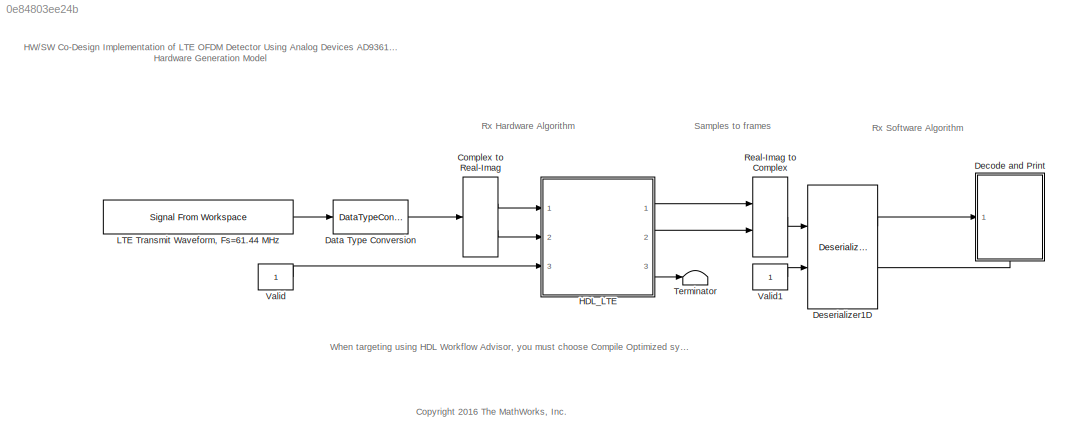
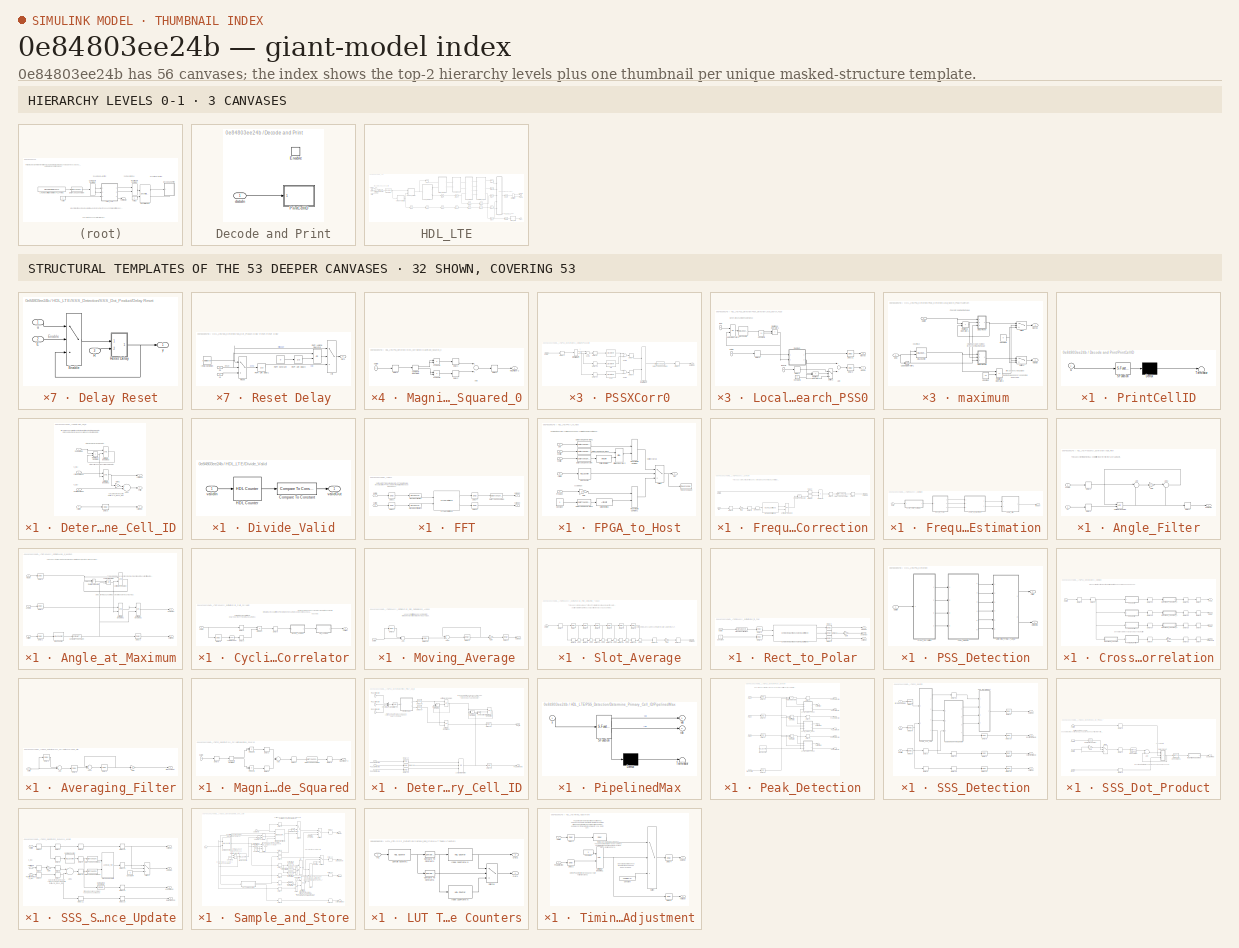
[diagram: thumbnail index - top-2 hierarchy levels (3 canvases) + 32 structural-template representatives of the remaining 53 canvases]
MODEL slx_0e84803ee24b
KIND model
CONFIG AbsTol = auto
CONFIG FixedStep = auto
CONFIG InitFcn = % Load LTE detector initialization parameters\nsimParams = hdlcoder_lteofdm_modDetectref_init;\nsimParams = hdlcoder_lteofdm_modDetecthdl_init(simParams);\n\n% Modify PSS detection threshold gain for modified\n% front-end filter\nsimParams.thresholdGain = 16;\n\n% Load LTE TX waveforms\nload('zynqRadioLTETransmitData');\n
CONFIG MaxStep = auto
CONFIG MinStep = auto
CONFIG RelTol = 1e-3
CONFIG SampleTimeConstraint = Unconstrained
CONFIG Solver = FixedStepDiscrete
CONFIG SolverMode = SingleTasking
CONFIG SolverName = FixedStepDiscrete
CONFIG StartTime = 0.0
CONFIG StopTime = stoptime
BLOCK [ComplexToRealImag] Complex to Real-Imag
  Ports = [1, 2]
BLOCK [DataTypeConversion] Data Type Conversion
  OutDataTypeStr = fixdt(1,16,14)
  RndMeth = Floor
  SaturateOnIntegerOverflow = off
BLOCK [SubSystem] Decode and Print
  Ports = [1, 0, 1]
  RequestExecContextInheritance = off
  Variant = off
BLOCK [EnablePort] Decode and Print/Enable
  Ports = []
BLOCK [SubSystem] Decode and Print/PrintCellID
  ErrorFcn = Stateflow.Translate.translate
  PermitHierarchicalResolution = ExplicitOnly
  Ports = [1]
  RequestExecContextInheritance = off
  SFBlockType = MATLAB Function
  TreatAsAtomicUnit = on
  Variant = off
BLOCK [Demux] Decode and Print/PrintCellID/ Demux 
  Outputs = 1
  Ports = [1, 1]
BLOCK [S-Function] Decode and Print/PrintCellID/ SFunction 
  EnableBusSupport = on
  FunctionName = sf_sfun
  PortCounts = [1 1]
  Ports = [1, 1]
  SFunctionDeploymentMode = off
  Tag = Stateflow S-Function zynqRadioHWSWLTEDetectorAD9361AD9364SL 2
BLOCK [Terminator] Decode and Print/PrintCellID/ Terminator 
BLOCK [Inport] Decode and Print/PrintCellID/u
  IconDisplay = Port number
BLOCK [Inport] Decode and Print/dataIn
  IconDisplay = Port number
BLOCK [Reference] Deserializer1D  REF=hdlsllib/HDL Operations/Deserializer1D
  Ports = [2, 2]
  SourceBlock = hdlsllib/HDL Operations/Deserializer1D
  SourceType = Deserializer1D
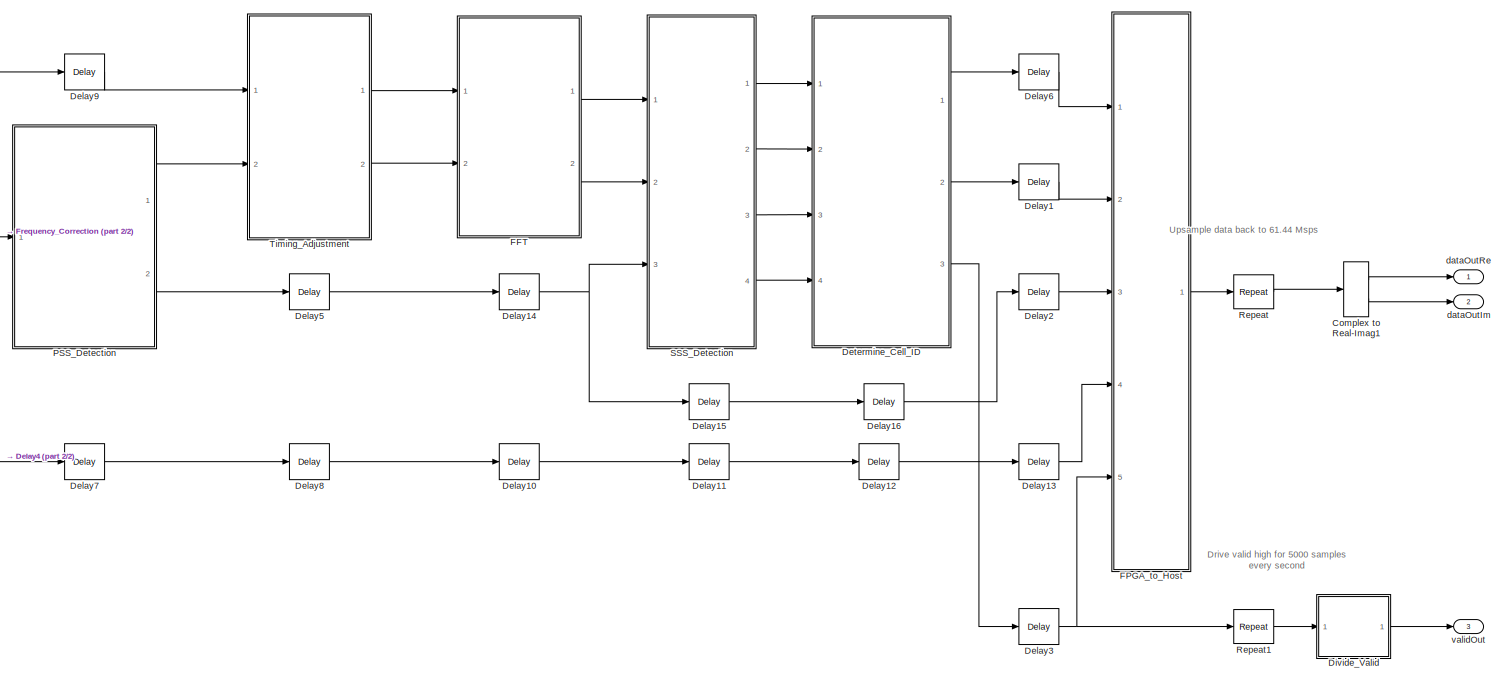
[diagram: HDL_LTE - part 1/2, right side, full height]
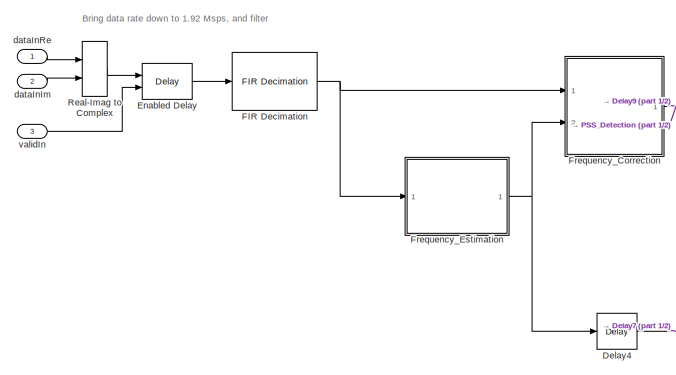
[diagram: HDL_LTE - part 2/2, middle left region]
BLOCK [SubSystem] HDL_LTE
  Ports = [3, 3]
  RequestExecContextInheritance = off
  TreatAsAtomicUnit = on
  Variant = off
BLOCK [ComplexToRealImag] HDL_LTE/Complex to Real-Imag1
  Ports = [1, 2]
BLOCK [Delay] HDL_LTE/Delay1
  DelayLength = 1
  InitialCondition = 0
  InputPortMap = u0
  Ports = [1, 1]
  UseCircularBuffer = on
  UserDataPersistent = on
BLOCK [Delay] HDL_LTE/Delay10
  InitialCondition = 0
  InputPortMap = u0
  Ports = [1, 1]
  UseCircularBuffer = on
  UserDataPersistent = on
BLOCK [Delay] HDL_LTE/Delay11
  DelayLength = 11
  InitialCondition = 0
  InputPortMap = u0
  Ports = [1, 1]
  UseCircularBuffer = on
  UserDataPersistent = on
BLOCK [Delay] HDL_LTE/Delay12
  DelayLength = 1
  InitialCondition = 0
  InputPortMap = u0
  Ports = [1, 1]
  UseCircularBuffer = on
  UserDataPersistent = on
BLOCK [Delay] HDL_LTE/Delay13
  DelayLength = 1
  InitialCondition = 0
  InputPortMap = u0
  Ports = [1, 1]
  UseCircularBuffer = on
  UserDataPersistent = on
BLOCK [Delay] HDL_LTE/Delay14
  InitialCondition = 0
  InputPortMap = u0
  Ports = [1, 1]
  UseCircularBuffer = on
  UserDataPersistent = on
BLOCK [Delay] HDL_LTE/Delay15
  DelayLength = 11
  InitialCondition = 0
  InputPortMap = u0
  Ports = [1, 1]
  UseCircularBuffer = on
  UserDataPersistent = on
BLOCK [Delay] HDL_LTE/Delay16
  DelayLength = 1
  InitialCondition = 0
  InputPortMap = u0
  Ports = [1, 1]
  UseCircularBuffer = on
  UserDataPersistent = on
BLOCK [Delay] HDL_LTE/Delay2
  DelayLength = 1
  InitialCondition = 0
  InputPortMap = u0
  Ports = [1, 1]
  UseCircularBuffer = on
  UserDataPersistent = on
BLOCK [Delay] HDL_LTE/Delay3
  DelayLength = 1
  InitialCondition = 0
  InputPortMap = u0
  Ports = [1, 1]
  UseCircularBuffer = on
  UserDataPersistent = on
BLOCK [Delay] HDL_LTE/Delay4
  DelayLength = 6
  InitialCondition = 0
  InputPortMap = u0
  Ports = [1, 1]
  UseCircularBuffer = on
  UserDataPersistent = on
BLOCK [Delay] HDL_LTE/Delay5
  DelayLength = 1
  InitialCondition = 0
  InputPortMap = u0
  Ports = [1, 1]
  UseCircularBuffer = on
  UserDataPersistent = on
BLOCK [Delay] HDL_LTE/Delay6
  DelayLength = 1
  InitialCondition = 0
  InputPortMap = u0
  Ports = [1, 1]
  UseCircularBuffer = on
  UserDataPersistent = on
BLOCK [Delay] HDL_LTE/Delay7
  DelayLength = 30
  InitialCondition = 0
  InputPortMap = u0
  InputProcessing = Columns as channels (frame based)
  Ports = [1, 1]
  UserDataPersistent = on
BLOCK [Delay] HDL_LTE/Delay8
  DelayLength = 1
  InitialCondition = 0
  InputPortMap = u0
  Ports = [1, 1]
  UseCircularBuffer = on
  UserDataPersistent = on
BLOCK [Delay] HDL_LTE/Delay9
  DelayLength = 30
  InitialCondition = 0
  InputPortMap = u0
  InputProcessing = Columns as channels (frame based)
  Ports = [1, 1]
  UserDataPersistent = on
BLOCK [SubSystem] HDL_LTE/Determine_Cell_ID
  Ports = [4, 3]
  RequestExecContextInheritance = off
  Variant = off
BLOCK [Sum] HDL_LTE/Determine_Cell_ID/Add2
  AccumDataTypeStr = Inherit: Same as first input
  InputSameDT = off
  Ports = [2, 1]
  SaturateOnIntegerOverflow = off
BLOCK [Delay] HDL_LTE/Determine_Cell_ID/Delay3
  DelayLength = 1
  InitialCondition = 0
  InputPortMap = u0
  Ports = [1, 1]
  UseCircularBuffer = on
  UserDataPersistent = on
BLOCK [Gain] HDL_LTE/Determine_Cell_ID/Gain1
  Gain = 3
  OutDataTypeStr = fixdt(0,9,0)
  ParamDataTypeStr = Inherit: Inherit via internal rule
  SaturateOnIntegerOverflow = off
BLOCK [RelationalOperator] HDL_LTE/Determine_Cell_ID/Relational Operator4
  InputSameDT = off
  Operator = >
  OutDataTypeStr = boolean
  Ports = [2, 1]
BLOCK [Inport] HDL_LTE/Determine_Cell_ID/SSSDotProd
  IconDisplay = Port number
BLOCK [Reference] HDL_LTE/Determine_Cell_ID/Unit Delay Enabled1  REF=simulink/Additional Math
& Discrete/Additional
Discrete/Unit Delay
Enabled
  Ports = [2, 1]
  SourceBlock = simulink/Additional Math\n& Discrete/Additional\nDiscrete/Unit Delay\nEnabled
  SourceType = Unit Delay Enabled
BLOCK [Reference] HDL_LTE/Determine_Cell_ID/Unit Delay Enabled3  REF=simulink/Additional Math
& Discrete/Additional
Discrete/Unit Delay
Enabled
  Ports = [2, 1]
  SourceBlock = simulink/Additional Math\n& Discrete/Additional\nDiscrete/Unit Delay\nEnabled
  SourceType = Unit Delay Enabled
BLOCK [Outport] HDL_LTE/Determine_Cell_ID/cellGroup
  IconDisplay = Port number
BLOCK [Outport] HDL_LTE/Determine_Cell_ID/cellID
  IconDisplay = Port number
  Port = 2
BLOCK [Inport] HDL_LTE/Determine_Cell_ID/currentCellGroup
  IconDisplay = Port number
  Port = 2
BLOCK [Inport] HDL_LTE/Determine_Cell_ID/positionInGroup
  IconDisplay = Port number
  Port = 3
BLOCK [Inport] HDL_LTE/Determine_Cell_ID/validIn
  IconDisplay = Port number
  Port = 4
BLOCK [Outport] HDL_LTE/Determine_Cell_ID/validOut
  IconDisplay = Port number
  Port = 3
BLOCK [SubSystem] HDL_LTE/Divide_Valid
  Ports = [1, 1]
  RequestExecContextInheritance = off
  Variant = off
BLOCK [Reference] HDL_LTE/Divide_Valid/Compare To Constant  REF=simulink/Logic and Bit
Operations/Compare
To Constant
  Ports = [1, 1]
  SourceBlock = simulink/Logic and Bit\nOperations/Compare\nTo Constant
  SourceType = Compare To Constant
BLOCK [Reference] HDL_LTE/Divide_Valid/HDL Counter  REF=hdlsllib/HDL Operations/HDL Counter
  Ports = [1, 1]
  SourceBlock = hdlsllib/HDL Operations/HDL Counter
  SourceType = HDL Counter
BLOCK [Inport] HDL_LTE/Divide_Valid/validIn
  IconDisplay = Port number
BLOCK [Outport] HDL_LTE/Divide_Valid/validOut
  IconDisplay = Port number
BLOCK [Delay] HDL_LTE/Enabled Delay
  DelayLength = 1
  InputPortMap = u0,e6
  Ports = [2, 1]
  ShowEnablePort = on
BLOCK [SubSystem] HDL_LTE/FFT
  Ports = [2, 2]
  RequestExecContextInheritance = off
  Variant = off
BLOCK [DataTypeConversion] HDL_LTE/FFT/Data Type Conversion
  OutDataTypeStr = fixdt(1,18,10)
  RndMeth = Round
  SaturateOnIntegerOverflow = off
BLOCK [Delay] HDL_LTE/FFT/Delay1
  DelayLength = 1
  InitialCondition = 0
  InputPortMap = u0
  InputProcessing = Columns as channels (frame based)
  Ports = [1, 1]
  UserDataPersistent = on
BLOCK [Delay] HDL_LTE/FFT/Delay2
  DelayLength = 1
  InitialCondition = 0
  InputPortMap = u0
  InputProcessing = Columns as channels (frame based)
  Ports = [1, 1]
  UserDataPersistent = on
BLOCK [Delay] HDL_LTE/FFT/Delay4
  DelayLength = 1
  InitialCondition = 0
  InputPortMap = u0
  InputProcessing = Columns as channels (frame based)
  Ports = [1, 1]
  UserDataPersistent = on
BLOCK [Delay] HDL_LTE/FFT/Delay5
  DelayLength = 1
  InitialCondition = 0
  InputPortMap = u0
  InputProcessing = Columns as channels (frame based)
  Ports = [1, 1]
  UserDataPersistent = on
BLOCK [Reference] HDL_LTE/FFT/FFT HDL Optimized  REF=dspxfrm3/FFT
HDL Optimized
  Ports = [2, 2]
  SourceBlock = dspxfrm3/FFT\nHDL Optimized
  SourceType = FFT HDL Optimized
BLOCK [SignalSpecification] HDL_LTE/FFT/Signal Specification
  Dimensions = 1
BLOCK [SignalSpecification] HDL_LTE/FFT/Signal Specification1
  Dimensions = 1
BLOCK [Inport] HDL_LTE/FFT/dataIn
  IconDisplay = Port number
BLOCK [Outport] HDL_LTE/FFT/dataOut
  IconDisplay = Port number
BLOCK [Inport] HDL_LTE/FFT/validIn
  IconDisplay = Port number
  Port = 2
BLOCK [Outport] HDL_LTE/FFT/validOut
  IconDisplay = Port number
  Port = 2
BLOCK [Reference] HDL_LTE/FIR Decimation  REF=dspmlti4/FIR
Decimation
  Ports = [1, 1]
  SourceBlock = dspmlti4/FIR\nDecimation
  SourceType = FIR Decimation
  UserDataPersistent = on
BLOCK [SubSystem] HDL_LTE/FPGA_to_Host
  Ports = [5, 1]
  RequestExecContextInheritance = off
  Variant = off
BLOCK [Reference] HDL_LTE/FPGA_to_Host/Bitwise Operator2  REF=simulink/Logic and Bit
Operations/Bitwise
Operator
  Ports = [2, 1]
  SourceBlock = simulink/Logic and Bit\nOperations/Bitwise\nOperator
  SourceType = Bitwise Operator
BLOCK [Inport] HDL_LTE/FPGA_to_Host/Cell
  IconDisplay = Port number
  Port = 2
BLOCK [Constant] HDL_LTE/FPGA_to_Host/Constant
  OutDataTypeStr = boolean
  SampleTime = -1
  VectorParams1D = off
BLOCK [DataTypeConversion] HDL_LTE/FPGA_to_Host/Data Type Conversion
  OutDataTypeStr = int16
  RndMeth = Floor
  SaturateOnIntegerOverflow = off
BLOCK [DataTypeConversion] HDL_LTE/FPGA_to_Host/Data Type Conversion1
  OutDataTypeStr = int16
  RndMeth = Floor
  SaturateOnIntegerOverflow = off
BLOCK [DataTypeConversion] HDL_LTE/FPGA_to_Host/Data Type Conversion2
  OutDataTypeStr = int16
  RndMeth = Floor
  SaturateOnIntegerOverflow = off
BLOCK [DataTypeConversion] HDL_LTE/FPGA_to_Host/Data Type Conversion4
  OutDataTypeStr = int16
  RndMeth = Floor
  SaturateOnIntegerOverflow = off
BLOCK [Inport] HDL_LTE/FPGA_to_Host/FreqEst
  IconDisplay = Port number
  Port = 4
BLOCK [Gain] HDL_LTE/FPGA_to_Host/Gain
  Gain = 2^9
  OutDataTypeStr = int16
  ParamDataTypeStr = Inherit: Inherit via internal rule
  SaturateOnIntegerOverflow = off
BLOCK [Reference] HDL_LTE/FPGA_to_Host/HDL Counter  REF=hdlsllib/HDL Operations/HDL Counter
  Ports = [1, 1]
  SourceBlock = hdlsllib/HDL Operations/HDL Counter
  SourceType = HDL Counter
BLOCK [Outport] HDL_LTE/FPGA_to_Host/Out
  IconDisplay = Port number
BLOCK [RealImagToComplex] HDL_LTE/FPGA_to_Host/Real-Imag to Complex
  Ports = [2, 1]
BLOCK [RealImagToComplex] HDL_LTE/FPGA_to_Host/Real-Imag to Complex1
  Ports = [2, 1]
BLOCK [ArithShift] HDL_LTE/FPGA_to_Host/Shift Arithmetic1
  BitShiftDirection = Left
  BitShiftNumber = 2
  InputPortMap = u0
  Ports = [1, 1]
BLOCK [ArithShift] HDL_LTE/FPGA_to_Host/Shift Arithmetic2
  BitShiftDirection = Left
  BitShiftNumber = 15
  InputPortMap = u0
  Ports = [1, 1]
BLOCK [Switch] HDL_LTE/FPGA_to_Host/Switch
  Criteria = u2 > Threshold
  InputSameDT = off
  SaturateOnIntegerOverflow = off
BLOCK [ToWorkspace] HDL_LTE/FPGA_to_Host/To Workspace
  MaxDataPoints = inf
  Ports = [1]
  SampleTime = -1
  Save2DSignal = 2-D array (concatenate along first dimension)
  VariableName = muxOut
BLOCK [Inport] HDL_LTE/FPGA_to_Host/pCellID
  IconDisplay = Port number
  Port = 3
BLOCK [Inport] HDL_LTE/FPGA_to_Host/sCellID
  IconDisplay = Port number
BLOCK [Inport] HDL_LTE/FPGA_to_Host/validIn
  IconDisplay = Port number
  Port = 5
BLOCK [SubSystem] HDL_LTE/Frequency_Correction
  Ports = [2, 1]
  RequestExecContextInheritance = off
  Variant = off
BLOCK [DataTypeConversion] HDL_LTE/Frequency_Correction/Data Type Conversion
  OutDataTypeStr = fixdt(1,16,15)
  RndMeth = Nearest
  SaturateOnIntegerOverflow = off
BLOCK [Delay] HDL_LTE/Frequency_Correction/Delay1
  DelayLength = 1
  InitialCondition = 0
  InputPortMap = u0
  Ports = [1, 1]
  UseCircularBuffer = on
  UserDataPersistent = on
BLOCK [Delay] HDL_LTE/Frequency_Correction/Delay2
  DelayLength = 1
  InitialCondition = 0
  InputPortMap = u0
  Ports = [1, 1]
  UseCircularBuffer = on
  UserDataPersistent = on
BLOCK [Delay] HDL_LTE/Frequency_Correction/Delay3
  DelayLength = 1
  InitialCondition = 0
  InputPortMap = u0
  Ports = [1, 1]
  UseCircularBuffer = on
  UserDataPersistent = on
BLOCK [Delay] HDL_LTE/Frequency_Correction/Delay4
  DelayLength = 1
  InitialCondition = 0
  InputPortMap = u0
  Ports = [1, 1]
  UseCircularBuffer = on
  UserDataPersistent = on
BLOCK [Delay] HDL_LTE/Frequency_Correction/Delay5
  DelayLength = 1
  InitialCondition = 0
  InputPortMap = u0
  Ports = [1, 1]
  UseCircularBuffer = on
  UserDataPersistent = on
BLOCK [Delay] HDL_LTE/Frequency_Correction/Delay6
  DelayLength = 1
  InitialCondition = 0
  InputPortMap = u0
  Ports = [1, 1]
  UseCircularBuffer = on
  UserDataPersistent = on
BLOCK [Gain] HDL_LTE/Frequency_Correction/Gain
  Gain = 2^9
  OutDataTypeStr = int16
  ParamDataTypeStr = Inherit: Inherit via internal rule
  SaturateOnIntegerOverflow = off
BLOCK [Reference] HDL_LTE/Frequency_Correction/NCO HDL Optimized  REF=dspsigops/NCO
HDL Optimized
  Ports = [1, 2]
  SourceBlock = dspsigops/NCO\nHDL Optimized
  SourceType = NCO HDL Optimized
BLOCK [Product] HDL_LTE/Frequency_Correction/Product1
  InputSameDT = off
  OutDataTypeStr = Inherit: Inherit via internal rule
  Ports = [2, 1]
  RndMeth = Floor
  SaturateOnIntegerOverflow = off
BLOCK [SignalSpecification] HDL_LTE/Frequency_Correction/Signal Spec
  Dimensions = 1
BLOCK [Reference] HDL_LTE/Frequency_Correction/Unit Delay Enabled  REF=simulink/Additional Math
& Discrete/Additional
Discrete/Unit Delay
Enabled
  Ports = [2, 1]
  SourceBlock = simulink/Additional Math\n& Discrete/Additional\nDiscrete/Unit Delay\nEnabled
  SourceType = Unit Delay Enabled
BLOCK [Math] HDL_LTE/Frequency_Correction/complexConjugate
  Operator = conj
  Ports = [1, 1]
BLOCK [Inport] HDL_LTE/Frequency_Correction/dataIn
  IconDisplay = Port number
BLOCK [Outport] HDL_LTE/Frequency_Correction/dataOut
  IconDisplay = Port number
BLOCK [Inport] HDL_LTE/Frequency_Correction/freq
  IconDisplay = Port number
  Port = 2
BLOCK [SubSystem] HDL_LTE/Frequency_Estimation
  Ports = [1, 1]
  RequestExecContextInheritance = off
  Variant = off
BLOCK [SubSystem] HDL_LTE/Frequency_Estimation/Angle_Filter
  Ports = [2, 1]
  RequestExecContextInheritance = off
  Variant = off
BLOCK [Sum] HDL_LTE/Frequency_Estimation/Angle_Filter/Add
  AccumDataTypeStr = Inherit: Same as first input
  IconShape = round
  InputSameDT = off
  Inputs = |-+
  OutDataTypeStr = Inherit: Inherit via internal rule
  Ports = [2, 1]
  SaturateOnIntegerOverflow = off
BLOCK [Sum] HDL_LTE/Frequency_Estimation/Angle_Filter/Add1
  AccumDataTypeStr = Inherit: Same as first input
  IconShape = round
  InputSameDT = off
  Inputs = |-+
  OutDataTypeStr = Inherit: Inherit via internal rule
  Ports = [2, 1]
  SaturateOnIntegerOverflow = off
BLOCK [Delay] HDL_LTE/Frequency_Estimation/Angle_Filter/Delay1
  DelayLength = 1
  InitialCondition = 0
  InputPortMap = u0
  Ports = [1, 1]
  UseCircularBuffer = on
  UserDataPersistent = on
BLOCK [Delay] HDL_LTE/Frequency_Estimation/Angle_Filter/Delay2
  DelayLength = 1
  InitialCondition = 0
  InputPortMap = u0
  Ports = [1, 1]
  UseCircularBuffer = on
  UserDataPersistent = on
BLOCK [Delay] HDL_LTE/Frequency_Estimation/Angle_Filter/Delay3
  DelayLength = 1
  InitialCondition = 0
  InputPortMap = u0
  Ports = [1, 1]
  UseCircularBuffer = on
  UserDataPersistent = on
BLOCK [Gain] HDL_LTE/Frequency_Estimation/Angle_Filter/Gain
  Gain = 2^-2
  ParamDataTypeStr = Inherit: Inherit via internal rule
  SaturateOnIntegerOverflow = off
BLOCK [Reference] HDL_LTE/Frequency_Estimation/Angle_Filter/Unit Delay Enabled  REF=simulink/Additional Math
& Discrete/Additional
Discrete/Unit Delay
Enabled
  Ports = [2, 1]
  SourceBlock = simulink/Additional Math\n& Discrete/Additional\nDiscrete/Unit Delay\nEnabled
  SourceType = Unit Delay Enabled
BLOCK [Inport] HDL_LTE/Frequency_Estimation/Angle_Filter/angleIn
  IconDisplay = Port number
BLOCK [Outport] HDL_LTE/Frequency_Estimation/Angle_Filter/angleOut
  IconDisplay = Port number
BLOCK [Inport] HDL_LTE/Frequency_Estimation/Angle_Filter/en
  IconDisplay = Port number
  Port = 2
BLOCK [SubSystem] HDL_LTE/Frequency_Estimation/Angle_at_Maximum
  Ports = [3, 2]
  RequestExecContextInheritance = off
  Variant = off
BLOCK [Reference] HDL_LTE/Frequency_Estimation/Angle_at_Maximum/Compare To Constant  REF=simulink/Logic and Bit
Operations/Compare
To Constant
  Ports = [1, 1]
  SourceBlock = simulink/Logic and Bit\nOperations/Compare\nTo Constant
  SourceType = Compare To Constant
BLOCK [Delay] HDL_LTE/Frequency_Estimation/Angle_at_Maximum/Delay1
  DelayLength = 1
  InitialCondition = 0
  InputPortMap = u0
  Ports = [1, 1]
  UseCircularBuffer = on
  UserDataPersistent = on
BLOCK [Delay] HDL_LTE/Frequency_Estimation/Angle_at_Maximum/Delay2
  DelayLength = 1
  InitialCondition = 0
  InputPortMap = u0
  Ports = [1, 1]
  UseCircularBuffer = on
  UserDataPersistent = on
BLOCK [Delay] HDL_LTE/Frequency_Estimation/Angle_at_Maximum/Delay3
  DelayLength = 1
  InitialCondition = 0
  InputPortMap = u0
  Ports = [1, 1]
  UseCircularBuffer = on
  UserDataPersistent = on
BLOCK [Delay] HDL_LTE/Frequency_Estimation/Angle_at_Maximum/Delay5
  DelayLength = 1
  InitialCondition = 0
  InputPortMap = u0
  Ports = [1, 1]
  UseCircularBuffer = on
  UserDataPersistent = on
BLOCK [Reference] HDL_LTE/Frequency_Estimation/Angle_at_Maximum/HDL Counter  REF=hdlsllib/HDL Operations/HDL Counter
  Ports = [1, 1]
  SourceBlock = hdlsllib/HDL Operations/HDL Counter
  SourceType = HDL Counter
BLOCK [Logic] HDL_LTE/Frequency_Estimation/Angle_at_Maximum/Logical Operator
  AllPortsSameDT = off
  IconShape = distinctive
  Operator = OR
  OutDataTypeStr = boolean
  Ports = [2, 1]
BLOCK [RelationalOperator] HDL_LTE/Frequency_Estimation/Angle_at_Maximum/Relational Operator
  InputSameDT = off
  Operator = >
  OutDataTypeStr = boolean
  Ports = [2, 1]
BLOCK [Reference] HDL_LTE/Frequency_Estimation/Angle_at_Maximum/Unit Delay Enabled  REF=simulink/Additional Math
& Discrete/Additional
Discrete/Unit Delay
Enabled
  Ports = [2, 1]
  SourceBlock = simulink/Additional Math\n& Discrete/Additional\nDiscrete/Unit Delay\nEnabled
  SourceType = Unit Delay Enabled
BLOCK [Reference] HDL_LTE/Frequency_Estimation/Angle_at_Maximum/Unit Delay Enabled1  REF=simulink/Additional Math
& Discrete/Additional
Discrete/Unit Delay
Enabled
  Ports = [2, 1]
  SourceBlock = simulink/Additional Math\n& Discrete/Additional\nDiscrete/Unit Delay\nEnabled
  SourceType = Unit Delay Enabled
BLOCK [Reference] HDL_LTE/Frequency_Estimation/Angle_at_Maximum/Unit Delay Enabled2  REF=simulink/Additional Math
& Discrete/Additional
Discrete/Unit Delay
Enabled
  Ports = [2, 1]
  SourceBlock = simulink/Additional Math\n& Discrete/Additional\nDiscrete/Unit Delay\nEnabled
  SourceType = Unit Delay Enabled
BLOCK [Inport] HDL_LTE/Frequency_Estimation/Angle_at_Maximum/angleIn
  IconDisplay = Port number
  Port = 2
BLOCK [Outport] HDL_LTE/Frequency_Estimation/Angle_at_Maximum/angleOut
  IconDisplay = Port number
BLOCK [Inport] HDL_LTE/Frequency_Estimation/Angle_at_Maximum/magIn
  IconDisplay = Port number
BLOCK [Inport] HDL_LTE/Frequency_Estimation/Angle_at_Maximum/validIn
  IconDisplay = Port number
  Port = 3
BLOCK [Outport] HDL_LTE/Frequency_Estimation/Angle_at_Maximum/validOut
  IconDisplay = Port number
  Port = 2
BLOCK [SubSystem] HDL_LTE/Frequency_Estimation/Cyclic_Prefix_Correlator
  Ports = [1, 1]
  RequestExecContextInheritance = off
  Variant = off
BLOCK [Delay] HDL_LTE/Frequency_Estimation/Cyclic_Prefix_Correlator/Delay1
  DelayLength = 1
  InitialCondition = 0
  InputPortMap = u0
  Ports = [1, 1]
  UseCircularBuffer = on
  UserDataPersistent = on
BLOCK [Delay] HDL_LTE/Frequency_Estimation/Cyclic_Prefix_Correlator/Delay2
  DelayLength = 128
  InitialCondition = 0
  InputPortMap = u0
  Ports = [1, 1]
BLOCK [Delay] HDL_LTE/Frequency_Estimation/Cyclic_Prefix_Correlator/Delay3
  DelayLength = 1
  InitialCondition = 0
  InputPortMap = u0
  Ports = [1, 1]
  UseCircularBuffer = on
  UserDataPersistent = on
BLOCK [Delay] HDL_LTE/Frequency_Estimation/Cyclic_Prefix_Correlator/Delay5
  DelayLength = 1
  InitialCondition = 0
  InputPortMap = u0
  Ports = [1, 1]
  UseCircularBuffer = on
  UserDataPersistent = on
BLOCK [SubSystem] HDL_LTE/Frequency_Estimation/Cyclic_Prefix_Correlator/Moving_Average
  Ports = [1, 1]
  RequestExecContextInheritance = off
  Variant = off
BLOCK [Sum] HDL_LTE/Frequency_Estimation/Cyclic_Prefix_Correlator/Moving_Average/Add
  AccumDataTypeStr = fixdt(1,27,23)
  InputSameDT = off
  Inputs = -+
  OutDataTypeStr = Inherit: Inherit via internal rule
  Ports = [2, 1]
  SaturateOnIntegerOverflow = off
BLOCK [Sum] HDL_LTE/Frequency_Estimation/Cyclic_Prefix_Correlator/Moving_Average/Add1
  AccumDataTypeStr = fixdt(1,27,23)
  InputSameDT = off
  OutDataTypeStr = Inherit: Inherit via internal rule
  Ports = [2, 1]
  SaturateOnIntegerOverflow = off
BLOCK [Delay] HDL_LTE/Frequency_Estimation/Cyclic_Prefix_Correlator/Moving_Average/Delay1
  DelayLength = 8
  InitialCondition = 0
  InputPortMap = u0
  Ports = [1, 1]
  UserDataPersistent = on
BLOCK [Delay] HDL_LTE/Frequency_Estimation/Cyclic_Prefix_Correlator/Moving_Average/Delay10
  DelayLength = 1
  InitialCondition = 0
  InputPortMap = u0
  Ports = [1, 1]
  UseCircularBuffer = on
  UserDataPersistent = on
BLOCK [Delay] HDL_LTE/Frequency_Estimation/Cyclic_Prefix_Correlator/Moving_Average/Delay2
  DelayLength = 1
  InitialCondition = 0
  InputPortMap = u0
  Ports = [1, 1]
  UseCircularBuffer = on
  UserDataPersistent = on
BLOCK [Delay] HDL_LTE/Frequency_Estimation/Cyclic_Prefix_Correlator/Moving_Average/Delay3
  DelayLength = 1
  InitialCondition = 0
  InputPortMap = u0
  Ports = [1, 1]
  UseCircularBuffer = on
  UserDataPersistent = on
BLOCK [Gain] HDL_LTE/Frequency_Estimation/Cyclic_Prefix_Correlator/Moving_Average/Gain
  Gain = 1/8
  OutDataTypeStr = fixdt(1,24,23)
  ParamDataTypeStr = Inherit: Inherit via internal rule
  SaturateOnIntegerOverflow = off
BLOCK [Inport] HDL_LTE/Frequency_Estimation/Cyclic_Prefix_Correlator/Moving_Average/dataIn
  IconDisplay = Port number
BLOCK [Outport] HDL_LTE/Frequency_Estimation/Cyclic_Prefix_Correlator/Moving_Average/dataOut
  IconDisplay = Port number
BLOCK [Product] HDL_LTE/Frequency_Estimation/Cyclic_Prefix_Correlator/Product
  InputSameDT = off
  OutDataTypeStr = fixdt(1,24,23)
  Ports = [2, 1]
  RndMeth = Round
  SaturateOnIntegerOverflow = off
BLOCK [SubSystem] HDL_LTE/Frequency_Estimation/Cyclic_Prefix_Correlator/Slot_Average
  Ports = [1, 1]
  RequestExecContextInheritance = off
  Variant = off
BLOCK [Sum] HDL_LTE/Frequency_Estimation/Cyclic_Prefix_Correlator/Slot_Average/Add1
  AccumDataTypeStr = fixdt(1,28,23)
  IconShape = round
  InputSameDT = off
  Inputs = ++|
  OutDataTypeStr = Inherit: Inherit via internal rule
  Ports = [2, 1]
  SaturateOnIntegerOverflow = off
BLOCK [Sum] HDL_LTE/Frequency_Estimation/Cyclic_Prefix_Correlator/Slot_Average/Add2
  AccumDataTypeStr = fixdt(1,29,23)
  IconShape = round
  InputSameDT = off
  Inputs = ++|
  OutDataTypeStr = Inherit: Inherit via internal rule
  Ports = [2, 1]
  SaturateOnIntegerOverflow = off
BLOCK [Sum] HDL_LTE/Frequency_Estimation/Cyclic_Prefix_Correlator/Slot_Average/Add3
  AccumDataTypeStr = Inherit: Same as first input
  IconShape = round
  InputSameDT = off
  Inputs = ++|
  OutDataTypeStr = fixdt(1,29,23)
  Ports = [2, 1]
  SaturateOnIntegerOverflow = off
BLOCK [Sum] HDL_LTE/Frequency_Estimation/Cyclic_Prefix_Correlator/Slot_Average/Add4
  AccumDataTypeStr = fixdt(1,29,23)
  IconShape = round
  InputSameDT = off
  Inputs = ++|
  OutDataTypeStr = Inherit: Inherit via internal rule
  Ports = [2, 1]
  SaturateOnIntegerOverflow = off
BLOCK [Sum] HDL_LTE/Frequency_Estimation/Cyclic_Prefix_Correlator/Slot_Average/Add5
  AccumDataTypeStr = fixdt(1,30,23)
  IconShape = round
  InputSameDT = off
  Inputs = ++|
  OutDataTypeStr = Inherit: Inherit via internal rule
  Ports = [2, 1]
  SaturateOnIntegerOverflow = off
BLOCK [Sum] HDL_LTE/Frequency_Estimation/Cyclic_Prefix_Correlator/Slot_Average/Add6
  AccumDataTypeStr = fixdt(1,30,23)
  IconShape = round
  InputSameDT = off
  Inputs = ++|
  OutDataTypeStr = Inherit: Inherit via internal rule
  Ports = [2, 1]
  SaturateOnIntegerOverflow = off
BLOCK [Delay] HDL_LTE/Frequency_Estimation/Cyclic_Prefix_Correlator/Slot_Average/Delay
  DelayLength = 138
  InitialCondition = 0
  InputPortMap = u0
  Ports = [1, 1]
BLOCK [Delay] HDL_LTE/Frequency_Estimation/Cyclic_Prefix_Correlator/Slot_Average/Delay1
  DelayLength = 138
  InitialCondition = 0
  InputPortMap = u0
  Ports = [1, 1]
BLOCK [Delay] HDL_LTE/Frequency_Estimation/Cyclic_Prefix_Correlator/Slot_Average/Delay10
  DelayLength = 1
  InitialCondition = 0
  InputPortMap = u0
  Ports = [1, 1]
  UseCircularBuffer = on
  UserDataPersistent = on
BLOCK [Delay] HDL_LTE/Frequency_Estimation/Cyclic_Prefix_Correlator/Slot_Average/Delay11
  DelayLength = 1
  InitialCondition = 0
  InputPortMap = u0
  Ports = [1, 1]
  UseCircularBuffer = on
  UserDataPersistent = on
BLOCK [Delay] HDL_LTE/Frequency_Estimation/Cyclic_Prefix_Correlator/Slot_Average/Delay12
  DelayLength = 1
  InitialCondition = 0
  InputPortMap = u0
  Ports = [1, 1]
  UseCircularBuffer = on
  UserDataPersistent = on
BLOCK [Delay] HDL_LTE/Frequency_Estimation/Cyclic_Prefix_Correlator/Slot_Average/Delay14
  DelayLength = 1
  InitialCondition = 0
  InputPortMap = u0
  Ports = [1, 1]
  UseCircularBuffer = on
  UserDataPersistent = on
BLOCK [Delay] HDL_LTE/Frequency_Estimation/Cyclic_Prefix_Correlator/Slot_Average/Delay15
  DelayLength = 1
  InitialCondition = 0
  InputPortMap = u0
  Ports = [1, 1]
  UseCircularBuffer = on
  UserDataPersistent = on
BLOCK [Delay] HDL_LTE/Frequency_Estimation/Cyclic_Prefix_Correlator/Slot_Average/Delay16
  DelayLength = 1
  InitialCondition = 0
  InputPortMap = u0
  Ports = [1, 1]
  UseCircularBuffer = on
  UserDataPersistent = on
BLOCK [Delay] HDL_LTE/Frequency_Estimation/Cyclic_Prefix_Correlator/Slot_Average/Delay2
  DelayLength = 138
  InitialCondition = 0
  InputPortMap = u0
  Ports = [1, 1]
BLOCK [Delay] HDL_LTE/Frequency_Estimation/Cyclic_Prefix_Correlator/Slot_Average/Delay3
  DelayLength = 138
  InitialCondition = 0
  InputPortMap = u0
  Ports = [1, 1]
BLOCK [Delay] HDL_LTE/Frequency_Estimation/Cyclic_Prefix_Correlator/Slot_Average/Delay4
  DelayLength = 138
  InitialCondition = 0
  InputPortMap = u0
  Ports = [1, 1]
BLOCK [Delay] HDL_LTE/Frequency_Estimation/Cyclic_Prefix_Correlator/Slot_Average/Delay5
  DelayLength = 138
  InitialCondition = 0
  InputPortMap = u0
  Ports = [1, 1]
BLOCK [Delay] HDL_LTE/Frequency_Estimation/Cyclic_Prefix_Correlator/Slot_Average/Delay7
  DelayLength = 1
  InitialCondition = 0
  InputPortMap = u0
  Ports = [1, 1]
  UseCircularBuffer = on
  UserDataPersistent = on
BLOCK [Delay] HDL_LTE/Frequency_Estimation/Cyclic_Prefix_Correlator/Slot_Average/Delay8
  DelayLength = 1
  InitialCondition = 0
  InputPortMap = u0
  Ports = [1, 1]
  UseCircularBuffer = on
  UserDataPersistent = on
BLOCK [Delay] HDL_LTE/Frequency_Estimation/Cyclic_Prefix_Correlator/Slot_Average/Delay9
  DelayLength = 1
  InitialCondition = 0
  InputPortMap = u0
  Ports = [1, 1]
  UseCircularBuffer = on
  UserDataPersistent = on
BLOCK [Gain] HDL_LTE/Frequency_Estimation/Cyclic_Prefix_Correlator/Slot_Average/Gain
  Gain = 1/8
  OutDataTypeStr = fixdt(1,24,23)
  ParamDataTypeStr = Inherit: Inherit via internal rule
  SaturateOnIntegerOverflow = off
BLOCK [Inport] HDL_LTE/Frequency_Estimation/Cyclic_Prefix_Correlator/Slot_Average/dataIn
  IconDisplay = Port number
BLOCK [Outport] HDL_LTE/Frequency_Estimation/Cyclic_Prefix_Correlator/Slot_Average/dataOut
  IconDisplay = Port number
BLOCK [Math] HDL_LTE/Frequency_Estimation/Cyclic_Prefix_Correlator/complexConj
  Operator = conj
  Ports = [1, 1]
BLOCK [Outport] HDL_LTE/Frequency_Estimation/Cyclic_Prefix_Correlator/corrOut
  IconDisplay = Port number
BLOCK [Inport] HDL_LTE/Frequency_Estimation/Cyclic_Prefix_Correlator/dataIn
  IconDisplay = Port number
BLOCK [SubSystem] HDL_LTE/Frequency_Estimation/Rect_to_Polar
  Ports = [1, 3]
  RequestExecContextInheritance = off
  Variant = off
BLOCK [Reference] HDL_LTE/Frequency_Estimation/Rect_to_Polar/Complex to Magnitude-Angle HDL Optimized  REF=dspmathops/Complex to Magnitude-Angle
HDL Optimized
  Ports = [2, 3]
  SourceBlock = dspmathops/Complex to Magnitude-Angle\nHDL Optimized
  SourceType = Complex to Magnitude-Angle HDL Optimized
BLOCK [Constant] HDL_LTE/Frequency_Estimation/Rect_to_Polar/Constant
  OutDataTypeStr = boolean
  SampleTime = simParams.TsRx
BLOCK [Delay] HDL_LTE/Frequency_Estimation/Rect_to_Polar/Delay1
  InitialCondition = 0
  InputPortMap = u0
  Ports = [1, 1]
  UseCircularBuffer = on
  UserDataPersistent = on
BLOCK [Delay] HDL_LTE/Frequency_Estimation/Rect_to_Polar/Delay2
  DelayLength = 1
  InitialCondition = 0
  InputPortMap = u0
  Ports = [1, 1]
  UseCircularBuffer = on
  UserDataPersistent = on
BLOCK [Delay] HDL_LTE/Frequency_Estimation/Rect_to_Polar/Delay3
  DelayLength = 1
  InitialCondition = 0
  InputPortMap = u0
  Ports = [1, 1]
  UseCircularBuffer = on
  UserDataPersistent = on
BLOCK [Delay] HDL_LTE/Frequency_Estimation/Rect_to_Polar/Delay4
  DelayLength = 1
  InitialCondition = 0
  InputPortMap = u0
  Ports = [1, 1]
  UseCircularBuffer = on
  UserDataPersistent = on
BLOCK [Delay] HDL_LTE/Frequency_Estimation/Rect_to_Polar/Delay5
  InitialCondition = 0
  InputPortMap = u0
  Ports = [1, 1]
  UseCircularBuffer = on
  UserDataPersistent = on
BLOCK [Gain] HDL_LTE/Frequency_Estimation/Rect_to_Polar/Gain
  Gain = 0.5
  OutDataTypeStr = fixdt(1,27,27)
  ParamDataTypeStr = Inherit: Inherit via internal rule
  SaturateOnIntegerOverflow = off
BLOCK [SignalSpecification] HDL_LTE/Frequency_Estimation/Rect_to_Polar/Signal Specification1
  Dimensions = 1
BLOCK [Outport] HDL_LTE/Frequency_Estimation/Rect_to_Polar/angleOut
  IconDisplay = Port number
  Port = 2
BLOCK [Inport] HDL_LTE/Frequency_Estimation/Rect_to_Polar/dataIn
  IconDisplay = Port number
BLOCK [Outport] HDL_LTE/Frequency_Estimation/Rect_to_Polar/magOut
  IconDisplay = Port number
BLOCK [Outport] HDL_LTE/Frequency_Estimation/Rect_to_Polar/validOut
  IconDisplay = Port number
  Port = 3
BLOCK [Inport] HDL_LTE/Frequency_Estimation/data
  IconDisplay = Port number
BLOCK [Outport] HDL_LTE/Frequency_Estimation/freqEst
  IconDisplay = Port number
BLOCK [SubSystem] HDL_LTE/PSS_Detection
  Ports = [1, 2]
  RequestExecContextInheritance = off
  Variant = off
BLOCK [Outport] HDL_LTE/PSS_Detection/CellID
  IconDisplay = Port number
  Port = 2
BLOCK [SubSystem] HDL_LTE/PSS_Detection/Cross_Correlation
  Ports = [1, 4]
  RequestExecContextInheritance = off
  Variant = off
BLOCK [SubSystem] HDL_LTE/PSS_Detection/Cross_Correlation/Averaging_Filter
  Ports = [1, 1]
  RequestExecContextInheritance = off
  Variant = off
BLOCK [Sum] HDL_LTE/PSS_Detection/Cross_Correlation/Averaging_Filter/Add
  AccumDataTypeStr = fixdt(1,32,23)
  InputSameDT = off
  Inputs = -+
  OutDataTypeStr = Inherit: Same as accumulator
  Ports = [2, 1]
  SaturateOnIntegerOverflow = off
BLOCK [Sum] HDL_LTE/PSS_Detection/Cross_Correlation/Averaging_Filter/Add1
  AccumDataTypeStr = fixdt(1,32,23)
  InputSameDT = off
  OutDataTypeStr = Inherit: Same as accumulator
  Ports = [2, 1]
  SaturateOnIntegerOverflow = off
BLOCK [Delay] HDL_LTE/PSS_Detection/Cross_Correlation/Averaging_Filter/Delay1
  DelayLength = 128
  InitialCondition = 0
  InputPortMap = u0
  Ports = [1, 1]
  UserDataPersistent = on
BLOCK [Delay] HDL_LTE/PSS_Detection/Cross_Correlation/Averaging_Filter/Delay2
  DelayLength = 1
  InitialCondition = 0
  InputPortMap = u0
  Ports = [1, 1]
  UseCircularBuffer = on
  UserDataPersistent = on
BLOCK [Delay] HDL_LTE/PSS_Detection/Cross_Correlation/Averaging_Filter/Delay3
  DelayLength = 1
  InitialCondition = 0
  InputPortMap = u0
  Ports = [1, 1]
  UseCircularBuffer = on
  UserDataPersistent = on
BLOCK [Gain] HDL_LTE/PSS_Detection/Cross_Correlation/Averaging_Filter/Gain
  Gain = 2^-7
  OutDataTypeStr = fixdt(1,25,23)
  ParamDataTypeStr = Inherit: Inherit via internal rule
  SaturateOnIntegerOverflow = off
BLOCK [Inport] HDL_LTE/PSS_Detection/Cross_Correlation/Averaging_Filter/datIn
  IconDisplay = Port number
BLOCK [Outport] HDL_LTE/PSS_Detection/Cross_Correlation/Averaging_Filter/thresholdOut
  IconDisplay = Port number
BLOCK [Delay] HDL_LTE/PSS_Detection/Cross_Correlation/Delay1
  DelayLength = 1
  InitialCondition = 0
  InputPortMap = u0
  Ports = [1, 1]
BLOCK [Delay] HDL_LTE/PSS_Detection/Cross_Correlation/Delay10
  DelayLength = 1
  InitialCondition = 0
  InputPortMap = u0
  Ports = [1, 1]
BLOCK [Delay] HDL_LTE/PSS_Detection/Cross_Correlation/Delay11
  DelayLength = 1
  InitialCondition = 0
  InputPortMap = u0
  Ports = [1, 1]
BLOCK [Delay] HDL_LTE/PSS_Detection/Cross_Correlation/Delay12
  DelayLength = 1
  InitialCondition = 0
  InputPortMap = u0
  Ports = [1, 1]
BLOCK [Delay] HDL_LTE/PSS_Detection/Cross_Correlation/Delay13
  DelayLength = 1
  InitialCondition = 0
  InputPortMap = u0
  Ports = [1, 1]
BLOCK [Delay] HDL_LTE/PSS_Detection/Cross_Correlation/Delay14
  DelayLength = 1
  InitialCondition = 0
  InputPortMap = u0
  Ports = [1, 1]
BLOCK [Delay] HDL_LTE/PSS_Detection/Cross_Correlation/Delay15
  DelayLength = 1
  InitialCondition = 0
  InputPortMap = u0
  Ports = [1, 1]
BLOCK [Delay] HDL_LTE/PSS_Detection/Cross_Correlation/Delay16
  DelayLength = 1
  InitialCondition = 0
  InputPortMap = u0
  Ports = [1, 1]
BLOCK [Delay] HDL_LTE/PSS_Detection/Cross_Correlation/Delay3
  DelayLength = 1
  InitialCondition = 0
  InputPortMap = u0
  Ports = [1, 1]
BLOCK [Delay] HDL_LTE/PSS_Detection/Cross_Correlation/Delay4
  DelayLength = 1
  InitialCondition = 0
  InputPortMap = u0
  Ports = [1, 1]
BLOCK [Delay] HDL_LTE/PSS_Detection/Cross_Correlation/Delay5
  DelayLength = 1
  InitialCondition = 0
  InputPortMap = u0
  Ports = [1, 1]
BLOCK [Delay] HDL_LTE/PSS_Detection/Cross_Correlation/Delay6
  DelayLength = 1
  InitialCondition = 0
  InputPortMap = u0
  Ports = [1, 1]
BLOCK [Delay] HDL_LTE/PSS_Detection/Cross_Correlation/Delay7
  DelayLength = 1
  InitialCondition = 0
  InputPortMap = u0
  Ports = [1, 1]
BLOCK [Delay] HDL_LTE/PSS_Detection/Cross_Correlation/Delay8
  DelayLength = 1
  InitialCondition = 0
  InputPortMap = u0
  Ports = [1, 1]
BLOCK [Gain] HDL_LTE/PSS_Detection/Cross_Correlation/Gain 3
  Gain = simParams.thresholdGain
  OutDataTypeStr = fixdt(1,32,20)
  ParamDataTypeStr = Inherit: Inherit via internal rule
  SaturateOnIntegerOverflow = off
BLOCK [SubSystem] HDL_LTE/PSS_Detection/Cross_Correlation/Magnitude_Squared
  Ports = [1, 1]
  RequestExecContextInheritance = off
  Variant = off
BLOCK [Sum] HDL_LTE/PSS_Detection/Cross_Correlation/Magnitude_Squared/Add
  AccumDataTypeStr = Inherit: Same as first input
  InputSameDT = off
  OutDataTypeStr = Inherit: Same as accumulator
  Ports = [2, 1]
  SaturateOnIntegerOverflow = off
BLOCK [ComplexToRealImag] HDL_LTE/PSS_Detection/Cross_Correlation/Magnitude_Squared/Complex to Real-Imag
  Ports = [1, 2]
BLOCK [DataTypeConversion] HDL_LTE/PSS_Detection/Cross_Correlation/Magnitude_Squared/Data Type Conversion
  OutDataTypeStr = fixdt(1,25,23)
  RndMeth = Round
  SaturateOnIntegerOverflow = off
BLOCK [Delay] HDL_LTE/PSS_Detection/Cross_Correlation/Magnitude_Squared/Delay1
  InitialCondition = 0
  InputPortMap = u0
  Ports = [1, 1]
BLOCK [Delay] HDL_LTE/PSS_Detection/Cross_Correlation/Magnitude_Squared/Delay2
  InitialCondition = 0
  InputPortMap = u0
  Ports = [1, 1]
BLOCK [Delay] HDL_LTE/PSS_Detection/Cross_Correlation/Magnitude_Squared/Delay3
  DelayLength = 1
  InitialCondition = 0
  InputPortMap = u0
  Ports = [1, 1]
BLOCK [Delay] HDL_LTE/PSS_Detection/Cross_Correlation/Magnitude_Squared/Delay4
  DelayLength = 1
  InitialCondition = 0
  InputPortMap = u0
  Ports = [1, 1]
BLOCK [Delay] HDL_LTE/PSS_Detection/Cross_Correlation/Magnitude_Squared/Delay5
  DelayLength = 1
  InitialCondition = 0
  InputPortMap = u0
  Ports = [1, 1]
BLOCK [Outport] HDL_LTE/PSS_Detection/Cross_Correlation/Magnitude_Squared/Magnitude^2
  IconDisplay = Port number
BLOCK [Product] HDL_LTE/PSS_Detection/Cross_Correlation/Magnitude_Squared/Product1
  InputSameDT = off
  OutDataTypeStr = Inherit: Inherit via internal rule
  Ports = [2, 1]
  RndMeth = Floor
  SaturateOnIntegerOverflow = off
BLOCK [Product] HDL_LTE/PSS_Detection/Cross_Correlation/Magnitude_Squared/Product4
  InputSameDT = off
  OutDataTypeStr = Inherit: Inherit via internal rule
  Ports = [2, 1]
  RndMeth = Floor
  SaturateOnIntegerOverflow = off
BLOCK [Inport] HDL_LTE/PSS_Detection/Cross_Correlation/Magnitude_Squared/dataIn
  IconDisplay = Port number
BLOCK [SubSystem] HDL_LTE/PSS_Detection/Cross_Correlation/Magnitude_Squared_0
  Ports = [1, 1]
  RequestExecContextInheritance = off
  Variant = off
BLOCK [Sum] HDL_LTE/PSS_Detection/Cross_Correlation/Magnitude_Squared_0/Add
  AccumDataTypeStr = Inherit: Same as first input
  InputSameDT = off
  OutDataTypeStr = Inherit: Same as accumulator
  Ports = [2, 1]
  SaturateOnIntegerOverflow = off
BLOCK [ComplexToRealImag] HDL_LTE/PSS_Detection/Cross_Correlation/Magnitude_Squared_0/Complex to Real-Imag
  Ports = [1, 2]
BLOCK [Delay] HDL_LTE/PSS_Detection/Cross_Correlation/Magnitude_Squared_0/Delay1
  InitialCondition = 0
  InputPortMap = u0
  Ports = [1, 1]
BLOCK [Delay] HDL_LTE/PSS_Detection/Cross_Correlation/Magnitude_Squared_0/Delay2
  InitialCondition = 0
  InputPortMap = u0
  Ports = [1, 1]
BLOCK [Delay] HDL_LTE/PSS_Detection/Cross_Correlation/Magnitude_Squared_0/Delay3
  DelayLength = 1
  InitialCondition = 0
  InputPortMap = u0
  Ports = [1, 1]
BLOCK [Delay] HDL_LTE/PSS_Detection/Cross_Correlation/Magnitude_Squared_0/Delay4
  InitialCondition = 0
  InputPortMap = u0
  Ports = [1, 1]
BLOCK [Outport] HDL_LTE/PSS_Detection/Cross_Correlation/Magnitude_Squared_0/Magnitude^2
  IconDisplay = Port number
BLOCK [Product] HDL_LTE/PSS_Detection/Cross_Correlation/Magnitude_Squared_0/Product4
  InputSameDT = off
  OutDataTypeStr = Inherit: Inherit via internal rule
  Ports = [2, 1]
  RndMeth = Floor
  SaturateOnIntegerOverflow = off
BLOCK [Product] HDL_LTE/PSS_Detection/Cross_Correlation/Magnitude_Squared_0/Product5
  InputSameDT = off
  OutDataTypeStr = Inherit: Inherit via internal rule
  Ports = [2, 1]
  RndMeth = Floor
  SaturateOnIntegerOverflow = off
BLOCK [Inport] HDL_LTE/PSS_Detection/Cross_Correlation/Magnitude_Squared_0/dataIn
  IconDisplay = Port number
BLOCK [SubSystem] HDL_LTE/PSS_Detection/Cross_Correlation/Magnitude_Squared_1
  Ports = [1, 1]
  RequestExecContextInheritance = off
  Variant = off
BLOCK [Sum] HDL_LTE/PSS_Detection/Cross_Correlation/Magnitude_Squared_1/Add
  AccumDataTypeStr = Inherit: Same as first input
  InputSameDT = off
  OutDataTypeStr = Inherit: Same as accumulator
  Ports = [2, 1]
  SaturateOnIntegerOverflow = off
BLOCK [ComplexToRealImag] HDL_LTE/PSS_Detection/Cross_Correlation/Magnitude_Squared_1/Complex to Real-Imag
  Ports = [1, 2]
BLOCK [Delay] HDL_LTE/PSS_Detection/Cross_Correlation/Magnitude_Squared_1/Delay1
  InitialCondition = 0
  InputPortMap = u0
  Ports = [1, 1]
BLOCK [Delay] HDL_LTE/PSS_Detection/Cross_Correlation/Magnitude_Squared_1/Delay2
  InitialCondition = 0
  InputPortMap = u0
  Ports = [1, 1]
BLOCK [Delay] HDL_LTE/PSS_Detection/Cross_Correlation/Magnitude_Squared_1/Delay3
  DelayLength = 1
  InitialCondition = 0
  InputPortMap = u0
  Ports = [1, 1]
BLOCK [Delay] HDL_LTE/PSS_Detection/Cross_Correlation/Magnitude_Squared_1/Delay4
  InitialCondition = 0
  InputPortMap = u0
  Ports = [1, 1]
BLOCK [Outport] HDL_LTE/PSS_Detection/Cross_Correlation/Magnitude_Squared_1/Magnitude^2
  IconDisplay = Port number
BLOCK [Product] HDL_LTE/PSS_Detection/Cross_Correlation/Magnitude_Squared_1/Product4
  InputSameDT = off
  OutDataTypeStr = Inherit: Inherit via internal rule
  Ports = [2, 1]
  RndMeth = Floor
  SaturateOnIntegerOverflow = off
BLOCK [Product] HDL_LTE/PSS_Detection/Cross_Correlation/Magnitude_Squared_1/Product5
  InputSameDT = off
  OutDataTypeStr = Inherit: Inherit via internal rule
  Ports = [2, 1]
  RndMeth = Floor
  SaturateOnIntegerOverflow = off
BLOCK [Inport] HDL_LTE/PSS_Detection/Cross_Correlation/Magnitude_Squared_1/dataIn
  IconDisplay = Port number
BLOCK [SubSystem] HDL_LTE/PSS_Detection/Cross_Correlation/Magnitude_Squared_2
  Ports = [1, 1]
  RequestExecContextInheritance = off
  Variant = off
BLOCK [Sum] HDL_LTE/PSS_Detection/Cross_Correlation/Magnitude_Squared_2/Add
  AccumDataTypeStr = Inherit: Same as first input
  InputSameDT = off
  OutDataTypeStr = Inherit: Same as accumulator
  Ports = [2, 1]
  SaturateOnIntegerOverflow = off
BLOCK [ComplexToRealImag] HDL_LTE/PSS_Detection/Cross_Correlation/Magnitude_Squared_2/Complex to Real-Imag
  Ports = [1, 2]
BLOCK [Delay] HDL_LTE/PSS_Detection/Cross_Correlation/Magnitude_Squared_2/Delay1
  InitialCondition = 0
  InputPortMap = u0
  Ports = [1, 1]
BLOCK [Delay] HDL_LTE/PSS_Detection/Cross_Correlation/Magnitude_Squared_2/Delay2
  InitialCondition = 0
  InputPortMap = u0
  Ports = [1, 1]
BLOCK [Delay] HDL_LTE/PSS_Detection/Cross_Correlation/Magnitude_Squared_2/Delay3
  DelayLength = 1
  InitialCondition = 0
  InputPortMap = u0
  Ports = [1, 1]
BLOCK [Delay] HDL_LTE/PSS_Detection/Cross_Correlation/Magnitude_Squared_2/Delay4
  InitialCondition = 0
  InputPortMap = u0
  Ports = [1, 1]
BLOCK [Outport] HDL_LTE/PSS_Detection/Cross_Correlation/Magnitude_Squared_2/Magnitude^2
  IconDisplay = Port number
BLOCK [Product] HDL_LTE/PSS_Detection/Cross_Correlation/Magnitude_Squared_2/Product4
  InputSameDT = off
  OutDataTypeStr = Inherit: Inherit via internal rule
  Ports = [2, 1]
  RndMeth = Floor
  SaturateOnIntegerOverflow = off
BLOCK [Product] HDL_LTE/PSS_Detection/Cross_Correlation/Magnitude_Squared_2/Product5
  InputSameDT = off
  OutDataTypeStr = Inherit: Inherit via internal rule
  Ports = [2, 1]
  RndMeth = Floor
  SaturateOnIntegerOverflow = off
BLOCK [Inport] HDL_LTE/PSS_Detection/Cross_Correlation/Magnitude_Squared_2/dataIn
  IconDisplay = Port number
BLOCK [Outport] HDL_LTE/PSS_Detection/Cross_Correlation/PSS0
  IconDisplay = Port number
BLOCK [Outport] HDL_LTE/PSS_Detection/Cross_Correlation/PSS1
  IconDisplay = Port number
  Port = 2
BLOCK [Outport] HDL_LTE/PSS_Detection/Cross_Correlation/PSS2
  IconDisplay = Port number
  Port = 3
BLOCK [SubSystem] HDL_LTE/PSS_Detection/Cross_Correlation/PSSXCorr0
  Ports = [1, 1]
  RequestExecContextInheritance = off
  Variant = off
BLOCK [DiscreteFir] HDL_LTE/PSS_Detection/Cross_Correlation/PSSXCorr0/C
  CoefDataTypeStr = fixdt(1,18)
  Coefficients = real(simParams.PSS(:,PSSIdx+1)')
  InputPortMap = u0
  OutputPortMap = o0
  Ports = [1, 1]
  TapSumDataTypeStr = Inherit: Inherit via internal rule
BLOCK [DiscreteFir] HDL_LTE/PSS_Detection/Cross_Correlation/PSSXCorr0/C+D
  CoefDataTypeStr = fixdt(1,18)
  Coefficients = real(simParams.PSS(:,PSSIdx+1)') + imag(simParams.PSS(:,PSSIdx+1)')
  InputPortMap = u0
  OutputPortMap = o0
  Ports = [1, 1]
  TapSumDataTypeStr = Inherit: Inherit via internal rule
BLOCK [DiscreteFir] HDL_LTE/PSS_Detection/Cross_Correlation/PSSXCorr0/C-D
  CoefDataTypeStr = fixdt(1,18)
  Coefficients = real(simParams.PSS(:,PSSIdx+1)') - imag(simParams.PSS(:,PSSIdx+1)')
  InputPortMap = u0
  OutputPortMap = o0
  Ports = [1, 1]
  TapSumDataTypeStr = Inherit: Inherit via internal rule
BLOCK [ComplexToRealImag] HDL_LTE/PSS_Detection/Cross_Correlation/PSSXCorr0/Complex to Real-Imag1
  Ports = [1, 2]
BLOCK [DataTypeConversion] HDL_LTE/PSS_Detection/Cross_Correlation/PSSXCorr0/Data Type Conversion
  OutDataTypeStr = fixdt(1,16,10)
  RndMeth = Round
  SaturateOnIntegerOverflow = off
BLOCK [Delay] HDL_LTE/PSS_Detection/Cross_Correlation/PSSXCorr0/Delay1
  DelayLength = 1
  InitialCondition = 0
  InputPortMap = u0
  Ports = [1, 1]
BLOCK [Delay] HDL_LTE/PSS_Detection/Cross_Correlation/PSSXCorr0/Delay10
  DelayLength = 1
  InitialCondition = 0
  InputPortMap = u0
  Ports = [1, 1]
BLOCK [Delay] HDL_LTE/PSS_Detection/Cross_Correlation/PSSXCorr0/Delay14
  DelayLength = 1
  InitialCondition = 0
  InputPortMap = u0
  Ports = [1, 1]
BLOCK [Delay] HDL_LTE/PSS_Detection/Cross_Correlation/PSSXCorr0/Delay2
  DelayLength = 1
  InitialCondition = 0
  InputPortMap = u0
  Ports = [1, 1]
BLOCK [Delay] HDL_LTE/PSS_Detection/Cross_Correlation/PSSXCorr0/Delay3
  DelayLength = 1
  InitialCondition = 0
  InputPortMap = u0
  Ports = [1, 1]
BLOCK [Delay] HDL_LTE/PSS_Detection/Cross_Correlation/PSSXCorr0/Delay4
  DelayLength = 1
  InitialCondition = 0
  InputPortMap = u0
  Ports = [1, 1]
BLOCK [Delay] HDL_LTE/PSS_Detection/Cross_Correlation/PSSXCorr0/Delay5
  DelayLength = 1
  InitialCondition = 0
  InputPortMap = u0
  Ports = [1, 1]
BLOCK [RealImagToComplex] HDL_LTE/PSS_Detection/Cross_Correlation/PSSXCorr0/Real-Imag to Complex1
  Ports = [2, 1]
BLOCK [Sum] HDL_LTE/PSS_Detection/Cross_Correlation/PSSXCorr0/Sum2
  InputSameDT = off
  Inputs = -+
  OutDataTypeStr = Inherit: Inherit via internal rule
  Ports = [2, 1]
  SaturateOnIntegerOverflow = off
BLOCK [Sum] HDL_LTE/PSS_Detection/Cross_Correlation/PSSXCorr0/Sum3
  InputSameDT = off
  Inputs = -+
  OutDataTypeStr = Inherit: Inherit via internal rule
  Ports = [2, 1]
  SaturateOnIntegerOverflow = off
BLOCK [Sum] HDL_LTE/PSS_Detection/Cross_Correlation/PSSXCorr0/Sum4
  InputSameDT = off
  OutDataTypeStr = Inherit: Inherit via internal rule
  Ports = [2, 1]
  SaturateOnIntegerOverflow = off
BLOCK [Inport] HDL_LTE/PSS_Detection/Cross_Correlation/PSSXCorr0/dataIn
  IconDisplay = Port number
BLOCK [Outport] HDL_LTE/PSS_Detection/Cross_Correlation/PSSXCorr0/dataOut
  IconDisplay = Port number
BLOCK [SubSystem] HDL_LTE/PSS_Detection/Cross_Correlation/PSSXCorr1
  Ports = [1, 1]
  RequestExecContextInheritance = off
  Variant = off
BLOCK [DiscreteFir] HDL_LTE/PSS_Detection/Cross_Correlation/PSSXCorr1/C
  CoefDataTypeStr = fixdt(1,18)
  Coefficients = real(simParams.PSS(:,PSSIdx+1)')
  InputPortMap = u0
  OutputPortMap = o0
  Ports = [1, 1]
  TapSumDataTypeStr = Inherit: Inherit via internal rule
BLOCK [DiscreteFir] HDL_LTE/PSS_Detection/Cross_Correlation/PSSXCorr1/C+D
  CoefDataTypeStr = fixdt(1,18)
  Coefficients = real(simParams.PSS(:,PSSIdx+1)') + imag(simParams.PSS(:,PSSIdx+1)')
  InputPortMap = u0
  OutputPortMap = o0
  Ports = [1, 1]
  TapSumDataTypeStr = Inherit: Inherit via internal rule
BLOCK [DiscreteFir] HDL_LTE/PSS_Detection/Cross_Correlation/PSSXCorr1/C-D
  CoefDataTypeStr = fixdt(1,18)
  Coefficients = real(simParams.PSS(:,PSSIdx+1)') - imag(simParams.PSS(:,PSSIdx+1)')
  InputPortMap = u0
  OutputPortMap = o0
  Ports = [1, 1]
  TapSumDataTypeStr = Inherit: Inherit via internal rule
BLOCK [ComplexToRealImag] HDL_LTE/PSS_Detection/Cross_Correlation/PSSXCorr1/Complex to Real-Imag1
  Ports = [1, 2]
BLOCK [DataTypeConversion] HDL_LTE/PSS_Detection/Cross_Correlation/PSSXCorr1/Data Type Conversion
  OutDataTypeStr = fixdt(1,16,10)
  RndMeth = Round
  SaturateOnIntegerOverflow = off
BLOCK [Delay] HDL_LTE/PSS_Detection/Cross_Correlation/PSSXCorr1/Delay1
  DelayLength = 1
  InitialCondition = 0
  InputPortMap = u0
  Ports = [1, 1]
BLOCK [Delay] HDL_LTE/PSS_Detection/Cross_Correlation/PSSXCorr1/Delay10
  DelayLength = 1
  InitialCondition = 0
  InputPortMap = u0
  Ports = [1, 1]
BLOCK [Delay] HDL_LTE/PSS_Detection/Cross_Correlation/PSSXCorr1/Delay14
  DelayLength = 1
  InitialCondition = 0
  InputPortMap = u0
  Ports = [1, 1]
BLOCK [Delay] HDL_LTE/PSS_Detection/Cross_Correlation/PSSXCorr1/Delay2
  DelayLength = 1
  InitialCondition = 0
  InputPortMap = u0
  Ports = [1, 1]
BLOCK [Delay] HDL_LTE/PSS_Detection/Cross_Correlation/PSSXCorr1/Delay3
  DelayLength = 1
  InitialCondition = 0
  InputPortMap = u0
  Ports = [1, 1]
BLOCK [Delay] HDL_LTE/PSS_Detection/Cross_Correlation/PSSXCorr1/Delay4
  DelayLength = 1
  InitialCondition = 0
  InputPortMap = u0
  Ports = [1, 1]
BLOCK [Delay] HDL_LTE/PSS_Detection/Cross_Correlation/PSSXCorr1/Delay5
  DelayLength = 1
  InitialCondition = 0
  InputPortMap = u0
  Ports = [1, 1]
BLOCK [RealImagToComplex] HDL_LTE/PSS_Detection/Cross_Correlation/PSSXCorr1/Real-Imag to Complex1
  Ports = [2, 1]
BLOCK [Sum] HDL_LTE/PSS_Detection/Cross_Correlation/PSSXCorr1/Sum2
  InputSameDT = off
  Inputs = -+
  OutDataTypeStr = Inherit: Inherit via internal rule
  Ports = [2, 1]
  SaturateOnIntegerOverflow = off
BLOCK [Sum] HDL_LTE/PSS_Detection/Cross_Correlation/PSSXCorr1/Sum3
  InputSameDT = off
  Inputs = -+
  OutDataTypeStr = Inherit: Inherit via internal rule
  Ports = [2, 1]
  SaturateOnIntegerOverflow = off
BLOCK [Sum] HDL_LTE/PSS_Detection/Cross_Correlation/PSSXCorr1/Sum4
  InputSameDT = off
  OutDataTypeStr = Inherit: Inherit via internal rule
  Ports = [2, 1]
  SaturateOnIntegerOverflow = off
BLOCK [Inport] HDL_LTE/PSS_Detection/Cross_Correlation/PSSXCorr1/dataIn
  IconDisplay = Port number
BLOCK [Outport] HDL_LTE/PSS_Detection/Cross_Correlation/PSSXCorr1/dataOut
  IconDisplay = Port number
BLOCK [SubSystem] HDL_LTE/PSS_Detection/Cross_Correlation/PSSXCorr2
  Ports = [1, 1]
  RequestExecContextInheritance = off
  Variant = off
BLOCK [DiscreteFir] HDL_LTE/PSS_Detection/Cross_Correlation/PSSXCorr2/C
  CoefDataTypeStr = fixdt(1,18)
  Coefficients = real(simParams.PSS(:,PSSIdx+1)')
  InputPortMap = u0
  OutputPortMap = o0
  Ports = [1, 1]
  TapSumDataTypeStr = Inherit: Inherit via internal rule
BLOCK [DiscreteFir] HDL_LTE/PSS_Detection/Cross_Correlation/PSSXCorr2/C+D
  CoefDataTypeStr = fixdt(1,18)
  Coefficients = real(simParams.PSS(:,PSSIdx+1)') + imag(simParams.PSS(:,PSSIdx+1)')
  InputPortMap = u0
  OutputPortMap = o0
  Ports = [1, 1]
  TapSumDataTypeStr = Inherit: Inherit via internal rule
BLOCK [DiscreteFir] HDL_LTE/PSS_Detection/Cross_Correlation/PSSXCorr2/C-D
  CoefDataTypeStr = fixdt(1,18)
  Coefficients = real(simParams.PSS(:,PSSIdx+1)') - imag(simParams.PSS(:,PSSIdx+1)')
  InputPortMap = u0
  OutputPortMap = o0
  Ports = [1, 1]
  TapSumDataTypeStr = Inherit: Inherit via internal rule
BLOCK [ComplexToRealImag] HDL_LTE/PSS_Detection/Cross_Correlation/PSSXCorr2/Complex to Real-Imag1
  Ports = [1, 2]
BLOCK [DataTypeConversion] HDL_LTE/PSS_Detection/Cross_Correlation/PSSXCorr2/Data Type Conversion
  OutDataTypeStr = fixdt(1,16,10)
  RndMeth = Round
  SaturateOnIntegerOverflow = off
BLOCK [Delay] HDL_LTE/PSS_Detection/Cross_Correlation/PSSXCorr2/Delay1
  DelayLength = 1
  InitialCondition = 0
  InputPortMap = u0
  Ports = [1, 1]
BLOCK [Delay] HDL_LTE/PSS_Detection/Cross_Correlation/PSSXCorr2/Delay10
  DelayLength = 1
  InitialCondition = 0
  InputPortMap = u0
  Ports = [1, 1]
BLOCK [Delay] HDL_LTE/PSS_Detection/Cross_Correlation/PSSXCorr2/Delay14
  DelayLength = 1
  InitialCondition = 0
  InputPortMap = u0
  Ports = [1, 1]
BLOCK [Delay] HDL_LTE/PSS_Detection/Cross_Correlation/PSSXCorr2/Delay2
  DelayLength = 1
  InitialCondition = 0
  InputPortMap = u0
  Ports = [1, 1]
BLOCK [Delay] HDL_LTE/PSS_Detection/Cross_Correlation/PSSXCorr2/Delay3
  DelayLength = 1
  InitialCondition = 0
  InputPortMap = u0
  Ports = [1, 1]
BLOCK [Delay] HDL_LTE/PSS_Detection/Cross_Correlation/PSSXCorr2/Delay4
  DelayLength = 1
  InitialCondition = 0
  InputPortMap = u0
  Ports = [1, 1]
BLOCK [Delay] HDL_LTE/PSS_Detection/Cross_Correlation/PSSXCorr2/Delay5
  DelayLength = 1
  InitialCondition = 0
  InputPortMap = u0
  Ports = [1, 1]
BLOCK [RealImagToComplex] HDL_LTE/PSS_Detection/Cross_Correlation/PSSXCorr2/Real-Imag to Complex1
  Ports = [2, 1]
BLOCK [Sum] HDL_LTE/PSS_Detection/Cross_Correlation/PSSXCorr2/Sum2
  InputSameDT = off
  Inputs = -+
  OutDataTypeStr = Inherit: Inherit via internal rule
  Ports = [2, 1]
  SaturateOnIntegerOverflow = off
BLOCK [Sum] HDL_LTE/PSS_Detection/Cross_Correlation/PSSXCorr2/Sum3
  InputSameDT = off
  Inputs = -+
  OutDataTypeStr = Inherit: Inherit via internal rule
  Ports = [2, 1]
  SaturateOnIntegerOverflow = off
BLOCK [Sum] HDL_LTE/PSS_Detection/Cross_Correlation/PSSXCorr2/Sum4
  InputSameDT = off
  OutDataTypeStr = Inherit: Inherit via internal rule
  Ports = [2, 1]
  SaturateOnIntegerOverflow = off
BLOCK [Inport] HDL_LTE/PSS_Detection/Cross_Correlation/PSSXCorr2/dataIn
  IconDisplay = Port number
BLOCK [Outport] HDL_LTE/PSS_Detection/Cross_Correlation/PSSXCorr2/dataOut
  IconDisplay = Port number
BLOCK [Outport] HDL_LTE/PSS_Detection/Cross_Correlation/Threshold
  IconDisplay = Port number
  Port = 4
BLOCK [Inport] HDL_LTE/PSS_Detection/Cross_Correlation/dataIn
  IconDisplay = Port number
BLOCK [Outport] HDL_LTE/PSS_Detection/Detected
  IconDisplay = Port number
BLOCK [SubSystem] HDL_LTE/PSS_Detection/Determine_Primary_Cell_ID
  Ports = [6, 2]
  RequestExecContextInheritance = off
  Variant = off
BLOCK [Outport] HDL_LTE/PSS_Detection/Determine_Primary_Cell_ID/Cell_ID
  IconDisplay = Port number
BLOCK [Delay] HDL_LTE/PSS_Detection/Determine_Primary_Cell_ID/Delay14
  DelayLength = 3
  InitialCondition = 0
  InputPortMap = u0
  InputProcessing = Columns as channels (frame based)
  Ports = [1, 1]
  UserDataPersistent = on
BLOCK [Delay] HDL_LTE/PSS_Detection/Determine_Primary_Cell_ID/Delay15
  DelayLength = 3
  InitialCondition = 0
  InputPortMap = u0
  InputProcessing = Columns as channels (frame based)
  Ports = [1, 1]
  UserDataPersistent = on
BLOCK [Delay] HDL_LTE/PSS_Detection/Determine_Primary_Cell_ID/Delay16
  DelayLength = 3
  InitialCondition = 0
  InputPortMap = u0
  InputProcessing = Columns as channels (frame based)
  Ports = [1, 1]
  UserDataPersistent = on
BLOCK [Delay] HDL_LTE/PSS_Detection/Determine_Primary_Cell_ID/Delay21
  DelayLength = 1
  InitialCondition = 0
  InputPortMap = u0
  InputProcessing = Columns as channels (frame based)
  Ports = [1, 1]
  UserDataPersistent = on
BLOCK [Delay] HDL_LTE/PSS_Detection/Determine_Primary_Cell_ID/Delay23
  DelayLength = 1
  InitialCondition = 0
  InputPortMap = u0
  InputProcessing = Columns as channels (frame based)
  Ports = [1, 1]
  UserDataPersistent = on
BLOCK [Delay] HDL_LTE/PSS_Detection/Determine_Primary_Cell_ID/Delay24
  DelayLength = 1
  InitialCondition = 0
  InputPortMap = u0
  InputProcessing = Columns as channels (frame based)
  Ports = [1, 1]
  UserDataPersistent = on
BLOCK [Delay] HDL_LTE/PSS_Detection/Determine_Primary_Cell_ID/Delay26
  DelayLength = 1
  InitialCondition = 0
  InputPortMap = u0
  InputProcessing = Columns as channels (frame based)
  Ports = [1, 1]
  UserDataPersistent = on
BLOCK [Delay] HDL_LTE/PSS_Detection/Determine_Primary_Cell_ID/Delay27
  DelayLength = 1
  InitialCondition = 0
  InputPortMap = u0
  InputProcessing = Columns as channels (frame based)
  Ports = [1, 1]
  UserDataPersistent = on
BLOCK [Logic] HDL_LTE/PSS_Detection/Determine_Primary_Cell_ID/Logical Operator
  AllPortsSameDT = off
  IconShape = distinctive
  Inputs = 3
  Operator = OR
  OutDataTypeStr = boolean
  Ports = [3, 1]
BLOCK [Logic] HDL_LTE/PSS_Detection/Determine_Primary_Cell_ID/Logical Operator1
  AllPortsSameDT = off
  IconShape = distinctive
  OutDataTypeStr = boolean
  Ports = [2, 1]
BLOCK [Inport] HDL_LTE/PSS_Detection/Determine_Primary_Cell_ID/PSS0Detected
  IconDisplay = Port number
BLOCK [Inport] HDL_LTE/PSS_Detection/Determine_Primary_Cell_ID/PSS0Strength
  IconDisplay = Port number
  Port = 2
BLOCK [Inport] HDL_LTE/PSS_Detection/Determine_Primary_Cell_ID/PSS1Detected
  IconDisplay = Port number
  Port = 3
BLOCK [Inport] HDL_LTE/PSS_Detection/Determine_Primary_Cell_ID/PSS1Strength
  IconDisplay = Port number
  Port = 4
BLOCK [Inport] HDL_LTE/PSS_Detection/Determine_Primary_Cell_ID/PSS2Detected
  IconDisplay = Port number
  Port = 5
BLOCK [Inport] HDL_LTE/PSS_Detection/Determine_Primary_Cell_ID/PSS2Strength
  IconDisplay = Port number
  Port = 6
BLOCK [Outport] HDL_LTE/PSS_Detection/Determine_Primary_Cell_ID/PSSDetected
  IconDisplay = Port number
  Port = 2
BLOCK [SubSystem] HDL_LTE/PSS_Detection/Determine_Primary_Cell_ID/PipelinedMax
  ErrorFcn = Stateflow.Translate.translate
  PermitHierarchicalResolution = ExplicitOnly
  Ports = [1, 2]
  RequestExecContextInheritance = off
  SFBlockType = MATLAB Function
  TreatAsAtomicUnit = on
  Variant = off
BLOCK [Demux] HDL_LTE/PSS_Detection/Determine_Primary_Cell_ID/PipelinedMax/ Demux 
  Outputs = 1
  Ports = [1, 1]
BLOCK [S-Function] HDL_LTE/PSS_Detection/Determine_Primary_Cell_ID/PipelinedMax/ SFunction 
  EnableBusSupport = on
  FunctionName = sf_sfun
  PortCounts = [1 3]
  Ports = [1, 3]
  SFunctionDeploymentMode = off
  Tag = Stateflow S-Function zynqRadioHWSWLTEDetectorAD9361AD9364SL 1
BLOCK [Terminator] HDL_LTE/PSS_Detection/Determine_Primary_Cell_ID/PipelinedMax/ Terminator 
BLOCK [Outport] HDL_LTE/PSS_Detection/Determine_Primary_Cell_ID/PipelinedMax/idx
  IconDisplay = Port number
  Port = 2
BLOCK [Outport] HDL_LTE/PSS_Detection/Determine_Primary_Cell_ID/PipelinedMax/val
  IconDisplay = Port number
BLOCK [Inport] HDL_LTE/PSS_Detection/Determine_Primary_Cell_ID/PipelinedMax/x
  IconDisplay = Port number
BLOCK [RelationalOperator] HDL_LTE/PSS_Detection/Determine_Primary_Cell_ID/Relational Operator1
  InputSameDT = off
  Operator = >
  OutDataTypeStr = boolean
  Ports = [2, 1]
BLOCK [RelationalOperator] HDL_LTE/PSS_Detection/Determine_Primary_Cell_ID/Relational Operator4
  InputSameDT = off
  Operator = >
  OutDataTypeStr = boolean
  Ports = [2, 1]
BLOCK [Reference] HDL_LTE/PSS_Detection/Determine_Primary_Cell_ID/Unit Delay Enabled  REF=simulink/Additional Math
& Discrete/Additional
Discrete/Unit Delay
Enabled
  Ports = [2, 1]
  SourceBlock = simulink/Additional Math\n& Discrete/Additional\nDiscrete/Unit Delay\nEnabled
  SourceType = Unit Delay Enabled
BLOCK [Reference] HDL_LTE/PSS_Detection/Determine_Primary_Cell_ID/Unit Delay Enabled1  REF=simulink/Additional Math
& Discrete/Additional
Discrete/Unit Delay
Enabled
  Ports = [2, 1]
  SourceBlock = simulink/Additional Math\n& Discrete/Additional\nDiscrete/Unit Delay\nEnabled
  SourceType = Unit Delay Enabled
BLOCK [Reference] HDL_LTE/PSS_Detection/Determine_Primary_Cell_ID/Unit Delay Enabled3  REF=simulink/Additional Math
& Discrete/Additional
Discrete/Unit Delay
Enabled
  Ports = [2, 1]
  SourceBlock = simulink/Additional Math\n& Discrete/Additional\nDiscrete/Unit Delay\nEnabled
  SourceType = Unit Delay Enabled
BLOCK [Concatenate] HDL_LTE/PSS_Detection/Determine_Primary_Cell_ID/Vector Concatenate
  ConcatenateDimension = 2
  Mode = Multidimensional array
  NumInputs = 3
  Ports = [3, 1]
BLOCK [SubSystem] HDL_LTE/PSS_Detection/Peak_Detection
  Ports = [4, 6]
  RequestExecContextInheritance = off
  Variant = off
BLOCK [Delay] HDL_LTE/PSS_Detection/Peak_Detection/Delay1
  DelayLength = 11
  InitialCondition = 0
  InputPortMap = u0
  Ports = [1, 1]
BLOCK [Delay] HDL_LTE/PSS_Detection/Peak_Detection/Delay10
  DelayLength = 1
  InitialCondition = 0
  InputPortMap = u0
  Ports = [1, 1]
  UseCircularBuffer = on
  UserDataPersistent = on
BLOCK [Delay] HDL_LTE/PSS_Detection/Peak_Detection/Delay11
  DelayLength = 1
  InitialCondition = 0
  InputPortMap = u0
  Ports = [1, 1]
  UseCircularBuffer = on
  UserDataPersistent = on
BLOCK [Delay] HDL_LTE/PSS_Detection/Peak_Detection/Delay12
  DelayLength = 1
  InitialCondition = 0
  InputPortMap = u0
  Ports = [1, 1]
  UseCircularBuffer = on
  UserDataPersistent = on
BLOCK [Delay] HDL_LTE/PSS_Detection/Peak_Detection/Delay2
  DelayLength = 11
  InitialCondition = 0
  InputPortMap = u0
  Ports = [1, 1]
BLOCK [Delay] HDL_LTE/PSS_Detection/Peak_Detection/Delay3
  DelayLength = 11
  InitialCondition = 0
  InputPortMap = u0
  Ports = [1, 1]
BLOCK [Delay] HDL_LTE/PSS_Detection/Peak_Detection/Delay9
  DelayLength = 1
  InitialCondition = 0
  InputPortMap = u0
  Ports = [1, 1]
  UseCircularBuffer = on
  UserDataPersistent = on
BLOCK [Reference] HDL_LTE/PSS_Detection/Peak_Detection/HDL Counter  REF=hdlsllib/HDL Operations/HDL Counter
  Ports = [0, 1]
  SourceBlock = hdlsllib/HDL Operations/HDL Counter
  SourceType = HDL Counter
BLOCK [SubSystem] HDL_LTE/PSS_Detection/Peak_Detection/Local_Search_PSS0
  Ports = [3, 2]
  RequestExecContextInheritance = off
  Variant = off
BLOCK [Sum] HDL_LTE/PSS_Detection/Peak_Detection/Local_Search_PSS0/Add
  AccumDataTypeStr = fixdt(0,15,0)
  InputSameDT = off
  OutDataTypeStr = Inherit: Inherit via internal rule
  Ports = [2, 1]
  SaturateOnIntegerOverflow = off
BLOCK [Constant] HDL_LTE/PSS_Detection/Peak_Detection/Local_Search_PSS0/Constant1
  OutDataTypeStr = fixdt(0,22,20)
  SampleTime = simParams.TsRx
  Value = 0
  VectorParams1D = off
BLOCK [Constant] HDL_LTE/PSS_Detection/Peak_Detection/Local_Search_PSS0/Constant2
  OutDataTypeStr = fixdt(0,4,0)
  SampleTime = simParams.TsRx
  Value = 11
  VectorParams1D = off
BLOCK [Delay] HDL_LTE/PSS_Detection/Peak_Detection/Local_Search_PSS0/Delay1
  DelayLength = 11
  InitialCondition = 0
  InputPortMap = u0
  Ports = [1, 1]
BLOCK [Delay] HDL_LTE/PSS_Detection/Peak_Detection/Local_Search_PSS0/Delay2
  DelayLength = 1
  InitialCondition = 0
  InputPortMap = u0
  Ports = [1, 1]
BLOCK [Delay] HDL_LTE/PSS_Detection/Peak_Detection/Local_Search_PSS0/Delay21
  DelayLength = 1
  InitialCondition = 0
  InputPortMap = u0
  InputProcessing = Columns as channels (frame based)
  Ports = [1, 1]
  UserDataPersistent = on
BLOCK [Delay] HDL_LTE/PSS_Detection/Peak_Detection/Local_Search_PSS0/Delay3
  DelayLength = 1
  InitialCondition = 0
  InputPortMap = u0
  InputProcessing = Columns as channels (frame based)
  Ports = [1, 1]
  UserDataPersistent = on
BLOCK [Inport] HDL_LTE/PSS_Detection/Peak_Detection/Local_Search_PSS0/Enb
  IconDisplay = Port number
BLOCK [Reference] HDL_LTE/PSS_Detection/Peak_Detection/Local_Search_PSS0/HDL Counter  REF=hdlsllib/HDL Operations/HDL Counter
  Ports = [1, 1]
  SourceBlock = hdlsllib/HDL Operations/HDL Counter
  SourceType = HDL Counter
BLOCK [Logic] HDL_LTE/PSS_Detection/Peak_Detection/Local_Search_PSS0/Logical Operator2
  AllPortsSameDT = off
  Operator = OR
  OutDataTypeStr = boolean
  Ports = [2, 1]
BLOCK [Outport] HDL_LTE/PSS_Detection/Peak_Detection/Local_Search_PSS0/MaxIdx
  IconDisplay = Port number
BLOCK [Outport] HDL_LTE/PSS_Detection/Peak_Detection/Local_Search_PSS0/MaxVal
  IconDisplay = Port number
  Port = 2
BLOCK [RelationalOperator] HDL_LTE/PSS_Detection/Peak_Detection/Local_Search_PSS0/Relational Operator1
  InputSameDT = off
  Operator = <
  OutDataTypeStr = boolean
  Ports = [2, 1]
BLOCK [RelationalOperator] HDL_LTE/PSS_Detection/Peak_Detection/Local_Search_PSS0/Relational Operator2
  InputSameDT = off
  Operator = >
  OutDataTypeStr = boolean
  Ports = [2, 1]
BLOCK [Switch] HDL_LTE/PSS_Detection/Peak_Detection/Local_Search_PSS0/Switch1
  Criteria = u2 ~= 0
  InputSameDT = off
  SaturateOnIntegerOverflow = off
  Threshold = 384
BLOCK [Inport] HDL_LTE/PSS_Detection/Peak_Detection/Local_Search_PSS0/dataIn
  IconDisplay = Port number
  Port = 2
BLOCK [Inport] HDL_LTE/PSS_Detection/Peak_Detection/Local_Search_PSS0/indexIn
  IconDisplay = Port number
  Port = 3
BLOCK [SubSystem] HDL_LTE/PSS_Detection/Peak_Detection/Local_Search_PSS0/maximum
  Ports = [2, 2]
  RequestExecContextInheritance = off
  Variant = off
BLOCK [Constant] HDL_LTE/PSS_Detection/Peak_Detection/Local_Search_PSS0/maximum/Constant
  OutDataTypeStr = fixdt(0,4,0)
  SampleTime = simParams.TsRx
  Value = 10
  VectorParams1D = off
BLOCK [Constant] HDL_LTE/PSS_Detection/Peak_Detection/Local_Search_PSS0/maximum/Constant1
  OutDataTypeStr = fixdt(0,22,20)
  SampleTime = simParams.TsRx
  Value = 0
  VectorParams1D = off
BLOCK [SubSystem] HDL_LTE/PSS_Detection/Peak_Detection/Local_Search_PSS0/maximum/Delay Reset
  Ports = [3, 1]
  RequestExecContextInheritance = off
  Variant = off
BLOCK [Inport] HDL_LTE/PSS_Detection/Peak_Detection/Local_Search_PSS0/maximum/Delay Reset/E
  IconDisplay = Port number
  Port = 2
BLOCK [Switch] HDL_LTE/PSS_Detection/Peak_Detection/Local_Search_PSS0/maximum/Delay Reset/Enable
  Criteria = u2 > Threshold
  InputSameDT = off
  OutDataTypeStr = Inherit: Inherit via back propagation
  SaturateOnIntegerOverflow = off
  ZeroCross = off
BLOCK [Inport] HDL_LTE/PSS_Detection/Peak_Detection/Local_Search_PSS0/maximum/Delay Reset/R
  IconDisplay = Port number
  Port = 3
BLOCK [SubSystem] HDL_LTE/PSS_Detection/Peak_Detection/Local_Search_PSS0/maximum/Delay Reset/Reset Delay
  Ports = [2, 1]
  RequestExecContextInheritance = off
  Variant = off
BLOCK [Constant] HDL_LTE/PSS_Detection/Peak_Detection/Local_Search_PSS0/maximum/Delay Reset/Reset Delay/FixPt Constant
  DisableCoverage = on
  OutDataTypeStr = fixdt(0,8,0)
  SampleTime = simParams.TsRx
  Value = 0
BLOCK [Logic] HDL_LTE/PSS_Detection/Peak_Detection/Local_Search_PSS0/maximum/Delay Reset/Reset Delay/FixPt Logical Operator
  AllPortsSameDT = off
  DisableCoverage = on
  Operator = OR
  OutDataTypeStr = fixdt(0, 8)
  Ports = [2, 1]
BLOCK [UnitDelay] HDL_LTE/PSS_Detection/Peak_Detection/Local_Search_PSS0/maximum/Delay Reset/Reset Delay/FixPt Unit Delay1
  DisableCoverage = on
  HasFrameUpgradeWarning = off
  SampleTime = -1
BLOCK [UnitDelay] HDL_LTE/PSS_Detection/Peak_Detection/Local_Search_PSS0/maximum/Delay Reset/Reset Delay/FixPt Unit Delay2
  DisableCoverage = on
  InitialCondition = 1
  InputProcessing = Elements as channels (sample based)
  SampleTime = -1
BLOCK [Switch] HDL_LTE/PSS_Detection/Peak_Detection/Local_Search_PSS0/maximum/Delay Reset/Reset Delay/Init
  Criteria = u2 > Threshold
  InputSameDT = off
  OutDataTypeStr = Inherit: Inherit via back propagation
  SaturateOnIntegerOverflow = off
  ZeroCross = off
BLOCK [Constant] HDL_LTE/PSS_Detection/Peak_Detection/Local_Search_PSS0/maximum/Delay Reset/Reset Delay/Initial Condition
  DisableCoverage = on
  OutDataTypeStr = Inherit: Inherit via back propagation
  SampleTime = simParams.TsRx
  Value = 0
BLOCK [Outport] HDL_LTE/PSS_Detection/Peak_Detection/Local_Search_PSS0/maximum/Delay Reset/Reset Delay/Out1
  IconDisplay = Port number
BLOCK [Inport] HDL_LTE/PSS_Detection/Peak_Detection/Local_Search_PSS0/maximum/Delay Reset/Reset Delay/R1
  IconDisplay = Port number
  Port = 2
BLOCK [Switch] HDL_LTE/PSS_Detection/Peak_Detection/Local_Search_PSS0/maximum/Delay Reset/Reset Delay/Reset
  Criteria = u2 > Threshold
  InputSameDT = off
  OutDataTypeStr = Inherit: Inherit via back propagation
  SaturateOnIntegerOverflow = off
  ZeroCross = off
BLOCK [Inport] HDL_LTE/PSS_Detection/Peak_Detection/Local_Search_PSS0/maximum/Delay Reset/Reset Delay/u1
  IconDisplay = Port number
BLOCK [Inport] HDL_LTE/PSS_Detection/Peak_Detection/Local_Search_PSS0/maximum/Delay Reset/u
  IconDisplay = Port number
BLOCK [Outport] HDL_LTE/PSS_Detection/Peak_Detection/Local_Search_PSS0/maximum/Delay Reset/y
  IconDisplay = Port number
BLOCK [SubSystem] HDL_LTE/PSS_Detection/Peak_Detection/Local_Search_PSS0/maximum/Delay Reset2
  Ports = [3, 1]
  RequestExecContextInheritance = off
  Variant = off
BLOCK [Inport] HDL_LTE/PSS_Detection/Peak_Detection/Local_Search_PSS0/maximum/Delay Reset2/E
  IconDisplay = Port number
  Port = 2
BLOCK [Switch] HDL_LTE/PSS_Detection/Peak_Detection/Local_Search_PSS0/maximum/Delay Reset2/Enable
  Criteria = u2 > Threshold
  InputSameDT = off
  OutDataTypeStr = Inherit: Inherit via back propagation
  SaturateOnIntegerOverflow = off
  ZeroCross = off
BLOCK [Inport] HDL_LTE/PSS_Detection/Peak_Detection/Local_Search_PSS0/maximum/Delay Reset2/R
  IconDisplay = Port number
  Port = 3
BLOCK [SubSystem] HDL_LTE/PSS_Detection/Peak_Detection/Local_Search_PSS0/maximum/Delay Reset2/Reset Delay
  Ports = [2, 1]
  RequestExecContextInheritance = off
  Variant = off
BLOCK [Constant] HDL_LTE/PSS_Detection/Peak_Detection/Local_Search_PSS0/maximum/Delay Reset2/Reset Delay/FixPt Constant
  DisableCoverage = on
  OutDataTypeStr = fixdt(0,8,0)
  SampleTime = simParams.TsRx
  Value = 0
BLOCK [Logic] HDL_LTE/PSS_Detection/Peak_Detection/Local_Search_PSS0/maximum/Delay Reset2/Reset Delay/FixPt Logical Operator
  AllPortsSameDT = off
  DisableCoverage = on
  Operator = OR
  OutDataTypeStr = fixdt(0, 8)
  Ports = [2, 1]
BLOCK [UnitDelay] HDL_LTE/PSS_Detection/Peak_Detection/Local_Search_PSS0/maximum/Delay Reset2/Reset Delay/FixPt Unit Delay1
  DisableCoverage = on
  HasFrameUpgradeWarning = off
  SampleTime = -1
BLOCK [UnitDelay] HDL_LTE/PSS_Detection/Peak_Detection/Local_Search_PSS0/maximum/Delay Reset2/Reset Delay/FixPt Unit Delay2
  DisableCoverage = on
  InitialCondition = 1
  InputProcessing = Elements as channels (sample based)
  SampleTime = -1
BLOCK [Switch] HDL_LTE/PSS_Detection/Peak_Detection/Local_Search_PSS0/maximum/Delay Reset2/Reset Delay/Init
  Criteria = u2 > Threshold
  InputSameDT = off
  OutDataTypeStr = Inherit: Inherit via back propagation
  SaturateOnIntegerOverflow = off
  ZeroCross = off
BLOCK [Constant] HDL_LTE/PSS_Detection/Peak_Detection/Local_Search_PSS0/maximum/Delay Reset2/Reset Delay/Initial Condition
  DisableCoverage = on
  OutDataTypeStr = Inherit: Inherit via back propagation
  SampleTime = simParams.TsRx
  Value = 0
BLOCK [Outport] HDL_LTE/PSS_Detection/Peak_Detection/Local_Search_PSS0/maximum/Delay Reset2/Reset Delay/Out1
  IconDisplay = Port number
BLOCK [Inport] HDL_LTE/PSS_Detection/Peak_Detection/Local_Search_PSS0/maximum/Delay Reset2/Reset Delay/R1
  IconDisplay = Port number
  Port = 2
BLOCK [Switch] HDL_LTE/PSS_Detection/Peak_Detection/Local_Search_PSS0/maximum/Delay Reset2/Reset Delay/Reset
  Criteria = u2 > Threshold
  InputSameDT = off
  OutDataTypeStr = Inherit: Inherit via back propagation
  SaturateOnIntegerOverflow = off
  ZeroCross = off
BLOCK [Inport] HDL_LTE/PSS_Detection/Peak_Detection/Local_Search_PSS0/maximum/Delay Reset2/Reset Delay/u1
  IconDisplay = Port number
BLOCK [Inport] HDL_LTE/PSS_Detection/Peak_Detection/Local_Search_PSS0/maximum/Delay Reset2/u
  IconDisplay = Port number
BLOCK [Outport] HDL_LTE/PSS_Detection/Peak_Detection/Local_Search_PSS0/maximum/Delay Reset2/y
  IconDisplay = Port number
BLOCK [Inport] HDL_LTE/PSS_Detection/Peak_Detection/Local_Search_PSS0/maximum/Enb
  IconDisplay = Port number
  Port = 2
BLOCK [Reference] HDL_LTE/PSS_Detection/Peak_Detection/Local_Search_PSS0/maximum/HDL Counter  REF=hdlsllib/HDL Operations/HDL Counter
  Ports = [2, 1]
  SourceBlock = hdlsllib/HDL Operations/HDL Counter
  SourceType = HDL Counter
BLOCK [Logic] HDL_LTE/PSS_Detection/Peak_Detection/Local_Search_PSS0/maximum/Logical Operator1
  AllPortsSameDT = off
  IconShape = distinctive
  Operator = NOT
  OutDataTypeStr = boolean
  Ports = [1, 1]
BLOCK [Outport] HDL_LTE/PSS_Detection/Peak_Detection/Local_Search_PSS0/maximum/MaxIdx
  IconDisplay = Port number
  InitialOutput = 0
  Port = 2
BLOCK [Outport] HDL_LTE/PSS_Detection/Peak_Detection/Local_Search_PSS0/maximum/MaxVal
  IconDisplay = Port number
  InitialOutput = 0
BLOCK [RelationalOperator] HDL_LTE/PSS_Detection/Peak_Detection/Local_Search_PSS0/maximum/Relational Operator1
  InputSameDT = off
  Operator = >
  OutDataTypeStr = boolean
  Ports = [2, 1]
BLOCK [RelationalOperator] HDL_LTE/PSS_Detection/Peak_Detection/Local_Search_PSS0/maximum/Relational Operator2
  InputSameDT = off
  Operator = ==
  OutDataTypeStr = boolean
  Ports = [2, 1]
BLOCK [Switch] HDL_LTE/PSS_Detection/Peak_Detection/Local_Search_PSS0/maximum/Switch
  Criteria = u2 > Threshold
  InputSameDT = off
  SaturateOnIntegerOverflow = off
BLOCK [Switch] HDL_LTE/PSS_Detection/Peak_Detection/Local_Search_PSS0/maximum/Switch1
  Criteria = u2 > Threshold
  InputSameDT = off
  SaturateOnIntegerOverflow = off
BLOCK [Inport] HDL_LTE/PSS_Detection/Peak_Detection/Local_Search_PSS0/maximum/dataIn
  IconDisplay = Port number
BLOCK [SubSystem] HDL_LTE/PSS_Detection/Peak_Detection/Local_Search_PSS1
  Ports = [3, 2]
  RequestExecContextInheritance = off
  Variant = off
BLOCK [Sum] HDL_LTE/PSS_Detection/Peak_Detection/Local_Search_PSS1/Add
  AccumDataTypeStr = fixdt(0,15,0)
  InputSameDT = off
  OutDataTypeStr = Inherit: Inherit via internal rule
  Ports = [2, 1]
  SaturateOnIntegerOverflow = off
BLOCK [Constant] HDL_LTE/PSS_Detection/Peak_Detection/Local_Search_PSS1/Constant1
  OutDataTypeStr = fixdt(0,22,20)
  SampleTime = simParams.TsRx
  Value = 0
  VectorParams1D = off
BLOCK [Constant] HDL_LTE/PSS_Detection/Peak_Detection/Local_Search_PSS1/Constant2
  OutDataTypeStr = fixdt(0,4,0)
  SampleTime = simParams.TsRx
  Value = 11
  VectorParams1D = off
BLOCK [Delay] HDL_LTE/PSS_Detection/Peak_Detection/Local_Search_PSS1/Delay1
  DelayLength = 11
  InitialCondition = 0
  InputPortMap = u0
  Ports = [1, 1]
BLOCK [Delay] HDL_LTE/PSS_Detection/Peak_Detection/Local_Search_PSS1/Delay2
  DelayLength = 1
  InitialCondition = 0
  InputPortMap = u0
  Ports = [1, 1]
BLOCK [Delay] HDL_LTE/PSS_Detection/Peak_Detection/Local_Search_PSS1/Delay21
  DelayLength = 1
  InitialCondition = 0
  InputPortMap = u0
  InputProcessing = Columns as channels (frame based)
  Ports = [1, 1]
  UserDataPersistent = on
BLOCK [Delay] HDL_LTE/PSS_Detection/Peak_Detection/Local_Search_PSS1/Delay3
  DelayLength = 1
  InitialCondition = 0
  InputPortMap = u0
  InputProcessing = Columns as channels (frame based)
  Ports = [1, 1]
  UserDataPersistent = on
BLOCK [Inport] HDL_LTE/PSS_Detection/Peak_Detection/Local_Search_PSS1/Enb
  IconDisplay = Port number
BLOCK [Reference] HDL_LTE/PSS_Detection/Peak_Detection/Local_Search_PSS1/HDL Counter  REF=hdlsllib/HDL Operations/HDL Counter
  Ports = [1, 1]
  SourceBlock = hdlsllib/HDL Operations/HDL Counter
  SourceType = HDL Counter
BLOCK [Logic] HDL_LTE/PSS_Detection/Peak_Detection/Local_Search_PSS1/Logical Operator2
  AllPortsSameDT = off
  Operator = OR
  OutDataTypeStr = boolean
  Ports = [2, 1]
BLOCK [Outport] HDL_LTE/PSS_Detection/Peak_Detection/Local_Search_PSS1/MaxIdx
  IconDisplay = Port number
BLOCK [Outport] HDL_LTE/PSS_Detection/Peak_Detection/Local_Search_PSS1/MaxVal
  IconDisplay = Port number
  Port = 2
BLOCK [RelationalOperator] HDL_LTE/PSS_Detection/Peak_Detection/Local_Search_PSS1/Relational Operator1
  InputSameDT = off
  Operator = <
  OutDataTypeStr = boolean
  Ports = [2, 1]
BLOCK [RelationalOperator] HDL_LTE/PSS_Detection/Peak_Detection/Local_Search_PSS1/Relational Operator2
  InputSameDT = off
  Operator = >
  OutDataTypeStr = boolean
  Ports = [2, 1]
BLOCK [Switch] HDL_LTE/PSS_Detection/Peak_Detection/Local_Search_PSS1/Switch1
  Criteria = u2 ~= 0
  InputSameDT = off
  SaturateOnIntegerOverflow = off
  Threshold = 384
BLOCK [Inport] HDL_LTE/PSS_Detection/Peak_Detection/Local_Search_PSS1/dataIn
  IconDisplay = Port number
  Port = 2
BLOCK [Inport] HDL_LTE/PSS_Detection/Peak_Detection/Local_Search_PSS1/indexIn
  IconDisplay = Port number
  Port = 3
BLOCK [SubSystem] HDL_LTE/PSS_Detection/Peak_Detection/Local_Search_PSS1/maximum
  Ports = [2, 2]
  RequestExecContextInheritance = off
  Variant = off
BLOCK [Constant] HDL_LTE/PSS_Detection/Peak_Detection/Local_Search_PSS1/maximum/Constant
  OutDataTypeStr = fixdt(0,4,0)
  SampleTime = simParams.TsRx
  Value = 10
  VectorParams1D = off
BLOCK [Constant] HDL_LTE/PSS_Detection/Peak_Detection/Local_Search_PSS1/maximum/Constant1
  OutDataTypeStr = fixdt(0,22,20)
  SampleTime = simParams.TsRx
  Value = 0
  VectorParams1D = off
BLOCK [SubSystem] HDL_LTE/PSS_Detection/Peak_Detection/Local_Search_PSS1/maximum/Delay Reset
  Ports = [3, 1]
  RequestExecContextInheritance = off
  Variant = off
BLOCK [Inport] HDL_LTE/PSS_Detection/Peak_Detection/Local_Search_PSS1/maximum/Delay Reset/E
  IconDisplay = Port number
  Port = 2
BLOCK [Switch] HDL_LTE/PSS_Detection/Peak_Detection/Local_Search_PSS1/maximum/Delay Reset/Enable
  Criteria = u2 > Threshold
  InputSameDT = off
  OutDataTypeStr = Inherit: Inherit via back propagation
  SaturateOnIntegerOverflow = off
  ZeroCross = off
BLOCK [Inport] HDL_LTE/PSS_Detection/Peak_Detection/Local_Search_PSS1/maximum/Delay Reset/R
  IconDisplay = Port number
  Port = 3
BLOCK [SubSystem] HDL_LTE/PSS_Detection/Peak_Detection/Local_Search_PSS1/maximum/Delay Reset/Reset Delay
  Ports = [2, 1]
  RequestExecContextInheritance = off
  Variant = off
BLOCK [Constant] HDL_LTE/PSS_Detection/Peak_Detection/Local_Search_PSS1/maximum/Delay Reset/Reset Delay/FixPt Constant
  DisableCoverage = on
  OutDataTypeStr = fixdt(0,8,0)
  SampleTime = simParams.TsRx
  Value = 0
BLOCK [Logic] HDL_LTE/PSS_Detection/Peak_Detection/Local_Search_PSS1/maximum/Delay Reset/Reset Delay/FixPt Logical Operator
  AllPortsSameDT = off
  DisableCoverage = on
  Operator = OR
  OutDataTypeStr = fixdt(0, 8)
  Ports = [2, 1]
BLOCK [UnitDelay] HDL_LTE/PSS_Detection/Peak_Detection/Local_Search_PSS1/maximum/Delay Reset/Reset Delay/FixPt Unit Delay1
  DisableCoverage = on
  HasFrameUpgradeWarning = off
  SampleTime = -1
BLOCK [UnitDelay] HDL_LTE/PSS_Detection/Peak_Detection/Local_Search_PSS1/maximum/Delay Reset/Reset Delay/FixPt Unit Delay2
  DisableCoverage = on
  InitialCondition = 1
  InputProcessing = Elements as channels (sample based)
  SampleTime = -1
BLOCK [Switch] HDL_LTE/PSS_Detection/Peak_Detection/Local_Search_PSS1/maximum/Delay Reset/Reset Delay/Init
  Criteria = u2 > Threshold
  InputSameDT = off
  OutDataTypeStr = Inherit: Inherit via back propagation
  SaturateOnIntegerOverflow = off
  ZeroCross = off
BLOCK [Constant] HDL_LTE/PSS_Detection/Peak_Detection/Local_Search_PSS1/maximum/Delay Reset/Reset Delay/Initial Condition
  DisableCoverage = on
  OutDataTypeStr = Inherit: Inherit via back propagation
  SampleTime = simParams.TsRx
  Value = 0
BLOCK [Outport] HDL_LTE/PSS_Detection/Peak_Detection/Local_Search_PSS1/maximum/Delay Reset/Reset Delay/Out1
  IconDisplay = Port number
BLOCK [Inport] HDL_LTE/PSS_Detection/Peak_Detection/Local_Search_PSS1/maximum/Delay Reset/Reset Delay/R1
  IconDisplay = Port number
  Port = 2
BLOCK [Switch] HDL_LTE/PSS_Detection/Peak_Detection/Local_Search_PSS1/maximum/Delay Reset/Reset Delay/Reset
  Criteria = u2 > Threshold
  InputSameDT = off
  OutDataTypeStr = Inherit: Inherit via back propagation
  SaturateOnIntegerOverflow = off
  ZeroCross = off
BLOCK [Inport] HDL_LTE/PSS_Detection/Peak_Detection/Local_Search_PSS1/maximum/Delay Reset/Reset Delay/u1
  IconDisplay = Port number
BLOCK [Inport] HDL_LTE/PSS_Detection/Peak_Detection/Local_Search_PSS1/maximum/Delay Reset/u
  IconDisplay = Port number
BLOCK [Outport] HDL_LTE/PSS_Detection/Peak_Detection/Local_Search_PSS1/maximum/Delay Reset/y
  IconDisplay = Port number
BLOCK [SubSystem] HDL_LTE/PSS_Detection/Peak_Detection/Local_Search_PSS1/maximum/Delay Reset2
  Ports = [3, 1]
  RequestExecContextInheritance = off
  Variant = off
BLOCK [Inport] HDL_LTE/PSS_Detection/Peak_Detection/Local_Search_PSS1/maximum/Delay Reset2/E
  IconDisplay = Port number
  Port = 2
BLOCK [Switch] HDL_LTE/PSS_Detection/Peak_Detection/Local_Search_PSS1/maximum/Delay Reset2/Enable
  Criteria = u2 > Threshold
  InputSameDT = off
  OutDataTypeStr = Inherit: Inherit via back propagation
  SaturateOnIntegerOverflow = off
  ZeroCross = off
BLOCK [Inport] HDL_LTE/PSS_Detection/Peak_Detection/Local_Search_PSS1/maximum/Delay Reset2/R
  IconDisplay = Port number
  Port = 3
BLOCK [SubSystem] HDL_LTE/PSS_Detection/Peak_Detection/Local_Search_PSS1/maximum/Delay Reset2/Reset Delay
  Ports = [2, 1]
  RequestExecContextInheritance = off
  Variant = off
BLOCK [Constant] HDL_LTE/PSS_Detection/Peak_Detection/Local_Search_PSS1/maximum/Delay Reset2/Reset Delay/FixPt Constant
  DisableCoverage = on
  OutDataTypeStr = fixdt(0,8,0)
  SampleTime = simParams.TsRx
  Value = 0
BLOCK [Logic] HDL_LTE/PSS_Detection/Peak_Detection/Local_Search_PSS1/maximum/Delay Reset2/Reset Delay/FixPt Logical Operator
  AllPortsSameDT = off
  DisableCoverage = on
  Operator = OR
  OutDataTypeStr = fixdt(0, 8)
  Ports = [2, 1]
BLOCK [UnitDelay] HDL_LTE/PSS_Detection/Peak_Detection/Local_Search_PSS1/maximum/Delay Reset2/Reset Delay/FixPt Unit Delay1
  DisableCoverage = on
  HasFrameUpgradeWarning = off
  SampleTime = -1
BLOCK [UnitDelay] HDL_LTE/PSS_Detection/Peak_Detection/Local_Search_PSS1/maximum/Delay Reset2/Reset Delay/FixPt Unit Delay2
  DisableCoverage = on
  InitialCondition = 1
  InputProcessing = Elements as channels (sample based)
  SampleTime = -1
BLOCK [Switch] HDL_LTE/PSS_Detection/Peak_Detection/Local_Search_PSS1/maximum/Delay Reset2/Reset Delay/Init
  Criteria = u2 > Threshold
  InputSameDT = off
  OutDataTypeStr = Inherit: Inherit via back propagation
  SaturateOnIntegerOverflow = off
  ZeroCross = off
BLOCK [Constant] HDL_LTE/PSS_Detection/Peak_Detection/Local_Search_PSS1/maximum/Delay Reset2/Reset Delay/Initial Condition
  DisableCoverage = on
  OutDataTypeStr = Inherit: Inherit via back propagation
  SampleTime = simParams.TsRx
  Value = 0
BLOCK [Outport] HDL_LTE/PSS_Detection/Peak_Detection/Local_Search_PSS1/maximum/Delay Reset2/Reset Delay/Out1
  IconDisplay = Port number
BLOCK [Inport] HDL_LTE/PSS_Detection/Peak_Detection/Local_Search_PSS1/maximum/Delay Reset2/Reset Delay/R1
  IconDisplay = Port number
  Port = 2
BLOCK [Switch] HDL_LTE/PSS_Detection/Peak_Detection/Local_Search_PSS1/maximum/Delay Reset2/Reset Delay/Reset
  Criteria = u2 > Threshold
  InputSameDT = off
  OutDataTypeStr = Inherit: Inherit via back propagation
  SaturateOnIntegerOverflow = off
  ZeroCross = off
BLOCK [Inport] HDL_LTE/PSS_Detection/Peak_Detection/Local_Search_PSS1/maximum/Delay Reset2/Reset Delay/u1
  IconDisplay = Port number
BLOCK [Inport] HDL_LTE/PSS_Detection/Peak_Detection/Local_Search_PSS1/maximum/Delay Reset2/u
  IconDisplay = Port number
BLOCK [Outport] HDL_LTE/PSS_Detection/Peak_Detection/Local_Search_PSS1/maximum/Delay Reset2/y
  IconDisplay = Port number
BLOCK [Inport] HDL_LTE/PSS_Detection/Peak_Detection/Local_Search_PSS1/maximum/Enb
  IconDisplay = Port number
  Port = 2
BLOCK [Reference] HDL_LTE/PSS_Detection/Peak_Detection/Local_Search_PSS1/maximum/HDL Counter  REF=hdlsllib/HDL Operations/HDL Counter
  Ports = [2, 1]
  SourceBlock = hdlsllib/HDL Operations/HDL Counter
  SourceType = HDL Counter
BLOCK [Logic] HDL_LTE/PSS_Detection/Peak_Detection/Local_Search_PSS1/maximum/Logical Operator1
  AllPortsSameDT = off
  IconShape = distinctive
  Operator = NOT
  OutDataTypeStr = boolean
  Ports = [1, 1]
BLOCK [Outport] HDL_LTE/PSS_Detection/Peak_Detection/Local_Search_PSS1/maximum/MaxIdx
  IconDisplay = Port number
  InitialOutput = 0
  Port = 2
BLOCK [Outport] HDL_LTE/PSS_Detection/Peak_Detection/Local_Search_PSS1/maximum/MaxVal
  IconDisplay = Port number
  InitialOutput = 0
BLOCK [RelationalOperator] HDL_LTE/PSS_Detection/Peak_Detection/Local_Search_PSS1/maximum/Relational Operator1
  InputSameDT = off
  Operator = >
  OutDataTypeStr = boolean
  Ports = [2, 1]
BLOCK [RelationalOperator] HDL_LTE/PSS_Detection/Peak_Detection/Local_Search_PSS1/maximum/Relational Operator2
  InputSameDT = off
  Operator = ==
  OutDataTypeStr = boolean
  Ports = [2, 1]
BLOCK [Switch] HDL_LTE/PSS_Detection/Peak_Detection/Local_Search_PSS1/maximum/Switch
  Criteria = u2 > Threshold
  InputSameDT = off
  SaturateOnIntegerOverflow = off
BLOCK [Switch] HDL_LTE/PSS_Detection/Peak_Detection/Local_Search_PSS1/maximum/Switch1
  Criteria = u2 > Threshold
  InputSameDT = off
  SaturateOnIntegerOverflow = off
BLOCK [Inport] HDL_LTE/PSS_Detection/Peak_Detection/Local_Search_PSS1/maximum/dataIn
  IconDisplay = Port number
BLOCK [SubSystem] HDL_LTE/PSS_Detection/Peak_Detection/Local_Search_PSS2
  Ports = [3, 2]
  RequestExecContextInheritance = off
  Variant = off
BLOCK [Sum] HDL_LTE/PSS_Detection/Peak_Detection/Local_Search_PSS2/Add
  AccumDataTypeStr = fixdt(0,15,0)
  InputSameDT = off
  OutDataTypeStr = Inherit: Inherit via internal rule
  Ports = [2, 1]
  SaturateOnIntegerOverflow = off
BLOCK [Constant] HDL_LTE/PSS_Detection/Peak_Detection/Local_Search_PSS2/Constant1
  OutDataTypeStr = fixdt(0,22,20)
  SampleTime = simParams.TsRx
  Value = 0
  VectorParams1D = off
BLOCK [Constant] HDL_LTE/PSS_Detection/Peak_Detection/Local_Search_PSS2/Constant2
  OutDataTypeStr = fixdt(0,4,0)
  SampleTime = simParams.TsRx
  Value = 11
  VectorParams1D = off
BLOCK [Delay] HDL_LTE/PSS_Detection/Peak_Detection/Local_Search_PSS2/Delay1
  DelayLength = 11
  InitialCondition = 0
  InputPortMap = u0
  Ports = [1, 1]
BLOCK [Delay] HDL_LTE/PSS_Detection/Peak_Detection/Local_Search_PSS2/Delay2
  DelayLength = 1
  InitialCondition = 0
  InputPortMap = u0
  Ports = [1, 1]
BLOCK [Delay] HDL_LTE/PSS_Detection/Peak_Detection/Local_Search_PSS2/Delay21
  DelayLength = 1
  InitialCondition = 0
  InputPortMap = u0
  InputProcessing = Columns as channels (frame based)
  Ports = [1, 1]
  UserDataPersistent = on
BLOCK [Delay] HDL_LTE/PSS_Detection/Peak_Detection/Local_Search_PSS2/Delay3
  DelayLength = 1
  InitialCondition = 0
  InputPortMap = u0
  InputProcessing = Columns as channels (frame based)
  Ports = [1, 1]
  UserDataPersistent = on
BLOCK [Inport] HDL_LTE/PSS_Detection/Peak_Detection/Local_Search_PSS2/Enb
  IconDisplay = Port number
BLOCK [Reference] HDL_LTE/PSS_Detection/Peak_Detection/Local_Search_PSS2/HDL Counter  REF=hdlsllib/HDL Operations/HDL Counter
  Ports = [1, 1]
  SourceBlock = hdlsllib/HDL Operations/HDL Counter
  SourceType = HDL Counter
BLOCK [Logic] HDL_LTE/PSS_Detection/Peak_Detection/Local_Search_PSS2/Logical Operator2
  AllPortsSameDT = off
  Operator = OR
  OutDataTypeStr = boolean
  Ports = [2, 1]
BLOCK [Outport] HDL_LTE/PSS_Detection/Peak_Detection/Local_Search_PSS2/MaxIdx
  IconDisplay = Port number
BLOCK [Outport] HDL_LTE/PSS_Detection/Peak_Detection/Local_Search_PSS2/MaxVal
  IconDisplay = Port number
  Port = 2
BLOCK [RelationalOperator] HDL_LTE/PSS_Detection/Peak_Detection/Local_Search_PSS2/Relational Operator1
  InputSameDT = off
  Operator = <
  OutDataTypeStr = boolean
  Ports = [2, 1]
BLOCK [RelationalOperator] HDL_LTE/PSS_Detection/Peak_Detection/Local_Search_PSS2/Relational Operator2
  InputSameDT = off
  Operator = >
  OutDataTypeStr = boolean
  Ports = [2, 1]
BLOCK [Switch] HDL_LTE/PSS_Detection/Peak_Detection/Local_Search_PSS2/Switch1
  Criteria = u2 ~= 0
  InputSameDT = off
  SaturateOnIntegerOverflow = off
  Threshold = 384
BLOCK [Inport] HDL_LTE/PSS_Detection/Peak_Detection/Local_Search_PSS2/dataIn
  IconDisplay = Port number
  Port = 2
BLOCK [Inport] HDL_LTE/PSS_Detection/Peak_Detection/Local_Search_PSS2/indexIn
  IconDisplay = Port number
  Port = 3
BLOCK [SubSystem] HDL_LTE/PSS_Detection/Peak_Detection/Local_Search_PSS2/maximum
  Ports = [2, 2]
  RequestExecContextInheritance = off
  Variant = off
BLOCK [Constant] HDL_LTE/PSS_Detection/Peak_Detection/Local_Search_PSS2/maximum/Constant
  OutDataTypeStr = fixdt(0,4,0)
  SampleTime = simParams.TsRx
  Value = 10
  VectorParams1D = off
BLOCK [Constant] HDL_LTE/PSS_Detection/Peak_Detection/Local_Search_PSS2/maximum/Constant1
  OutDataTypeStr = fixdt(0,22,20)
  SampleTime = simParams.TsRx
  Value = 0
  VectorParams1D = off
BLOCK [SubSystem] HDL_LTE/PSS_Detection/Peak_Detection/Local_Search_PSS2/maximum/Delay Reset
  Ports = [3, 1]
  RequestExecContextInheritance = off
  Variant = off
BLOCK [Inport] HDL_LTE/PSS_Detection/Peak_Detection/Local_Search_PSS2/maximum/Delay Reset/E
  IconDisplay = Port number
  Port = 2
BLOCK [Switch] HDL_LTE/PSS_Detection/Peak_Detection/Local_Search_PSS2/maximum/Delay Reset/Enable
  Criteria = u2 > Threshold
  InputSameDT = off
  OutDataTypeStr = Inherit: Inherit via back propagation
  SaturateOnIntegerOverflow = off
  ZeroCross = off
BLOCK [Inport] HDL_LTE/PSS_Detection/Peak_Detection/Local_Search_PSS2/maximum/Delay Reset/R
  IconDisplay = Port number
  Port = 3
BLOCK [SubSystem] HDL_LTE/PSS_Detection/Peak_Detection/Local_Search_PSS2/maximum/Delay Reset/Reset Delay
  Ports = [2, 1]
  RequestExecContextInheritance = off
  Variant = off
BLOCK [Constant] HDL_LTE/PSS_Detection/Peak_Detection/Local_Search_PSS2/maximum/Delay Reset/Reset Delay/FixPt Constant
  DisableCoverage = on
  OutDataTypeStr = fixdt(0,8,0)
  SampleTime = simParams.TsRx
  Value = 0
BLOCK [Logic] HDL_LTE/PSS_Detection/Peak_Detection/Local_Search_PSS2/maximum/Delay Reset/Reset Delay/FixPt Logical Operator
  AllPortsSameDT = off
  DisableCoverage = on
  Operator = OR
  OutDataTypeStr = fixdt(0, 8)
  Ports = [2, 1]
BLOCK [UnitDelay] HDL_LTE/PSS_Detection/Peak_Detection/Local_Search_PSS2/maximum/Delay Reset/Reset Delay/FixPt Unit Delay1
  DisableCoverage = on
  HasFrameUpgradeWarning = off
  SampleTime = -1
BLOCK [UnitDelay] HDL_LTE/PSS_Detection/Peak_Detection/Local_Search_PSS2/maximum/Delay Reset/Reset Delay/FixPt Unit Delay2
  DisableCoverage = on
  InitialCondition = 1
  InputProcessing = Elements as channels (sample based)
  SampleTime = -1
BLOCK [Switch] HDL_LTE/PSS_Detection/Peak_Detection/Local_Search_PSS2/maximum/Delay Reset/Reset Delay/Init
  Criteria = u2 > Threshold
  InputSameDT = off
  OutDataTypeStr = Inherit: Inherit via back propagation
  SaturateOnIntegerOverflow = off
  ZeroCross = off
BLOCK [Constant] HDL_LTE/PSS_Detection/Peak_Detection/Local_Search_PSS2/maximum/Delay Reset/Reset Delay/Initial Condition
  DisableCoverage = on
  OutDataTypeStr = Inherit: Inherit via back propagation
  SampleTime = simParams.TsRx
  Value = 0
BLOCK [Outport] HDL_LTE/PSS_Detection/Peak_Detection/Local_Search_PSS2/maximum/Delay Reset/Reset Delay/Out1
  IconDisplay = Port number
BLOCK [Inport] HDL_LTE/PSS_Detection/Peak_Detection/Local_Search_PSS2/maximum/Delay Reset/Reset Delay/R1
  IconDisplay = Port number
  Port = 2
BLOCK [Switch] HDL_LTE/PSS_Detection/Peak_Detection/Local_Search_PSS2/maximum/Delay Reset/Reset Delay/Reset
  Criteria = u2 > Threshold
  InputSameDT = off
  OutDataTypeStr = Inherit: Inherit via back propagation
  SaturateOnIntegerOverflow = off
  ZeroCross = off
BLOCK [Inport] HDL_LTE/PSS_Detection/Peak_Detection/Local_Search_PSS2/maximum/Delay Reset/Reset Delay/u1
  IconDisplay = Port number
BLOCK [Inport] HDL_LTE/PSS_Detection/Peak_Detection/Local_Search_PSS2/maximum/Delay Reset/u
  IconDisplay = Port number
BLOCK [Outport] HDL_LTE/PSS_Detection/Peak_Detection/Local_Search_PSS2/maximum/Delay Reset/y
  IconDisplay = Port number
BLOCK [SubSystem] HDL_LTE/PSS_Detection/Peak_Detection/Local_Search_PSS2/maximum/Delay Reset2
  Ports = [3, 1]
  RequestExecContextInheritance = off
  Variant = off
BLOCK [Inport] HDL_LTE/PSS_Detection/Peak_Detection/Local_Search_PSS2/maximum/Delay Reset2/E
  IconDisplay = Port number
  Port = 2
BLOCK [Switch] HDL_LTE/PSS_Detection/Peak_Detection/Local_Search_PSS2/maximum/Delay Reset2/Enable
  Criteria = u2 > Threshold
  InputSameDT = off
  OutDataTypeStr = Inherit: Inherit via back propagation
  SaturateOnIntegerOverflow = off
  ZeroCross = off
BLOCK [Inport] HDL_LTE/PSS_Detection/Peak_Detection/Local_Search_PSS2/maximum/Delay Reset2/R
  IconDisplay = Port number
  Port = 3
BLOCK [SubSystem] HDL_LTE/PSS_Detection/Peak_Detection/Local_Search_PSS2/maximum/Delay Reset2/Reset Delay
  Ports = [2, 1]
  RequestExecContextInheritance = off
  Variant = off
BLOCK [Constant] HDL_LTE/PSS_Detection/Peak_Detection/Local_Search_PSS2/maximum/Delay Reset2/Reset Delay/FixPt Constant
  DisableCoverage = on
  OutDataTypeStr = fixdt(0,8,0)
  SampleTime = simParams.TsRx
  Value = 0
BLOCK [Logic] HDL_LTE/PSS_Detection/Peak_Detection/Local_Search_PSS2/maximum/Delay Reset2/Reset Delay/FixPt Logical Operator
  AllPortsSameDT = off
  DisableCoverage = on
  Operator = OR
  OutDataTypeStr = fixdt(0, 8)
  Ports = [2, 1]
BLOCK [UnitDelay] HDL_LTE/PSS_Detection/Peak_Detection/Local_Search_PSS2/maximum/Delay Reset2/Reset Delay/FixPt Unit Delay1
  DisableCoverage = on
  HasFrameUpgradeWarning = off
  SampleTime = -1
BLOCK [UnitDelay] HDL_LTE/PSS_Detection/Peak_Detection/Local_Search_PSS2/maximum/Delay Reset2/Reset Delay/FixPt Unit Delay2
  DisableCoverage = on
  InitialCondition = 1
  InputProcessing = Elements as channels (sample based)
  SampleTime = -1
BLOCK [Switch] HDL_LTE/PSS_Detection/Peak_Detection/Local_Search_PSS2/maximum/Delay Reset2/Reset Delay/Init
  Criteria = u2 > Threshold
  InputSameDT = off
  OutDataTypeStr = Inherit: Inherit via back propagation
  SaturateOnIntegerOverflow = off
  ZeroCross = off
BLOCK [Constant] HDL_LTE/PSS_Detection/Peak_Detection/Local_Search_PSS2/maximum/Delay Reset2/Reset Delay/Initial Condition
  DisableCoverage = on
  OutDataTypeStr = Inherit: Inherit via back propagation
  SampleTime = simParams.TsRx
  Value = 0
BLOCK [Outport] HDL_LTE/PSS_Detection/Peak_Detection/Local_Search_PSS2/maximum/Delay Reset2/Reset Delay/Out1
  IconDisplay = Port number
BLOCK [Inport] HDL_LTE/PSS_Detection/Peak_Detection/Local_Search_PSS2/maximum/Delay Reset2/Reset Delay/R1
  IconDisplay = Port number
  Port = 2
BLOCK [Switch] HDL_LTE/PSS_Detection/Peak_Detection/Local_Search_PSS2/maximum/Delay Reset2/Reset Delay/Reset
  Criteria = u2 > Threshold
  InputSameDT = off
  OutDataTypeStr = Inherit: Inherit via back propagation
  SaturateOnIntegerOverflow = off
  ZeroCross = off
BLOCK [Inport] HDL_LTE/PSS_Detection/Peak_Detection/Local_Search_PSS2/maximum/Delay Reset2/Reset Delay/u1
  IconDisplay = Port number
BLOCK [Inport] HDL_LTE/PSS_Detection/Peak_Detection/Local_Search_PSS2/maximum/Delay Reset2/u
  IconDisplay = Port number
BLOCK [Outport] HDL_LTE/PSS_Detection/Peak_Detection/Local_Search_PSS2/maximum/Delay Reset2/y
  IconDisplay = Port number
BLOCK [Inport] HDL_LTE/PSS_Detection/Peak_Detection/Local_Search_PSS2/maximum/Enb
  IconDisplay = Port number
  Port = 2
BLOCK [Reference] HDL_LTE/PSS_Detection/Peak_Detection/Local_Search_PSS2/maximum/HDL Counter  REF=hdlsllib/HDL Operations/HDL Counter
  Ports = [2, 1]
  SourceBlock = hdlsllib/HDL Operations/HDL Counter
  SourceType = HDL Counter
BLOCK [Logic] HDL_LTE/PSS_Detection/Peak_Detection/Local_Search_PSS2/maximum/Logical Operator1
  AllPortsSameDT = off
  IconShape = distinctive
  Operator = NOT
  OutDataTypeStr = boolean
  Ports = [1, 1]
BLOCK [Outport] HDL_LTE/PSS_Detection/Peak_Detection/Local_Search_PSS2/maximum/MaxIdx
  IconDisplay = Port number
  InitialOutput = 0
  Port = 2
BLOCK [Outport] HDL_LTE/PSS_Detection/Peak_Detection/Local_Search_PSS2/maximum/MaxVal
  IconDisplay = Port number
  InitialOutput = 0
BLOCK [RelationalOperator] HDL_LTE/PSS_Detection/Peak_Detection/Local_Search_PSS2/maximum/Relational Operator1
  InputSameDT = off
  Operator = >
  OutDataTypeStr = boolean
  Ports = [2, 1]
BLOCK [RelationalOperator] HDL_LTE/PSS_Detection/Peak_Detection/Local_Search_PSS2/maximum/Relational Operator2
  InputSameDT = off
  Operator = ==
  OutDataTypeStr = boolean
  Ports = [2, 1]
BLOCK [Switch] HDL_LTE/PSS_Detection/Peak_Detection/Local_Search_PSS2/maximum/Switch
  Criteria = u2 > Threshold
  InputSameDT = off
  SaturateOnIntegerOverflow = off
BLOCK [Switch] HDL_LTE/PSS_Detection/Peak_Detection/Local_Search_PSS2/maximum/Switch1
  Criteria = u2 > Threshold
  InputSameDT = off
  SaturateOnIntegerOverflow = off
BLOCK [Inport] HDL_LTE/PSS_Detection/Peak_Detection/Local_Search_PSS2/maximum/dataIn
  IconDisplay = Port number
BLOCK [Inport] HDL_LTE/PSS_Detection/Peak_Detection/PSS0
  IconDisplay = Port number
BLOCK [Outport] HDL_LTE/PSS_Detection/Peak_Detection/PSS0Detected
  IconDisplay = Port number
BLOCK [Outport] HDL_LTE/PSS_Detection/Peak_Detection/PSS0Strength
  IconDisplay = Port number
  Port = 2
BLOCK [Inport] HDL_LTE/PSS_Detection/Peak_Detection/PSS1
  IconDisplay = Port number
  Port = 2
BLOCK [Outport] HDL_LTE/PSS_Detection/Peak_Detection/PSS1Detected
  IconDisplay = Port number
  Port = 3
BLOCK [Outport] HDL_LTE/PSS_Detection/Peak_Detection/PSS1Strength
  IconDisplay = Port number
  Port = 4
BLOCK [Inport] HDL_LTE/PSS_Detection/Peak_Detection/PSS2
  IconDisplay = Port number
  Port = 3
BLOCK [Outport] HDL_LTE/PSS_Detection/Peak_Detection/PSS2Detected
  IconDisplay = Port number
  Port = 5
BLOCK [Outport] HDL_LTE/PSS_Detection/Peak_Detection/PSS2Strength
  IconDisplay = Port number
  Port = 6
BLOCK [RelationalOperator] HDL_LTE/PSS_Detection/Peak_Detection/Relational Operator
  InputSameDT = off
  Operator = >
  OutDataTypeStr = boolean
  Ports = [2, 1]
BLOCK [RelationalOperator] HDL_LTE/PSS_Detection/Peak_Detection/Relational Operator1
  InputSameDT = off
  Operator = >
  OutDataTypeStr = boolean
  Ports = [2, 1]
BLOCK [RelationalOperator] HDL_LTE/PSS_Detection/Peak_Detection/Relational Operator2
  InputSameDT = off
  Operator = >
  OutDataTypeStr = boolean
  Ports = [2, 1]
BLOCK [Terminator] HDL_LTE/PSS_Detection/Peak_Detection/Terminator
BLOCK [Terminator] HDL_LTE/PSS_Detection/Peak_Detection/Terminator1
BLOCK [Terminator] HDL_LTE/PSS_Detection/Peak_Detection/Terminator2
BLOCK [Inport] HDL_LTE/PSS_Detection/Peak_Detection/thresholdIn
  IconDisplay = Port number
  Port = 4
BLOCK [Inport] HDL_LTE/PSS_Detection/dataIn
  IconDisplay = Port number
BLOCK [RealImagToComplex] HDL_LTE/Real-Imag to Complex
  Ports = [2, 1]
BLOCK [Reference] HDL_LTE/Repeat  REF=dspsigops/Repeat
  Ports = [1, 1]
  SourceBlock = dspsigops/Repeat
  SourceType = Repeat
  UserDataPersistent = on
BLOCK [Reference] HDL_LTE/Repeat1  REF=dspsigops/Repeat
  Ports = [1, 1]
  SourceBlock = dspsigops/Repeat
  SourceType = Repeat
  UserDataPersistent = on
BLOCK [SubSystem] HDL_LTE/SSS_Detection
  Ports = [3, 4]
  RequestExecContextInheritance = off
  Variant = off
BLOCK [Delay] HDL_LTE/SSS_Detection/Delay1
  DelayLength = 8
  InitialCondition = 0
  InputPortMap = u0
  Ports = [1, 1]
  UseCircularBuffer = on
  UserDataPersistent = on
BLOCK [Delay] HDL_LTE/SSS_Detection/Delay10
  DelayLength = 1
  InitialCondition = 0
  InputPortMap = u0
  Ports = [1, 1]
  UseCircularBuffer = on
  UserDataPersistent = on
BLOCK [Delay] HDL_LTE/SSS_Detection/Delay11
  DelayLength = 4
  InitialCondition = 0
  InputPortMap = u0
  Ports = [1, 1]
BLOCK [Delay] HDL_LTE/SSS_Detection/Delay12
  DelayLength = 4
  InitialCondition = 0
  InputPortMap = u0
  Ports = [1, 1]
BLOCK [Delay] HDL_LTE/SSS_Detection/Delay13
  DelayLength = 4
  InitialCondition = 0
  InputPortMap = u0
  Ports = [1, 1]
BLOCK [Delay] HDL_LTE/SSS_Detection/Delay14
  DelayLength = 8
  InitialCondition = 0
  InputPortMap = u0
  Ports = [1, 1]
  UseCircularBuffer = on
  UserDataPersistent = on
BLOCK [Delay] HDL_LTE/SSS_Detection/Delay15
  DelayLength = 1
  InitialCondition = 0
  InputPortMap = u0
  Ports = [1, 1]
  UseCircularBuffer = on
  UserDataPersistent = on
BLOCK [Delay] HDL_LTE/SSS_Detection/Delay2
  DelayLength = 1
  InitialCondition = 0
  InputPortMap = u0
  Ports = [1, 1]
  UseCircularBuffer = on
  UserDataPersistent = on
BLOCK [Delay] HDL_LTE/SSS_Detection/Delay3
  InitialCondition = 0
  InputPortMap = u0
  Ports = [1, 1]
BLOCK [Delay] HDL_LTE/SSS_Detection/Delay4
  DelayLength = 1
  InitialCondition = 0
  InputPortMap = u0
  Ports = [1, 1]
  UseCircularBuffer = on
  UserDataPersistent = on
BLOCK [Delay] HDL_LTE/SSS_Detection/Delay5
  DelayLength = 1
  InitialCondition = 0
  InputPortMap = u0
  Ports = [1, 1]
  UseCircularBuffer = on
  UserDataPersistent = on
BLOCK [Delay] HDL_LTE/SSS_Detection/Delay6
  DelayLength = 1
  InitialCondition = 0
  InputPortMap = u0
  Ports = [1, 1]
  UseCircularBuffer = on
  UserDataPersistent = on
BLOCK [Delay] HDL_LTE/SSS_Detection/Delay7
  DelayLength = 1
  InitialCondition = 0
  InputPortMap = u0
  Ports = [1, 1]
  UseCircularBuffer = on
  UserDataPersistent = on
BLOCK [Delay] HDL_LTE/SSS_Detection/Delay8
  DelayLength = 8
  InitialCondition = 0
  InputPortMap = u0
  Ports = [1, 1]
  UseCircularBuffer = on
  UserDataPersistent = on
BLOCK [Delay] HDL_LTE/SSS_Detection/Delay9
  InitialCondition = 0
  InputPortMap = u0
  Ports = [1, 1]
BLOCK [SubSystem] HDL_LTE/SSS_Detection/SSS_Dot_Product
  Ports = [4, 1]
  RequestExecContextInheritance = off
  Variant = off
BLOCK [Sum] HDL_LTE/SSS_Detection/SSS_Dot_Product/Add
  AccumDataTypeStr = Inherit: Same as first input
  InputSameDT = off
  Ports = [2, 1]
  SaturateOnIntegerOverflow = off
BLOCK [Reference] HDL_LTE/SSS_Detection/SSS_Dot_Product/Compare To Zero1  REF=simulink/Logic and Bit
Operations/Compare
To Zero
  Ports = [1, 1]
  SourceBlock = simulink/Logic and Bit\nOperations/Compare\nTo Zero
  SourceType = Compare To Zero
BLOCK [DataTypeConversion] HDL_LTE/SSS_Detection/SSS_Dot_Product/Data Type Conversion
  OutDataTypeStr = fixdt(1,24,10)
  RndMeth = Floor
  SaturateOnIntegerOverflow = off
BLOCK [DataTypeConversion] HDL_LTE/SSS_Detection/SSS_Dot_Product/Data Type Conversion1
  OutDataTypeStr = fixdt(1,18,4)
  RndMeth = Round
  SaturateOnIntegerOverflow = off
BLOCK [SubSystem] HDL_LTE/SSS_Detection/SSS_Dot_Product/Delay Reset
  Ports = [3, 1]
  RequestExecContextInheritance = off
  Variant = off
BLOCK [Inport] HDL_LTE/SSS_Detection/SSS_Dot_Product/Delay Reset/E
  IconDisplay = Port number
  Port = 2
BLOCK [Switch] HDL_LTE/SSS_Detection/SSS_Dot_Product/Delay Reset/Enable
  Criteria = u2 > Threshold
  InputSameDT = off
  OutDataTypeStr = Inherit: Inherit via back propagation
  SaturateOnIntegerOverflow = off
  ZeroCross = off
BLOCK [Inport] HDL_LTE/SSS_Detection/SSS_Dot_Product/Delay Reset/R
  IconDisplay = Port number
  Port = 3
BLOCK [SubSystem] HDL_LTE/SSS_Detection/SSS_Dot_Product/Delay Reset/Reset Delay
  Ports = [2, 1]
  RequestExecContextInheritance = off
  Variant = off
BLOCK [Constant] HDL_LTE/SSS_Detection/SSS_Dot_Product/Delay Reset/Reset Delay/FixPt Constant
  DisableCoverage = on
  OutDataTypeStr = uint8
  SampleTime = simParams.TsRx
  Value = 0
BLOCK [Logic] HDL_LTE/SSS_Detection/SSS_Dot_Product/Delay Reset/Reset Delay/FixPt Logical Operator
  AllPortsSameDT = off
  DisableCoverage = on
  Operator = OR
  OutDataTypeStr = fixdt(0, 8)
  Ports = [2, 1]
BLOCK [UnitDelay] HDL_LTE/SSS_Detection/SSS_Dot_Product/Delay Reset/Reset Delay/FixPt Unit Delay1
  DisableCoverage = on
  HasFrameUpgradeWarning = off
  SampleTime = -1
BLOCK [UnitDelay] HDL_LTE/SSS_Detection/SSS_Dot_Product/Delay Reset/Reset Delay/FixPt Unit Delay2
  DisableCoverage = on
  InitialCondition = 1
  InputProcessing = Elements as channels (sample based)
  SampleTime = -1
BLOCK [Switch] HDL_LTE/SSS_Detection/SSS_Dot_Product/Delay Reset/Reset Delay/Init
  Criteria = u2 > Threshold
  InputSameDT = off
  OutDataTypeStr = Inherit: Inherit via back propagation
  SaturateOnIntegerOverflow = off
  ZeroCross = off
BLOCK [Constant] HDL_LTE/SSS_Detection/SSS_Dot_Product/Delay Reset/Reset Delay/Initial Condition
  DisableCoverage = on
  OutDataTypeStr = Inherit: Inherit via back propagation
  SampleTime = simParams.TsRx
  Value = complex(0)
BLOCK [Outport] HDL_LTE/SSS_Detection/SSS_Dot_Product/Delay Reset/Reset Delay/Out1
  IconDisplay = Port number
BLOCK [Inport] HDL_LTE/SSS_Detection/SSS_Dot_Product/Delay Reset/Reset Delay/R1
  IconDisplay = Port number
  Port = 2
BLOCK [Switch] HDL_LTE/SSS_Detection/SSS_Dot_Product/Delay Reset/Reset Delay/Reset
  Criteria = u2 > Threshold
  InputSameDT = off
  OutDataTypeStr = Inherit: Inherit via back propagation
  SaturateOnIntegerOverflow = off
  ZeroCross = off
BLOCK [Inport] HDL_LTE/SSS_Detection/SSS_Dot_Product/Delay Reset/Reset Delay/u1
  IconDisplay = Port number
BLOCK [Inport] HDL_LTE/SSS_Detection/SSS_Dot_Product/Delay Reset/u
  IconDisplay = Port number
BLOCK [Outport] HDL_LTE/SSS_Detection/SSS_Dot_Product/Delay Reset/y
  IconDisplay = Port number
BLOCK [Delay] HDL_LTE/SSS_Detection/SSS_Dot_Product/Delay1
  DelayLength = 1
  InitialCondition = 0
  InputPortMap = u0
  Ports = [1, 1]
BLOCK [Delay] HDL_LTE/SSS_Detection/SSS_Dot_Product/Delay3
  InitialCondition = 0
  InputPortMap = u0
  Ports = [1, 1]
BLOCK [Delay] HDL_LTE/SSS_Detection/SSS_Dot_Product/Delay5
  DelayLength = 1
  InitialCondition = 0
  InputPortMap = u0
  Ports = [1, 1]
BLOCK [Gain] HDL_LTE/SSS_Detection/SSS_Dot_Product/Gain
  Gain = -1
  ParamDataTypeStr = Inherit: Inherit via internal rule
  SaturateOnIntegerOverflow = off
BLOCK [SubSystem] HDL_LTE/SSS_Detection/SSS_Dot_Product/Magnitude Squared 0
  Ports = [1, 1]
  RequestExecContextInheritance = off
  Variant = off
BLOCK [Sum] HDL_LTE/SSS_Detection/SSS_Dot_Product/Magnitude Squared 0/Add
  InputSameDT = off
  Ports = [2, 1]
  SaturateOnIntegerOverflow = off
BLOCK [ComplexToRealImag] HDL_LTE/SSS_Detection/SSS_Dot_Product/Magnitude Squared 0/Complex to Real-Imag
  Ports = [1, 2]
BLOCK [Delay] HDL_LTE/SSS_Detection/SSS_Dot_Product/Magnitude Squared 0/Delay1
  InitialCondition = 0
  InputPortMap = u0
  Ports = [1, 1]
BLOCK [Delay] HDL_LTE/SSS_Detection/SSS_Dot_Product/Magnitude Squared 0/Delay2
  InitialCondition = 0
  InputPortMap = u0
  Ports = [1, 1]
BLOCK [Delay] HDL_LTE/SSS_Detection/SSS_Dot_Product/Magnitude Squared 0/Delay3
  DelayLength = 1
  InitialCondition = 0
  InputPortMap = u0
  Ports = [1, 1]
BLOCK [Delay] HDL_LTE/SSS_Detection/SSS_Dot_Product/Magnitude Squared 0/Delay4
  InitialCondition = 0
  InputPortMap = u0
  Ports = [1, 1]
BLOCK [Outport] HDL_LTE/SSS_Detection/SSS_Dot_Product/Magnitude Squared 0/Magnitude^2
  IconDisplay = Port number
BLOCK [Product] HDL_LTE/SSS_Detection/SSS_Dot_Product/Magnitude Squared 0/Product4
  InputSameDT = off
  OutDataTypeStr = Inherit: Inherit via internal rule
  Ports = [2, 1]
  RndMeth = Floor
  SaturateOnIntegerOverflow = off
BLOCK [Product] HDL_LTE/SSS_Detection/SSS_Dot_Product/Magnitude Squared 0/Product5
  InputSameDT = off
  OutDataTypeStr = Inherit: Inherit via internal rule
  Ports = [2, 1]
  RndMeth = Floor
  SaturateOnIntegerOverflow = off
BLOCK [Inport] HDL_LTE/SSS_Detection/SSS_Dot_Product/Magnitude Squared 0/dataIn
  IconDisplay = Port number
BLOCK [Outport] HDL_LTE/SSS_Detection/SSS_Dot_Product/SSSDotProd
  IconDisplay = Port number
  InitialOutput = 0
BLOCK [Inport] HDL_LTE/SSS_Detection/SSS_Dot_Product/dataIn
  IconDisplay = Port number
BLOCK [Switch] HDL_LTE/SSS_Detection/SSS_Dot_Product/real1
  Criteria = u2 ~= 0
  InputSameDT = off
  SaturateOnIntegerOverflow = off
BLOCK [Inport] HDL_LTE/SSS_Detection/SSS_Dot_Product/reset
  IconDisplay = Port number
  Port = 4
BLOCK [Inport] HDL_LTE/SSS_Detection/SSS_Dot_Product/seqIn
  IconDisplay = Port number
  Port = 3
BLOCK [Inport] HDL_LTE/SSS_Detection/SSS_Dot_Product/validIn
  IconDisplay = Port number
  Port = 2
BLOCK [SubSystem] HDL_LTE/SSS_Detection/SSS_Sequence_Update
  Ports = [3, 4]
  RequestExecContextInheritance = off
  Variant = off
BLOCK [Lookup_n-D] HDL_LTE/SSS_Detection/SSS_Sequence_Update/2-D Lookup Table
  BreakpointsForDimension1 = [0:size(simParams.possibleSSS,1)-1]
  BreakpointsForDimension2 = [0:size(simParams.possibleSSS,2)-1]
  DiagnosticForOutOfRangeInput = Error
  IndexSearchMethod = Evenly spaced points
  InternalRulePriority = Speed
  InterpMethod = Flat
  OutDataTypeStr = fixdt(1,2,0)
  Ports = [2, 1]
  RndMeth = Simplest
  Table = real(simParams.possibleSSS)
  TableDataTypeStr = fixdt(1,2,0)
BLOCK [Sum] HDL_LTE/SSS_Detection/SSS_Sequence_Update/Add1
  AccumDataTypeStr = Inherit: Same as first input
  InputSameDT = off
  Ports = [2, 1]
  SaturateOnIntegerOverflow = off
BLOCK [Reference] HDL_LTE/SSS_Detection/SSS_Sequence_Update/Compare To Constant1  REF=simulink/Logic and Bit
Operations/Compare
To Constant
  Ports = [1, 1]
  SourceBlock = simulink/Logic and Bit\nOperations/Compare\nTo Constant
  SourceType = Compare To Constant
BLOCK [Constant] HDL_LTE/SSS_Detection/SSS_Sequence_Update/Constant4
  OutDataTypeStr = fixdt(1,2,0)
  SampleTime = simParams.TsRx
  Value = 0
BLOCK [DataTypeConversion] HDL_LTE/SSS_Detection/SSS_Sequence_Update/Data Type Conversion1
  OutDataTypeStr = fixdt(0,10,0)
  RndMeth = Floor
  SaturateOnIntegerOverflow = off
BLOCK [DataTypeConversion] HDL_LTE/SSS_Detection/SSS_Sequence_Update/Data Type Conversion2
  OutDataTypeStr = fixdt(0,10,0)
  RndMeth = Floor
  SaturateOnIntegerOverflow = off
BLOCK [Delay] HDL_LTE/SSS_Detection/SSS_Sequence_Update/Delay1
  DelayLength = 1
  InitialCondition = 0
  InputPortMap = u0
  Ports = [1, 1]
BLOCK [Delay] HDL_LTE/SSS_Detection/SSS_Sequence_Update/Delay10
  DelayLength = 1
  InitialCondition = 0
  InputPortMap = u0
  Ports = [1, 1]
BLOCK [Delay] HDL_LTE/SSS_Detection/SSS_Sequence_Update/Delay11
  DelayLength = 1
  InitialCondition = 0
  InputPortMap = u0
  Ports = [1, 1]
BLOCK [Delay] HDL_LTE/SSS_Detection/SSS_Sequence_Update/Delay12
  DelayLength = 1
  InitialCondition = 0
  InputPortMap = u0
  Ports = [1, 1]
BLOCK [Delay] HDL_LTE/SSS_Detection/SSS_Sequence_Update/Delay13
  DelayLength = 1
  InitialCondition = 0
  InputPortMap = u0
  Ports = [1, 1]
BLOCK [Delay] HDL_LTE/SSS_Detection/SSS_Sequence_Update/Delay14
  DelayLength = 1
  InitialCondition = 0
  InputPortMap = u0
  Ports = [1, 1]
BLOCK [Delay] HDL_LTE/SSS_Detection/SSS_Sequence_Update/Delay15
  DelayLength = 1
  InitialCondition = 0
  InputPortMap = u0
  Ports = [1, 1]
BLOCK [Delay] HDL_LTE/SSS_Detection/SSS_Sequence_Update/Delay2
  DelayLength = 1
  InitialCondition = 0
  InputPortMap = u0
  Ports = [1, 1]
BLOCK [Delay] HDL_LTE/SSS_Detection/SSS_Sequence_Update/Delay3
  DelayLength = 1
  InitialCondition = 0
  InputPortMap = u0
  Ports = [1, 1]
BLOCK [Delay] HDL_LTE/SSS_Detection/SSS_Sequence_Update/Delay4
  DelayLength = 1
  InitialCondition = 0
  InputPortMap = u0
  Ports = [1, 1]
BLOCK [Delay] HDL_LTE/SSS_Detection/SSS_Sequence_Update/Delay5
  DelayLength = 1
  InitialCondition = 0
  InputPortMap = u0
  Ports = [1, 1]
BLOCK [Delay] HDL_LTE/SSS_Detection/SSS_Sequence_Update/Delay6
  DelayLength = 1
  InitialCondition = 0
  InputPortMap = u0
  Ports = [1, 1]
BLOCK [Delay] HDL_LTE/SSS_Detection/SSS_Sequence_Update/Delay7
  DelayLength = 1
  InitialCondition = 0
  InputPortMap = u0
  Ports = [1, 1]
BLOCK [Delay] HDL_LTE/SSS_Detection/SSS_Sequence_Update/Delay8
  DelayLength = 1
  InitialCondition = 0
  InputPortMap = u0
  Ports = [1, 1]
BLOCK [Delay] HDL_LTE/SSS_Detection/SSS_Sequence_Update/Delay9
  DelayLength = 1
  InitialCondition = 0
  InputPortMap = u0
  Ports = [1, 1]
BLOCK [Gain] HDL_LTE/SSS_Detection/SSS_Sequence_Update/Gain
  Gain = 3
  OutDataTypeStr = fixdt(0,10,0)
  ParamDataTypeStr = Inherit: Inherit via internal rule
  SaturateOnIntegerOverflow = off
BLOCK [Inport] HDL_LTE/SSS_Detection/SSS_Sequence_Update/PositionInGroup
  IconDisplay = Port number
  Port = 3
BLOCK [Reference] HDL_LTE/SSS_Detection/SSS_Sequence_Update/Sample Counter  REF=hdlsllib/HDL Operations/HDL Counter
  Ports = [1, 1]
  SourceBlock = hdlsllib/HDL Operations/HDL Counter
  SourceType = HDL Counter
BLOCK [Switch] HDL_LTE/SSS_Detection/SSS_Sequence_Update/Switch1
  Criteria = u2 ~= 0
  InputSameDT = off
  SaturateOnIntegerOverflow = off
BLOCK [Inport] HDL_LTE/SSS_Detection/SSS_Sequence_Update/cellGroup
  IconDisplay = Port number
  Port = 2
BLOCK [Outport] HDL_LTE/SSS_Detection/SSS_Sequence_Update/detectedPSS
  IconDisplay = Port number
  InitialOutput = 0
  Port = 4
BLOCK [Outport] HDL_LTE/SSS_Detection/SSS_Sequence_Update/endofGroup
  IconDisplay = Port number
  InitialOutput = 0
  Port = 3
BLOCK [Outport] HDL_LTE/SSS_Detection/SSS_Sequence_Update/seqOut
  IconDisplay = Port number
  InitialOutput = 0
  Port = 2
BLOCK [Inport] HDL_LTE/SSS_Detection/SSS_Sequence_Update/validIn
  IconDisplay = Port number
BLOCK [Outport] HDL_LTE/SSS_Detection/SSS_Sequence_Update/validOut
  IconDisplay = Port number
  InitialOutput = 0
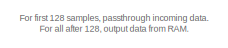
[diagram: HDL_LTE/SSS_Detection/Sample_and_Store - part 1/3, top center region]
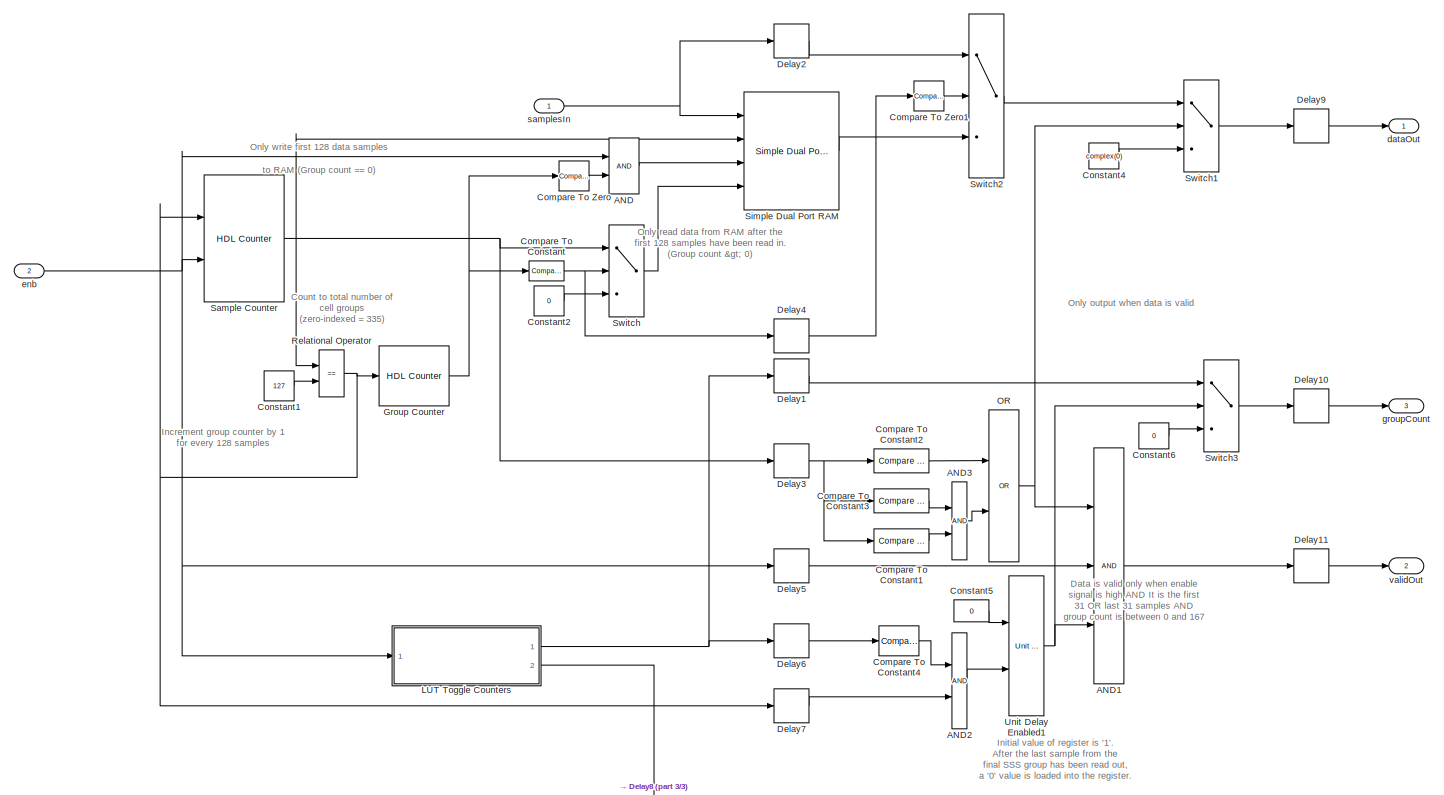
[diagram: HDL_LTE/SSS_Detection/Sample_and_Store - part 2/3, most of the canvas]
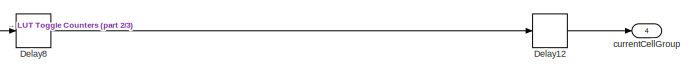
[diagram: HDL_LTE/SSS_Detection/Sample_and_Store - part 3/3, bottom right region]
BLOCK [SubSystem] HDL_LTE/SSS_Detection/Sample_and_Store
  Ports = [2, 4]
  RequestExecContextInheritance = off
  Variant = off
BLOCK [Logic] HDL_LTE/SSS_Detection/Sample_and_Store/AND
  AllPortsSameDT = off
  IconShape = distinctive
  OutDataTypeStr = boolean
  Ports = [2, 1]
BLOCK [Logic] HDL_LTE/SSS_Detection/Sample_and_Store/AND1
  AllPortsSameDT = off
  IconShape = distinctive
  Inputs = 3
  OutDataTypeStr = boolean
  Ports = [3, 1]
BLOCK [Logic] HDL_LTE/SSS_Detection/Sample_and_Store/AND2
  AllPortsSameDT = off
  IconShape = distinctive
  OutDataTypeStr = boolean
  Ports = [2, 1]
BLOCK [Logic] HDL_LTE/SSS_Detection/Sample_and_Store/AND3
  AllPortsSameDT = off
  IconShape = distinctive
  OutDataTypeStr = boolean
  Ports = [2, 1]
BLOCK [Reference] HDL_LTE/SSS_Detection/Sample_and_Store/Compare To Constant  REF=simulink/Logic and Bit
Operations/Compare
To Constant
  Ports = [1, 1]
  SourceBlock = simulink/Logic and Bit\nOperations/Compare\nTo Constant
  SourceType = Compare To Constant
BLOCK [Reference] HDL_LTE/SSS_Detection/Sample_and_Store/Compare To Constant1  REF=simulink/Logic and Bit
Operations/Compare
To Constant
  Ports = [1, 1]
  SourceBlock = simulink/Logic and Bit\nOperations/Compare\nTo Constant
  SourceType = Compare To Constant
BLOCK [Reference] HDL_LTE/SSS_Detection/Sample_and_Store/Compare To Constant2  REF=simulink/Logic and Bit
Operations/Compare
To Constant
  Ports = [1, 1]
  SourceBlock = simulink/Logic and Bit\nOperations/Compare\nTo Constant
  SourceType = Compare To Constant
BLOCK [Reference] HDL_LTE/SSS_Detection/Sample_and_Store/Compare To Constant3  REF=simulink/Logic and Bit
Operations/Compare
To Constant
  Ports = [1, 1]
  SourceBlock = simulink/Logic and Bit\nOperations/Compare\nTo Constant
  SourceType = Compare To Constant
BLOCK [Reference] HDL_LTE/SSS_Detection/Sample_and_Store/Compare To Constant4  REF=simulink/Logic and Bit
Operations/Compare
To Constant
  Ports = [1, 1]
  SourceBlock = simulink/Logic and Bit\nOperations/Compare\nTo Constant
  SourceType = Compare To Constant
BLOCK [Reference] HDL_LTE/SSS_Detection/Sample_and_Store/Compare To Zero  REF=simulink/Logic and Bit
Operations/Compare
To Zero
  Ports = [1, 1]
  SourceBlock = simulink/Logic and Bit\nOperations/Compare\nTo Zero
  SourceType = Compare To Zero
BLOCK [Reference] HDL_LTE/SSS_Detection/Sample_and_Store/Compare To Zero1  REF=simulink/Logic and Bit
Operations/Compare
To Zero
  Ports = [1, 1]
  SourceBlock = simulink/Logic and Bit\nOperations/Compare\nTo Zero
  SourceType = Compare To Zero
BLOCK [Constant] HDL_LTE/SSS_Detection/Sample_and_Store/Constant1
  OutDataTypeStr = fixdt(0,8,0)
  SampleTime = simParams.TsRx
  Value = 127
BLOCK [Constant] HDL_LTE/SSS_Detection/Sample_and_Store/Constant2
  OutDataTypeStr = fixdt(0,7,0)
  SampleTime = simParams.TsRx
  Value = 0
BLOCK [Constant] HDL_LTE/SSS_Detection/Sample_and_Store/Constant4
  OutDataTypeStr = Inherit: Inherit via back propagation
  SampleTime = simParams.TsRx
  Value = complex(0)
BLOCK [Constant] HDL_LTE/SSS_Detection/Sample_and_Store/Constant5
  OutDataTypeStr = boolean
  SampleTime = simParams.TsRx
  Value = 0
BLOCK [Constant] HDL_LTE/SSS_Detection/Sample_and_Store/Constant6
  OutDataTypeStr = fixdt(0,9,0)
  SampleTime = simParams.TsRx
  Value = 0
BLOCK [Delay] HDL_LTE/SSS_Detection/Sample_and_Store/Delay1
  DelayLength = 1
  InitialCondition = 0
  InputPortMap = u0
  Ports = [1, 1]
BLOCK [Delay] HDL_LTE/SSS_Detection/Sample_and_Store/Delay10
  DelayLength = 1
  InitialCondition = 0
  InputPortMap = u0
  Ports = [1, 1]
BLOCK [Delay] HDL_LTE/SSS_Detection/Sample_and_Store/Delay11
  DelayLength = 1
  InitialCondition = 0
  InputPortMap = u0
  Ports = [1, 1]
BLOCK [Delay] HDL_LTE/SSS_Detection/Sample_and_Store/Delay12
  DelayLength = 1
  InitialCondition = 0
  InputPortMap = u0
  Ports = [1, 1]
BLOCK [Delay] HDL_LTE/SSS_Detection/Sample_and_Store/Delay2
  DelayLength = 1
  InitialCondition = 0
  InputPortMap = u0
  Ports = [1, 1]
BLOCK [Delay] HDL_LTE/SSS_Detection/Sample_and_Store/Delay3
  DelayLength = 1
  InitialCondition = 0
  InputPortMap = u0
  Ports = [1, 1]
BLOCK [Delay] HDL_LTE/SSS_Detection/Sample_and_Store/Delay4
  DelayLength = 1
  InitialCondition = 0
  InputPortMap = u0
  Ports = [1, 1]
BLOCK [Delay] HDL_LTE/SSS_Detection/Sample_and_Store/Delay5
  DelayLength = 1
  InitialCondition = 0
  InputPortMap = u0
  Ports = [1, 1]
BLOCK [Delay] HDL_LTE/SSS_Detection/Sample_and_Store/Delay6
  DelayLength = 1
  InitialCondition = 0
  InputPortMap = u0
  Ports = [1, 1]
BLOCK [Delay] HDL_LTE/SSS_Detection/Sample_and_Store/Delay7
  DelayLength = 1
  InitialCondition = 0
  InputPortMap = u0
  Ports = [1, 1]
BLOCK [Delay] HDL_LTE/SSS_Detection/Sample_and_Store/Delay8
  DelayLength = 1
  InitialCondition = 0
  InputPortMap = u0
  Ports = [1, 1]
BLOCK [Delay] HDL_LTE/SSS_Detection/Sample_and_Store/Delay9
  DelayLength = 1
  InitialCondition = 0
  InputPortMap = u0
  Ports = [1, 1]
BLOCK [Reference] HDL_LTE/SSS_Detection/Sample_and_Store/Group Counter  REF=hdlsllib/HDL Operations/HDL Counter
  Ports = [1, 1]
  SourceBlock = hdlsllib/HDL Operations/HDL Counter
  SourceType = HDL Counter
BLOCK [SubSystem] HDL_LTE/SSS_Detection/Sample_and_Store/LUT Toggle Counters
  Ports = [1, 2]
  RequestExecContextInheritance = off
  Variant = off
BLOCK [Reference] HDL_LTE/SSS_Detection/Sample_and_Store/LUT Toggle Counters/Compare To Constant4  REF=simulink/Logic and Bit
Operations/Compare
To Constant
  Ports = [1, 1]
  SourceBlock = simulink/Logic and Bit\nOperations/Compare\nTo Constant
  SourceType = Compare To Constant
BLOCK [Reference] HDL_LTE/SSS_Detection/Sample_and_Store/LUT Toggle Counters/Compare To Constant5  REF=simulink/Logic and Bit
Operations/Compare
To Constant
  Ports = [1, 1]
  SourceBlock = simulink/Logic and Bit\nOperations/Compare\nTo Constant
  SourceType = Compare To Constant
BLOCK [Inport] HDL_LTE/SSS_Detection/Sample_and_Store/LUT Toggle Counters/In1
  IconDisplay = Port number
BLOCK [Reference] HDL_LTE/SSS_Detection/Sample_and_Store/LUT Toggle Counters/Index SubFrame 0  REF=hdlsllib/HDL Operations/HDL Counter
  Ports = [1, 1]
  SourceBlock = hdlsllib/HDL Operations/HDL Counter
  SourceType = HDL Counter
BLOCK [Reference] HDL_LTE/SSS_Detection/Sample_and_Store/LUT Toggle Counters/Index SubFrame 5  REF=hdlsllib/HDL Operations/HDL Counter
  Ports = [1, 1]
  SourceBlock = hdlsllib/HDL Operations/HDL Counter
  SourceType = HDL Counter
BLOCK [Outport] HDL_LTE/SSS_Detection/Sample_and_Store/LUT Toggle Counters/Out1
  IconDisplay = Port number
BLOCK [Outport] HDL_LTE/SSS_Detection/Sample_and_Store/LUT Toggle Counters/Out2
  IconDisplay = Port number
  Port = 2
BLOCK [Reference] HDL_LTE/SSS_Detection/Sample_and_Store/LUT Toggle Counters/Sample Counter1  REF=hdlsllib/HDL Operations/HDL Counter
  Ports = [1, 1]
  SourceBlock = hdlsllib/HDL Operations/HDL Counter
  SourceType = HDL Counter
BLOCK [Switch] HDL_LTE/SSS_Detection/Sample_and_Store/LUT Toggle Counters/Switch4
  Criteria = u2 ~= 0
  InputSameDT = off
  SaturateOnIntegerOverflow = off
BLOCK [Logic] HDL_LTE/SSS_Detection/Sample_and_Store/OR
  AllPortsSameDT = off
  IconShape = distinctive
  Operator = OR
  OutDataTypeStr = boolean
  Ports = [2, 1]
BLOCK [RelationalOperator] HDL_LTE/SSS_Detection/Sample_and_Store/Relational Operator
  InputSameDT = off
  Operator = ==
  OutDataTypeStr = boolean
  Ports = [2, 1]
BLOCK [Reference] HDL_LTE/SSS_Detection/Sample_and_Store/Sample Counter  REF=hdlsllib/HDL Operations/HDL Counter
  Ports = [2, 1]
  SourceBlock = hdlsllib/HDL Operations/HDL Counter
  SourceType = HDL Counter
BLOCK [Reference] HDL_LTE/SSS_Detection/Sample_and_Store/Simple Dual Port RAM  REF=hdlsllib/HDL Operations/Simple Dual Port RAM
  Ports = [4, 1]
  SourceBlock = hdlsllib/HDL Operations/Simple Dual Port RAM
  SourceType = Simple Dual-port RAM
BLOCK [Switch] HDL_LTE/SSS_Detection/Sample_and_Store/Switch
  Criteria = u2 ~= 0
  InputSameDT = off
  SaturateOnIntegerOverflow = off
BLOCK [Switch] HDL_LTE/SSS_Detection/Sample_and_Store/Switch1
  Criteria = u2 ~= 0
  SaturateOnIntegerOverflow = off
BLOCK [Switch] HDL_LTE/SSS_Detection/Sample_and_Store/Switch2
  Criteria = u2 ~= 0
  InputSameDT = off
  SaturateOnIntegerOverflow = off
BLOCK [Switch] HDL_LTE/SSS_Detection/Sample_and_Store/Switch3
  Criteria = u2 ~= 0
  InputSameDT = off
  SaturateOnIntegerOverflow = off
BLOCK [Reference] HDL_LTE/SSS_Detection/Sample_and_Store/Unit Delay Enabled1  REF=simulink/Additional Math
& Discrete/Additional
Discrete/Unit Delay
Enabled
  Ports = [2, 1]
  SourceBlock = simulink/Additional Math\n& Discrete/Additional\nDiscrete/Unit Delay\nEnabled
  SourceType = Unit Delay Enabled
BLOCK [Outport] HDL_LTE/SSS_Detection/Sample_and_Store/currentCellGroup
  IconDisplay = Port number
  Port = 4
BLOCK [Outport] HDL_LTE/SSS_Detection/Sample_and_Store/dataOut
  IconDisplay = Port number
BLOCK [Inport] HDL_LTE/SSS_Detection/Sample_and_Store/enb
  IconDisplay = Port number
  Port = 2
BLOCK [Outport] HDL_LTE/SSS_Detection/Sample_and_Store/groupCount
  IconDisplay = Port number
  Port = 3
BLOCK [Inport] HDL_LTE/SSS_Detection/Sample_and_Store/samplesIn
  IconDisplay = Port number
BLOCK [Outport] HDL_LTE/SSS_Detection/Sample_and_Store/validOut
  IconDisplay = Port number
  Port = 2
BLOCK [Outport] HDL_LTE/SSS_Detection/currentCellGroup
  IconDisplay = Port number
  Port = 2
BLOCK [Outport] HDL_LTE/SSS_Detection/dataOut
  IconDisplay = Port number
BLOCK [Inport] HDL_LTE/SSS_Detection/enb
  IconDisplay = Port number
  Port = 2
BLOCK [Inport] HDL_LTE/SSS_Detection/pCellID
  IconDisplay = Port number
  Port = 3
BLOCK [Outport] HDL_LTE/SSS_Detection/postionInGroup
  IconDisplay = Port number
  Port = 3
BLOCK [Inport] HDL_LTE/SSS_Detection/receiveSamples
  IconDisplay = Port number
BLOCK [Outport] HDL_LTE/SSS_Detection/validOut
  IconDisplay = Port number
  Port = 4
BLOCK [SubSystem] HDL_LTE/Timing_Adjustment
  Ports = [2, 2]
  RequestExecContextInheritance = off
  Variant = off
BLOCK [Constant] HDL_LTE/Timing_Adjustment/Constant
  OutDataTypeStr = fixdt(1,16,15)
  SampleTime = simParams.TsRx
  Value = complex(0)
BLOCK [Constant] HDL_LTE/Timing_Adjustment/Constant1
  OutDataTypeStr = boolean
  SampleTime = simParams.TsRx
BLOCK [Delay] HDL_LTE/Timing_Adjustment/Delay1
  DelayLength = 265
  InitialCondition = 0
  InputPortMap = u0
  InputProcessing = Columns as channels (frame based)
  Ports = [1, 1]
  UserDataPersistent = on
BLOCK [Delay] HDL_LTE/Timing_Adjustment/Delay2
  DelayLength = 1
  InitialCondition = 0
  InputPortMap = u0
  Ports = [1, 1]
  UseCircularBuffer = on
  UserDataPersistent = on
BLOCK [Delay] HDL_LTE/Timing_Adjustment/Delay3
  DelayLength = 1
  InitialCondition = 0
  InputPortMap = u0
  Ports = [1, 1]
  UseCircularBuffer = on
  UserDataPersistent = on
BLOCK [Delay] HDL_LTE/Timing_Adjustment/Delay4
  DelayLength = 1
  InitialCondition = 0
  InputPortMap = u0
  Ports = [1, 1]
  UseCircularBuffer = on
  UserDataPersistent = on
BLOCK [Delay] HDL_LTE/Timing_Adjustment/Delay5
  DelayLength = 1
  InitialCondition = 0
  InputPortMap = u0
  Ports = [1, 1]
  UseCircularBuffer = on
  UserDataPersistent = on
BLOCK [Inport] HDL_LTE/Timing_Adjustment/PSSDetected
  IconDisplay = Port number
  Port = 2
BLOCK [Switch] HDL_LTE/Timing_Adjustment/Switch
  Criteria = u2 > Threshold
  InputSameDT = off
  SaturateOnIntegerOverflow = off
BLOCK [Reference] HDL_LTE/Timing_Adjustment/Unit Delay Enabled1  REF=simulink/Additional Math
& Discrete/Additional
Discrete/Unit Delay
Enabled
  Ports = [2, 1]
  SourceBlock = simulink/Additional Math\n& Discrete/Additional\nDiscrete/Unit Delay\nEnabled
  SourceType = Unit Delay Enabled
BLOCK [Inport] HDL_LTE/Timing_Adjustment/dataIn
  IconDisplay = Port number
BLOCK [Outport] HDL_LTE/Timing_Adjustment/dataOut
  IconDisplay = Port number
BLOCK [Outport] HDL_LTE/Timing_Adjustment/validOut
  IconDisplay = Port number
  Port = 2
BLOCK [Inport] HDL_LTE/dataInIm
  IconDisplay = Port number
  Port = 2
BLOCK [Inport] HDL_LTE/dataInRe
  IconDisplay = Port number
BLOCK [Outport] HDL_LTE/dataOutIm
  IconDisplay = Port number
  Port = 2
BLOCK [Outport] HDL_LTE/dataOutRe
  IconDisplay = Port number
BLOCK [Inport] HDL_LTE/validIn
  IconDisplay = Port number
  Port = 3
BLOCK [Outport] HDL_LTE/validOut
  IconDisplay = Port number
  Port = 3
  PortDimensions = 1
BLOCK [Reference] LTE Transmit Waveform, Fs=61.44 MHz  REF=dspsrcs4/Signal From
Workspace
  Ports = [0, 1]
  SourceBlock = dspsrcs4/Signal From\nWorkspace
  SourceType = Signal From Workspace
BLOCK [RealImagToComplex] Real-Imag to Complex
  Ports = [2, 1]
BLOCK [Terminator] Terminator
BLOCK [Constant] Valid
  OutDataTypeStr = boolean
  SampleTime = 1/61.44e6
  VectorParams1D = off
BLOCK [Constant] Valid1
  OutDataTypeStr = boolean
  SampleTime = 1/61.44e6
  VectorParams1D = off
ANNOTATION (root): When targeting using HDL Workflow Advisor, you must choose Compile Optimized synthesis objective at step 4.1.
ANNOTATION (root): <copyright redacted>
ANNOTATION (root): HW/SW Co-Design Implementation of LTE OFDM Detector Using Analog Devices AD9361/AD9364 Hardware Generation Model
ANNOTATION (root): Rx Hardware Algorithm
ANNOTATION (root): Rx Software Algorithm
ANNOTATION (root): Samples to frames
ANNOTATION HDL_LTE: Bring data rate down to 1.92 Msps, and filter
ANNOTATION HDL_LTE: Drive valid high for 5000 samples every second
ANNOTATION HDL_LTE: Upsample data back to 61.44 Msps
ANNOTATION HDL_LTE/Determine_Cell_ID: Calculate detected Cell ID (CellID = 3*N_ID(1) + N_ID(2))
ANNOTATION HDL_LTE/Determine_Cell_ID: N_ID(1)
ANNOTATION HDL_LTE/Determine_Cell_ID: N_ID(2)
ANNOTATION HDL_LTE/Determine_Cell_ID: If incoming SSS correlation output is greater than that stored in register, store new maximum value, and cell group number, in registers
ANNOTATION HDL_LTE/Determine_Cell_ID: Store corresponding cell group in register
ANNOTATION HDL_LTE/Determine_Cell_ID: Store maximum value in register
ANNOTATION HDL_LTE/FFT: Set input of FFT to input wordlength + FFT growth to allow the output of the FFT to scale. Maximum bit growth is equal to log2(nFFT).
ANNOTATION HDL_LTE/FPGA_to_Host: Combine the primary cell ID and secondary cell ID into a single 16 bit signal. Send cell ID as 16 bit signal.
ANNOTATION HDL_LTE/FPGA_to_Host: Multiplex signals
ANNOTATION HDL_LTE/FPGA_to_Host: scale to int16
ANNOTATION HDL_LTE/Frequency_Correction: This subsystem corrects the frequency offset using an Numerically Controller Oscillator (NCO) and a conjugate multiplication.
ANNOTATION HDL_LTE/Frequency_Estimation/Angle_Filter: This subsystem implements a 1-pole IIR filter to perform further averaging of the correlation angle results. The filter's gain is normalized to 0dB and an efficient implementation which requires only 1 multiplier is used.
ANNOTATION HDL_LTE/Frequency_Estimation/Angle_at_Maximum: Store current mag & angle if mag is greater than previous max mag.
ANNOTATION HDL_LTE/Frequency_Estimation/Angle_at_Maximum: This register stores the current running max magnitude in the current time window
ANNOTATION HDL_LTE/Frequency_Estimation/Angle_at_Maximum: This subsystem records the maximum CP correlation level, and the corresponding phase angle of the result, across windows of time equivalent to 1 slot (960 samples). A counter is used to reset the running max and record the final phase value, which is then passed to the output and qualified by the validOut signal.
ANNOTATION HDL_LTE/Frequency_Estimation/Cyclic_Prefix_Correlator: Correlate the signal with itself delayed by the FFT length (128 samples).
ANNOTATION HDL_LTE/Frequency_Estimation/Cyclic_Prefix_Correlator: Finally average across 7 OFDM symbols, i.e. the number in each slot.
ANNOTATION HDL_LTE/Frequency_Estimation/Cyclic_Prefix_Correlator: Integrate across part of the CP length, which is 9 samples. However we use 8 samples here to optimize for HDL implementation.
ANNOTATION HDL_LTE/Frequency_Estimation/Cyclic_Prefix_Correlator/Moving_Average: Use a comb filter followed by an integrator to implement an efficient 9-tab moving average.
ANNOTATION HDL_LTE/Frequency_Estimation/Cyclic_Prefix_Correlator/Slot_Average: This subsystem averages 7 of the CP correlation results, equivalant to 1 slot of averaging. This is done by delaying the signal by integer multiples of the OFDM symbol period, i.e. 137 samples. Additional piplining is introduced, resulting in delays of 138 samples.
ANNOTATION HDL_LTE/Frequency_Estimation/Cyclic_Prefix_Correlator/Slot_Average: To optimize for HDL we scale the summation result by 1/8 rather than 1/7.
ANNOTATION HDL_LTE/PSS_Detection/Cross_Correlation: Generation of a threshold signal via averaging filter
ANNOTATION HDL_LTE/PSS_Detection/Cross_Correlation: Cross-correlation of the input OFDM frame with the 3 possible PSS sequences.
ANNOTATION HDL_LTE/PSS_Detection/Cross_Correlation/PSSXCorr0: A
ANNOTATION HDL_LTE/PSS_Detection/Cross_Correlation/PSSXCorr0: B
ANNOTATION HDL_LTE/PSS_Detection/Cross_Correlation/PSSXCorr1: A
ANNOTATION HDL_LTE/PSS_Detection/Cross_Correlation/PSSXCorr1: B
ANNOTATION HDL_LTE/PSS_Detection/Cross_Correlation/PSSXCorr2: A
ANNOTATION HDL_LTE/PSS_Detection/Cross_Correlation/PSSXCorr2: B
ANNOTATION HDL_LTE/PSS_Detection/Determine_Primary_Cell_ID: If value is greater than previous store value AND PSS detection strobe is high, store new max value in register
ANNOTATION HDL_LTE/PSS_Detection/Determine_Primary_Cell_ID: PiplinedMax finds max value and corresponding zero-based index. Delay = 1 sample.
ANNOTATION HDL_LTE/PSS_Detection/Peak_Detection: Check if cross-correlation value exceeds threshold. If it does, then perform a ten sample local search to determine the local maximum value and corresponding offset.
ANNOTATION HDL_LTE/PSS_Detection/Peak_Detection/Local_Search_PSS0: Generate 10 sample enable signal
ANNOTATION HDL_LTE/PSS_Detection/Peak_Detection/Local_Search_PSS0/maximum: After 10 clock cycles, output maximum value and corresponding index value
ANNOTATION HDL_LTE/PSS_Detection/Peak_Detection/Local_Search_PSS0/maximum: Check for new maximum value
ANNOTATION HDL_LTE/PSS_Detection/Peak_Detection/Local_Search_PSS0/maximum: Count to 10
ANNOTATION HDL_LTE/PSS_Detection/Peak_Detection/Local_Search_PSS0/maximum: Hold index value (out of 10) for current maximum value
ANNOTATION HDL_LTE/PSS_Detection/Peak_Detection/Local_Search_PSS0/maximum/Delay Reset: Enable
ANNOTATION HDL_LTE/PSS_Detection/Peak_Detection/Local_Search_PSS0/maximum/Delay Reset/Reset Delay: Reset
ANNOTATION HDL_LTE/PSS_Detection/Peak_Detection/Local_Search_PSS0/maximum/Delay Reset2: Enable
ANNOTATION HDL_LTE/PSS_Detection/Peak_Detection/Local_Search_PSS0/maximum/Delay Reset2/Reset Delay: Reset
ANNOTATION HDL_LTE/PSS_Detection/Peak_Detection/Local_Search_PSS1: Generate 10 sample enable signal
ANNOTATION HDL_LTE/PSS_Detection/Peak_Detection/Local_Search_PSS1/maximum: After 10 clock cycles, output maximum value and corresponding index value
ANNOTATION HDL_LTE/PSS_Detection/Peak_Detection/Local_Search_PSS1/maximum: Check for new maximum value
ANNOTATION HDL_LTE/PSS_Detection/Peak_Detection/Local_Search_PSS1/maximum: Count to 10
ANNOTATION HDL_LTE/PSS_Detection/Peak_Detection/Local_Search_PSS1/maximum: Hold index value (out of 10) for current maximum value
ANNOTATION HDL_LTE/PSS_Detection/Peak_Detection/Local_Search_PSS1/maximum/Delay Reset: Enable
ANNOTATION HDL_LTE/PSS_Detection/Peak_Detection/Local_Search_PSS1/maximum/Delay Reset/Reset Delay: Reset
ANNOTATION HDL_LTE/PSS_Detection/Peak_Detection/Local_Search_PSS1/maximum/Delay Reset2: Enable
ANNOTATION HDL_LTE/PSS_Detection/Peak_Detection/Local_Search_PSS1/maximum/Delay Reset2/Reset Delay: Reset
ANNOTATION HDL_LTE/PSS_Detection/Peak_Detection/Local_Search_PSS2: Generate 10 sample enable signal
ANNOTATION HDL_LTE/PSS_Detection/Peak_Detection/Local_Search_PSS2/maximum: After 10 clock cycles, output maximum value and corresponding index value
ANNOTATION HDL_LTE/PSS_Detection/Peak_Detection/Local_Search_PSS2/maximum: Check for new maximum value
ANNOTATION HDL_LTE/PSS_Detection/Peak_Detection/Local_Search_PSS2/maximum: Count to 10
ANNOTATION HDL_LTE/PSS_Detection/Peak_Detection/Local_Search_PSS2/maximum: Hold index value (out of 10) for current maximum value
ANNOTATION HDL_LTE/PSS_Detection/Peak_Detection/Local_Search_PSS2/maximum/Delay Reset: Enable
ANNOTATION HDL_LTE/PSS_Detection/Peak_Detection/Local_Search_PSS2/maximum/Delay Reset/Reset Delay: Reset
ANNOTATION HDL_LTE/PSS_Detection/Peak_Detection/Local_Search_PSS2/maximum/Delay Reset2: Enable
ANNOTATION HDL_LTE/PSS_Detection/Peak_Detection/Local_Search_PSS2/maximum/Delay Reset2/Reset Delay: Reset
ANNOTATION HDL_LTE/SSS_Detection/SSS_Dot_Product: Multiply dataIn by seqIn: since seqIn is always either -1 or 1, use a gain of -1 and a switch to invert dataIn when seqIn = -1.
ANNOTATION HDL_LTE/SSS_Detection/SSS_Dot_Product: Reset register after all 63 samples have been processed
ANNOTATION HDL_LTE/SSS_Detection/SSS_Dot_Product: Accumulate
ANNOTATION HDL_LTE/SSS_Detection/SSS_Dot_Product/Delay Reset: Enable
ANNOTATION HDL_LTE/SSS_Detection/SSS_Dot_Product/Delay Reset/Reset Delay: Reset
ANNOTATION HDL_LTE/SSS_Detection/SSS_Sequence_Update: Select correct column of LUT corresponding to current CellID (CellID = 3*N_ID(1) + N_ID(2))
ANNOTATION HDL_LTE/SSS_Detection/SSS_Sequence_Update: N_ID(1)
ANNOTATION HDL_LTE/SSS_Detection/SSS_Sequence_Update: N_ID(2)
ANNOTATION HDL_LTE/SSS_Detection/SSS_Sequence_Update: Strobe when all 62 samples have been counted out
ANNOTATION HDL_LTE/SSS_Detection/Sample_and_Store: Count to total number of cell groups (zero-indexed = 335)
ANNOTATION HDL_LTE/SSS_Detection/Sample_and_Store: Only write first 128 data samples to RAM (Group count == 0)
ANNOTATION HDL_LTE/SSS_Detection/Sample_and_Store: Increment group counter by 1 for every 128 samples
ANNOTATION HDL_LTE/SSS_Detection/Sample_and_Store: Only read data from RAM after the first 128 samples have been read in. (Group count > 0)
ANNOTATION HDL_LTE/SSS_Detection/Sample_and_Store: Data is valid only when enable signal is high AND It is the first 31 OR last 31 samples AND group count is between 0 and 167
ANNOTATION HDL_LTE/SSS_Detection/Sample_and_Store: For first 128 samples, passthrough incoming data. For all after 128, output data from RAM.
ANNOTATION HDL_LTE/SSS_Detection/Sample_and_Store: Initial value of register is '1'. After the last sample from the final SSS group has been read out, a '0' value is loaded into the register.
ANNOTATION HDL_LTE/SSS_Detection/Sample_and_Store: Only output when data is valid
ANNOTATION HDL_LTE/Timing_Adjustment: Delay signal so that once the PSS has been detected, the resource block containing the SSS signal (the previous block) is aligned here.
ANNOTATION HDL_LTE/Timing_Adjustment: Detect PSS detection strobe, and create valid high signal.
ANNOTATION HDL_LTE/Timing_Adjustment: Only output samples once the detected strobe has been received.
ANNOTATION HDL_LTE/Timing_Adjustment: PSS detect strobe is high at the end of the PSS sequence, so delay must be for the full 128 samples of the PSS, and the full 128 samples of the SSS, plus a single short CP length of 9 samples for 128-point FFT.
LINE Complex to Real-Imag:1 -> HDL_LTE:1
LINE Complex to Real-Imag:2 -> HDL_LTE:2
LINE Data Type Conversion:1 -> Complex to Real-Imag:1
LINE Decode and Print/dataIn:1 -> Decode and Print/PrintCellID:1
LINE Deserializer1D:1 -> Decode and Print:1
LINE Deserializer1D:2 -> Decode and Print:enable
LINE HDL_LTE/Complex to Real-Imag1:1 -> HDL_LTE/dataOutRe:1
LINE HDL_LTE/Complex to Real-Imag1:2 -> HDL_LTE/dataOutIm:1
LINE HDL_LTE/Delay10:1 -> HDL_LTE/Delay11:1
LINE HDL_LTE/Delay11:1 -> HDL_LTE/Delay12:1
LINE HDL_LTE/Delay12:1 -> HDL_LTE/Delay13:1
LINE HDL_LTE/Delay13:1 -> HDL_LTE/FPGA_to_Host:4
NET HDL_LTE/Delay14:1 -> HDL_LTE/Delay15:1, HDL_LTE/SSS_Detection:3
LINE HDL_LTE/Delay15:1 -> HDL_LTE/Delay16:1
LINE HDL_LTE/Delay16:1 -> HDL_LTE/Delay2:1
LINE HDL_LTE/Delay1:1 -> HDL_LTE/FPGA_to_Host:2
LINE HDL_LTE/Delay2:1 -> HDL_LTE/FPGA_to_Host:3
NET HDL_LTE/Delay3:1 -> HDL_LTE/FPGA_to_Host:5, HDL_LTE/Repeat1:1
LINE HDL_LTE/Delay4:1 -> HDL_LTE/Delay7:1
LINE HDL_LTE/Delay5:1 -> HDL_LTE/Delay14:1
LINE HDL_LTE/Delay6:1 -> HDL_LTE/FPGA_to_Host:1
LINE HDL_LTE/Delay7:1 -> HDL_LTE/Delay8:1
LINE HDL_LTE/Delay8:1 -> HDL_LTE/Delay10:1
LINE HDL_LTE/Delay9:1 -> HDL_LTE/Timing_Adjustment:1
LINE HDL_LTE/Determine_Cell_ID/Add2:1 -> HDL_LTE/Determine_Cell_ID/cellID:1
LINE HDL_LTE/Determine_Cell_ID/Delay3:1 -> HDL_LTE/Determine_Cell_ID/validOut:1
LINE HDL_LTE/Determine_Cell_ID/Gain1:1 -> HDL_LTE/Determine_Cell_ID/Add2:1
NET HDL_LTE/Determine_Cell_ID/Relational Operator4:1 -> HDL_LTE/Determine_Cell_ID/Unit Delay Enabled1:2, HDL_LTE/Determine_Cell_ID/Unit Delay Enabled3:2
NET HDL_LTE/Determine_Cell_ID/SSSDotProd:1 -> HDL_LTE/Determine_Cell_ID/Relational Operator4:1, HDL_LTE/Determine_Cell_ID/Unit Delay Enabled3:1
NET HDL_LTE/Determine_Cell_ID/Unit Delay Enabled1:1 -> HDL_LTE/Determine_Cell_ID/Gain1:1, HDL_LTE/Determine_Cell_ID/cellGroup:1
LINE HDL_LTE/Determine_Cell_ID/Unit Delay Enabled3:1 -> HDL_LTE/Determine_Cell_ID/Relational Operator4:2
LINE HDL_LTE/Determine_Cell_ID/currentCellGroup:1 -> HDL_LTE/Determine_Cell_ID/Unit Delay Enabled1:1
LINE HDL_LTE/Determine_Cell_ID/positionInGroup:1 -> HDL_LTE/Determine_Cell_ID/Add2:2
LINE HDL_LTE/Determine_Cell_ID/validIn:1 -> HDL_LTE/Determine_Cell_ID/Delay3:1
LINE HDL_LTE/Determine_Cell_ID:1 -> HDL_LTE/Delay6:1
LINE HDL_LTE/Determine_Cell_ID:2 -> HDL_LTE/Delay1:1
LINE HDL_LTE/Determine_Cell_ID:3 -> HDL_LTE/Delay3:1
LINE HDL_LTE/Divide_Valid/Compare To Constant:1 -> HDL_LTE/Divide_Valid/validOut:1
LINE HDL_LTE/Divide_Valid/HDL Counter:1 -> HDL_LTE/Divide_Valid/Compare To Constant:1
LINE HDL_LTE/Divide_Valid/validIn:1 -> HDL_LTE/Divide_Valid/HDL Counter:1
LINE HDL_LTE/Divide_Valid:1 -> HDL_LTE/validOut:1
LINE HDL_LTE/Enabled Delay:1 -> HDL_LTE/FIR Decimation:1
LINE HDL_LTE/FFT/Data Type Conversion:1 -> HDL_LTE/FFT/dataOut:1
LINE HDL_LTE/FFT/Delay1:1 -> HDL_LTE/FFT/Signal Specification:1
LINE HDL_LTE/FFT/Delay2:1 -> HDL_LTE/FFT/Signal Specification1:1
LINE HDL_LTE/FFT/Delay4:1 -> HDL_LTE/FFT/Data Type Conversion:1
LINE HDL_LTE/FFT/Delay5:1 -> HDL_LTE/FFT/validOut:1
LINE HDL_LTE/FFT/FFT HDL Optimized:1 -> HDL_LTE/FFT/Delay4:1
LINE HDL_LTE/FFT/FFT HDL Optimized:2 -> HDL_LTE/FFT/Delay5:1
LINE HDL_LTE/FFT/Signal Specification1:1 -> HDL_LTE/FFT/FFT HDL Optimized:2
LINE HDL_LTE/FFT/Signal Specification:1 -> HDL_LTE/FFT/FFT HDL Optimized:1
LINE HDL_LTE/FFT/dataIn:1 -> HDL_LTE/FFT/Delay1:1
LINE HDL_LTE/FFT/validIn:1 -> HDL_LTE/FFT/Delay2:1
LINE HDL_LTE/FFT:1 -> HDL_LTE/SSS_Detection:1
LINE HDL_LTE/FFT:2 -> HDL_LTE/SSS_Detection:2
NET HDL_LTE/FIR Decimation:1 -> HDL_LTE/Frequency_Correction:1, HDL_LTE/Frequency_Estimation:1
LINE HDL_LTE/FPGA_to_Host/Bitwise Operator2:1 -> HDL_LTE/FPGA_to_Host/Real-Imag to Complex:2
LINE HDL_LTE/FPGA_to_Host/Cell:1 -> HDL_LTE/FPGA_to_Host/Data Type Conversion1:1
LINE HDL_LTE/FPGA_to_Host/Constant:1 -> HDL_LTE/FPGA_to_Host/Data Type Conversion4:1
LINE HDL_LTE/FPGA_to_Host/Data Type Conversion1:1 -> HDL_LTE/FPGA_to_Host/Real-Imag to Complex:1
LINE HDL_LTE/FPGA_to_Host/Data Type Conversion2:1 -> HDL_LTE/FPGA_to_Host/Bitwise Operator2:1
LINE HDL_LTE/FPGA_to_Host/Data Type Conversion4:1 -> HDL_LTE/FPGA_to_Host/Shift Arithmetic2:1
LINE HDL_LTE/FPGA_to_Host/Data Type Conversion:1 -> HDL_LTE/FPGA_to_Host/Shift Arithmetic1:1
LINE HDL_LTE/FPGA_to_Host/FreqEst:1 -> HDL_LTE/FPGA_to_Host/Gain:1
LINE HDL_LTE/FPGA_to_Host/Gain:1 -> HDL_LTE/FPGA_to_Host/Real-Imag to Complex1:1
LINE HDL_LTE/FPGA_to_Host/HDL Counter:1 -> HDL_LTE/FPGA_to_Host/Switch:2
LINE HDL_LTE/FPGA_to_Host/Real-Imag to Complex1:1 -> HDL_LTE/FPGA_to_Host/Switch:3
LINE HDL_LTE/FPGA_to_Host/Real-Imag to Complex:1 -> HDL_LTE/FPGA_to_Host/Switch:1
LINE HDL_LTE/FPGA_to_Host/Shift Arithmetic1:1 -> HDL_LTE/FPGA_to_Host/Bitwise Operator2:2
LINE HDL_LTE/FPGA_to_Host/Shift Arithmetic2:1 -> HDL_LTE/FPGA_to_Host/Real-Imag to Complex1:2
NET HDL_LTE/FPGA_to_Host/Switch:1 -> HDL_LTE/FPGA_to_Host/Out:1, HDL_LTE/FPGA_to_Host/To Workspace:1
LINE HDL_LTE/FPGA_to_Host/pCellID:1 -> HDL_LTE/FPGA_to_Host/Data Type Conversion2:1
LINE HDL_LTE/FPGA_to_Host/sCellID:1 -> HDL_LTE/FPGA_to_Host/Data Type Conversion:1
LINE HDL_LTE/FPGA_to_Host/validIn:1 -> HDL_LTE/FPGA_to_Host/HDL Counter:1
LINE HDL_LTE/FPGA_to_Host:1 -> HDL_LTE/Repeat:1
LINE HDL_LTE/Frequency_Correction/Data Type Conversion:1 -> HDL_LTE/Frequency_Correction/Delay1:1
LINE HDL_LTE/Frequency_Correction/Delay1:1 -> HDL_LTE/Frequency_Correction/dataOut:1
LINE HDL_LTE/Frequency_Correction/Delay2:1 -> HDL_LTE/Frequency_Correction/Product1:1
LINE HDL_LTE/Frequency_Correction/Delay3:1 -> HDL_LTE/Frequency_Correction/Product1:2
LINE HDL_LTE/Frequency_Correction/Delay4:1 -> HDL_LTE/Frequency_Correction/Data Type Conversion:1
LINE HDL_LTE/Frequency_Correction/Delay5:1 -> HDL_LTE/Frequency_Correction/Signal Spec:1
LINE HDL_LTE/Frequency_Correction/Delay6:1 -> HDL_LTE/Frequency_Correction/Gain:1
LINE HDL_LTE/Frequency_Correction/Gain:1 -> HDL_LTE/Frequency_Correction/Delay5:1
LINE HDL_LTE/Frequency_Correction/NCO HDL Optimized:1 -> HDL_LTE/Frequency_Correction/Unit Delay Enabled:1
LINE HDL_LTE/Frequency_Correction/NCO HDL Optimized:2 -> HDL_LTE/Frequency_Correction/Unit Delay Enabled:2
LINE HDL_LTE/Frequency_Correction/Product1:1 -> HDL_LTE/Frequency_Correction/Delay4:1
LINE HDL_LTE/Frequency_Correction/Signal Spec:1 -> HDL_LTE/Frequency_Correction/NCO HDL Optimized:1
LINE HDL_LTE/Frequency_Correction/Unit Delay Enabled:1 -> HDL_LTE/Frequency_Correction/complexConjugate:1
LINE HDL_LTE/Frequency_Correction/complexConjugate:1 -> HDL_LTE/Frequency_Correction/Delay3:1
LINE HDL_LTE/Frequency_Correction/dataIn:1 -> HDL_LTE/Frequency_Correction/Delay2:1
LINE HDL_LTE/Frequency_Correction/freq:1 -> HDL_LTE/Frequency_Correction/Delay6:1
NET HDL_LTE/Frequency_Correction:1 -> HDL_LTE/Delay9:1, HDL_LTE/PSS_Detection:1
LINE HDL_LTE/Frequency_Estimation/Angle_Filter/Add1:1 -> HDL_LTE/Frequency_Estimation/Angle_Filter/Unit Delay Enabled:1
LINE HDL_LTE/Frequency_Estimation/Angle_Filter/Add:1 -> HDL_LTE/Frequency_Estimation/Angle_Filter/Gain:1
LINE HDL_LTE/Frequency_Estimation/Angle_Filter/Delay1:1 -> HDL_LTE/Frequency_Estimation/Angle_Filter/angleOut:1
LINE HDL_LTE/Frequency_Estimation/Angle_Filter/Delay2:1 -> HDL_LTE/Frequency_Estimation/Angle_Filter/Add:1
LINE HDL_LTE/Frequency_Estimation/Angle_Filter/Delay3:1 -> HDL_LTE/Frequency_Estimation/Angle_Filter/Unit Delay Enabled:2
LINE HDL_LTE/Frequency_Estimation/Angle_Filter/Gain:1 -> HDL_LTE/Frequency_Estimation/Angle_Filter/Add1:1
NET HDL_LTE/Frequency_Estimation/Angle_Filter/Unit Delay Enabled:1 -> HDL_LTE/Frequency_Estimation/Angle_Filter/Add1:2, HDL_LTE/Frequency_Estimation/Angle_Filter/Add:2, HDL_LTE/Frequency_Estimation/Angle_Filter/Delay1:1
LINE HDL_LTE/Frequency_Estimation/Angle_Filter/angleIn:1 -> HDL_LTE/Frequency_Estimation/Angle_Filter/Delay2:1
LINE HDL_LTE/Frequency_Estimation/Angle_Filter/en:1 -> HDL_LTE/Frequency_Estimation/Angle_Filter/Delay3:1
LINE HDL_LTE/Frequency_Estimation/Angle_Filter:1 -> HDL_LTE/Frequency_Estimation/freqEst:1
NET HDL_LTE/Frequency_Estimation/Angle_at_Maximum/Compare To Constant:1 -> HDL_LTE/Frequency_Estimation/Angle_at_Maximum/Delay3:1, HDL_LTE/Frequency_Estimation/Angle_at_Maximum/Logical Operator:2, HDL_LTE/Frequency_Estimation/Angle_at_Maximum/Unit Delay Enabled2:2
LINE HDL_LTE/Frequency_Estimation/Angle_at_Maximum/Delay1:1 -> HDL_LTE/Frequency_Estimation/Angle_at_Maximum/Unit Delay Enabled1:1
LINE HDL_LTE/Frequency_Estimation/Angle_at_Maximum/Delay2:1 -> HDL_LTE/Frequency_Estimation/Angle_at_Maximum/HDL Counter:1
LINE HDL_LTE/Frequency_Estimation/Angle_at_Maximum/Delay3:1 -> HDL_LTE/Frequency_Estimation/Angle_at_Maximum/validOut:1
NET HDL_LTE/Frequency_Estimation/Angle_at_Maximum/Delay5:1 -> HDL_LTE/Frequency_Estimation/Angle_at_Maximum/Relational Operator:1, HDL_LTE/Frequency_Estimation/Angle_at_Maximum/Unit Delay Enabled:1
LINE HDL_LTE/Frequency_Estimation/Angle_at_Maximum/HDL Counter:1 -> HDL_LTE/Frequency_Estimation/Angle_at_Maximum/Compare To Constant:1
NET HDL_LTE/Frequency_Estimation/Angle_at_Maximum/Logical Operator:1 -> HDL_LTE/Frequency_Estimation/Angle_at_Maximum/Unit Delay Enabled1:2, HDL_LTE/Frequency_Estimation/Angle_at_Maximum/Unit Delay Enabled:2
LINE HDL_LTE/Frequency_Estimation/Angle_at_Maximum/Relational Operator:1 -> HDL_LTE/Frequency_Estimation/Angle_at_Maximum/Logical Operator:1
LINE HDL_LTE/Frequency_Estimation/Angle_at_Maximum/Unit Delay Enabled1:1 -> HDL_LTE/Frequency_Estimation/Angle_at_Maximum/Unit Delay Enabled2:1
LINE HDL_LTE/Frequency_Estimation/Angle_at_Maximum/Unit Delay Enabled2:1 -> HDL_LTE/Frequency_Estimation/Angle_at_Maximum/angleOut:1
LINE HDL_LTE/Frequency_Estimation/Angle_at_Maximum/Unit Delay Enabled:1 -> HDL_LTE/Frequency_Estimation/Angle_at_Maximum/Relational Operator:2
LINE HDL_LTE/Frequency_Estimation/Angle_at_Maximum/angleIn:1 -> HDL_LTE/Frequency_Estimation/Angle_at_Maximum/Delay1:1
LINE HDL_LTE/Frequency_Estimation/Angle_at_Maximum/magIn:1 -> HDL_LTE/Frequency_Estimation/Angle_at_Maximum/Delay5:1
LINE HDL_LTE/Frequency_Estimation/Angle_at_Maximum/validIn:1 -> HDL_LTE/Frequency_Estimation/Angle_at_Maximum/Delay2:1
LINE HDL_LTE/Frequency_Estimation/Angle_at_Maximum:1 -> HDL_LTE/Frequency_Estimation/Angle_Filter:1
LINE HDL_LTE/Frequency_Estimation/Angle_at_Maximum:2 -> HDL_LTE/Frequency_Estimation/Angle_Filter:2
LINE HDL_LTE/Frequency_Estimation/Cyclic_Prefix_Correlator/Delay1:1 -> HDL_LTE/Frequency_Estimation/Cyclic_Prefix_Correlator/Product:1
LINE HDL_LTE/Frequency_Estimation/Cyclic_Prefix_Correlator/Delay2:1 -> HDL_LTE/Frequency_Estimation/Cyclic_Prefix_Correlator/complexConj:1
LINE HDL_LTE/Frequency_Estimation/Cyclic_Prefix_Correlator/Delay3:1 -> HDL_LTE/Frequency_Estimation/Cyclic_Prefix_Correlator/Product:2
LINE HDL_LTE/Frequency_Estimation/Cyclic_Prefix_Correlator/Delay5:1 -> HDL_LTE/Frequency_Estimation/Cyclic_Prefix_Correlator/Moving_Average:1
LINE HDL_LTE/Frequency_Estimation/Cyclic_Prefix_Correlator/Moving_Average/Add1:1 -> HDL_LTE/Frequency_Estimation/Cyclic_Prefix_Correlator/Moving_Average/Delay2:1
LINE HDL_LTE/Frequency_Estimation/Cyclic_Prefix_Correlator/Moving_Average/Add:1 -> HDL_LTE/Frequency_Estimation/Cyclic_Prefix_Correlator/Moving_Average/Delay10:1
LINE HDL_LTE/Frequency_Estimation/Cyclic_Prefix_Correlator/Moving_Average/Delay10:1 -> HDL_LTE/Frequency_Estimation/Cyclic_Prefix_Correlator/Moving_Average/Add1:2
LINE HDL_LTE/Frequency_Estimation/Cyclic_Prefix_Correlator/Moving_Average/Delay1:1 -> HDL_LTE/Frequency_Estimation/Cyclic_Prefix_Correlator/Moving_Average/Add:1
NET HDL_LTE/Frequency_Estimation/Cyclic_Prefix_Correlator/Moving_Average/Delay2:1 -> HDL_LTE/Frequency_Estimation/Cyclic_Prefix_Correlator/Moving_Average/Add1:1, HDL_LTE/Frequency_Estimation/Cyclic_Prefix_Correlator/Moving_Average/Gain:1
LINE HDL_LTE/Frequency_Estimation/Cyclic_Prefix_Correlator/Moving_Average/Delay3:1 -> HDL_LTE/Frequency_Estimation/Cyclic_Prefix_Correlator/Moving_Average/dataOut:1
LINE HDL_LTE/Frequency_Estimation/Cyclic_Prefix_Correlator/Moving_Average/Gain:1 -> HDL_LTE/Frequency_Estimation/Cyclic_Prefix_Correlator/Moving_Average/Delay3:1
NET HDL_LTE/Frequency_Estimation/Cyclic_Prefix_Correlator/Moving_Average/dataIn:1 -> HDL_LTE/Frequency_Estimation/Cyclic_Prefix_Correlator/Moving_Average/Add:2, HDL_LTE/Frequency_Estimation/Cyclic_Prefix_Correlator/Moving_Average/Delay1:1
LINE HDL_LTE/Frequency_Estimation/Cyclic_Prefix_Correlator/Moving_Average:1 -> HDL_LTE/Frequency_Estimation/Cyclic_Prefix_Correlator/Slot_Average:1
LINE HDL_LTE/Frequency_Estimation/Cyclic_Prefix_Correlator/Product:1 -> HDL_LTE/Frequency_Estimation/Cyclic_Prefix_Correlator/Delay5:1
LINE HDL_LTE/Frequency_Estimation/Cyclic_Prefix_Correlator/Slot_Average/Add1:1 -> HDL_LTE/Frequency_Estimation/Cyclic_Prefix_Correlator/Slot_Average/Delay9:1
LINE HDL_LTE/Frequency_Estimation/Cyclic_Prefix_Correlator/Slot_Average/Add2:1 -> HDL_LTE/Frequency_Estimation/Cyclic_Prefix_Correlator/Slot_Average/Delay14:1
LINE HDL_LTE/Frequency_Estimation/Cyclic_Prefix_Correlator/Slot_Average/Add3:1 -> HDL_LTE/Frequency_Estimation/Cyclic_Prefix_Correlator/Slot_Average/Delay15:1
LINE HDL_LTE/Frequency_Estimation/Cyclic_Prefix_Correlator/Slot_Average/Add4:1 -> HDL_LTE/Frequency_Estimation/Cyclic_Prefix_Correlator/Slot_Average/Delay16:1
LINE HDL_LTE/Frequency_Estimation/Cyclic_Prefix_Correlator/Slot_Average/Add5:1 -> HDL_LTE/Frequency_Estimation/Cyclic_Prefix_Correlator/Slot_Average/Delay10:1
LINE HDL_LTE/Frequency_Estimation/Cyclic_Prefix_Correlator/Slot_Average/Add6:1 -> HDL_LTE/Frequency_Estimation/Cyclic_Prefix_Correlator/Slot_Average/Delay12:1
LINE HDL_LTE/Frequency_Estimation/Cyclic_Prefix_Correlator/Slot_Average/Delay10:1 -> HDL_LTE/Frequency_Estimation/Cyclic_Prefix_Correlator/Slot_Average/Add6:2
LINE HDL_LTE/Frequency_Estimation/Cyclic_Prefix_Correlator/Slot_Average/Delay11:1 -> HDL_LTE/Frequency_Estimation/Cyclic_Prefix_Correlator/Slot_Average/dataOut:1
LINE HDL_LTE/Frequency_Estimation/Cyclic_Prefix_Correlator/Slot_Average/Delay12:1 -> HDL_LTE/Frequency_Estimation/Cyclic_Prefix_Correlator/Slot_Average/Gain:1
LINE HDL_LTE/Frequency_Estimation/Cyclic_Prefix_Correlator/Slot_Average/Delay14:1 -> HDL_LTE/Frequency_Estimation/Cyclic_Prefix_Correlator/Slot_Average/Add3:2
LINE HDL_LTE/Frequency_Estimation/Cyclic_Prefix_Correlator/Slot_Average/Delay15:1 -> HDL_LTE/Frequency_Estimation/Cyclic_Prefix_Correlator/Slot_Average/Add4:2
LINE HDL_LTE/Frequency_Estimation/Cyclic_Prefix_Correlator/Slot_Average/Delay16:1 -> HDL_LTE/Frequency_Estimation/Cyclic_Prefix_Correlator/Slot_Average/Add5:2
NET HDL_LTE/Frequency_Estimation/Cyclic_Prefix_Correlator/Slot_Average/Delay1:1 -> HDL_LTE/Frequency_Estimation/Cyclic_Prefix_Correlator/Slot_Average/Add2:1, HDL_LTE/Frequency_Estimation/Cyclic_Prefix_Correlator/Slot_Average/Delay2:1
NET HDL_LTE/Frequency_Estimation/Cyclic_Prefix_Correlator/Slot_Average/Delay2:1 -> HDL_LTE/Frequency_Estimation/Cyclic_Prefix_Correlator/Slot_Average/Add3:1, HDL_LTE/Frequency_Estimation/Cyclic_Prefix_Correlator/Slot_Average/Delay3:1
NET HDL_LTE/Frequency_Estimation/Cyclic_Prefix_Correlator/Slot_Average/Delay3:1 -> HDL_LTE/Frequency_Estimation/Cyclic_Prefix_Correlator/Slot_Average/Add4:1, HDL_LTE/Frequency_Estimation/Cyclic_Prefix_Correlator/Slot_Average/Delay4:1
NET HDL_LTE/Frequency_Estimation/Cyclic_Prefix_Correlator/Slot_Average/Delay4:1 -> HDL_LTE/Frequency_Estimation/Cyclic_Prefix_Correlator/Slot_Average/Add5:1, HDL_LTE/Frequency_Estimation/Cyclic_Prefix_Correlator/Slot_Average/Delay5:1
LINE HDL_LTE/Frequency_Estimation/Cyclic_Prefix_Correlator/Slot_Average/Delay5:1 -> HDL_LTE/Frequency_Estimation/Cyclic_Prefix_Correlator/Slot_Average/Add6:1
NET HDL_LTE/Frequency_Estimation/Cyclic_Prefix_Correlator/Slot_Average/Delay7:1 -> HDL_LTE/Frequency_Estimation/Cyclic_Prefix_Correlator/Slot_Average/Delay8:1, HDL_LTE/Frequency_Estimation/Cyclic_Prefix_Correlator/Slot_Average/Delay:1
LINE HDL_LTE/Frequency_Estimation/Cyclic_Prefix_Correlator/Slot_Average/Delay8:1 -> HDL_LTE/Frequency_Estimation/Cyclic_Prefix_Correlator/Slot_Average/Add1:2
LINE HDL_LTE/Frequency_Estimation/Cyclic_Prefix_Correlator/Slot_Average/Delay9:1 -> HDL_LTE/Frequency_Estimation/Cyclic_Prefix_Correlator/Slot_Average/Add2:2
NET HDL_LTE/Frequency_Estimation/Cyclic_Prefix_Correlator/Slot_Average/Delay:1 -> HDL_LTE/Frequency_Estimation/Cyclic_Prefix_Correlator/Slot_Average/Add1:1, HDL_LTE/Frequency_Estimation/Cyclic_Prefix_Correlator/Slot_Average/Delay1:1
LINE HDL_LTE/Frequency_Estimation/Cyclic_Prefix_Correlator/Slot_Average/Gain:1 -> HDL_LTE/Frequency_Estimation/Cyclic_Prefix_Correlator/Slot_Average/Delay11:1
LINE HDL_LTE/Frequency_Estimation/Cyclic_Prefix_Correlator/Slot_Average/dataIn:1 -> HDL_LTE/Frequency_Estimation/Cyclic_Prefix_Correlator/Slot_Average/Delay7:1
LINE HDL_LTE/Frequency_Estimation/Cyclic_Prefix_Correlator/Slot_Average:1 -> HDL_LTE/Frequency_Estimation/Cyclic_Prefix_Correlator/corrOut:1
LINE HDL_LTE/Frequency_Estimation/Cyclic_Prefix_Correlator/complexConj:1 -> HDL_LTE/Frequency_Estimation/Cyclic_Prefix_Correlator/Delay3:1
NET HDL_LTE/Frequency_Estimation/Cyclic_Prefix_Correlator/dataIn:1 -> HDL_LTE/Frequency_Estimation/Cyclic_Prefix_Correlator/Delay1:1, HDL_LTE/Frequency_Estimation/Cyclic_Prefix_Correlator/Delay2:1
LINE HDL_LTE/Frequency_Estimation/Cyclic_Prefix_Correlator:1 -> HDL_LTE/Frequency_Estimation/Rect_to_Polar:1
LINE HDL_LTE/Frequency_Estimation/Rect_to_Polar/Complex to Magnitude-Angle HDL Optimized:1 -> HDL_LTE/Frequency_Estimation/Rect_to_Polar/Delay2:1
LINE HDL_LTE/Frequency_Estimation/Rect_to_Polar/Complex to Magnitude-Angle HDL Optimized:2 -> HDL_LTE/Frequency_Estimation/Rect_to_Polar/Delay3:1
LINE HDL_LTE/Frequency_Estimation/Rect_to_Polar/Complex to Magnitude-Angle HDL Optimized:3 -> HDL_LTE/Frequency_Estimation/Rect_to_Polar/Delay4:1
LINE HDL_LTE/Frequency_Estimation/Rect_to_Polar/Constant:1 -> HDL_LTE/Frequency_Estimation/Rect_to_Polar/Delay1:1
LINE HDL_LTE/Frequency_Estimation/Rect_to_Polar/Delay1:1 -> HDL_LTE/Frequency_Estimation/Rect_to_Polar/Complex to Magnitude-Angle HDL Optimized:2
LINE HDL_LTE/Frequency_Estimation/Rect_to_Polar/Delay2:1 -> HDL_LTE/Frequency_Estimation/Rect_to_Polar/magOut:1
LINE HDL_LTE/Frequency_Estimation/Rect_to_Polar/Delay3:1 -> HDL_LTE/Frequency_Estimation/Rect_to_Polar/Gain:1
LINE HDL_LTE/Frequency_Estimation/Rect_to_Polar/Delay4:1 -> HDL_LTE/Frequency_Estimation/Rect_to_Polar/validOut:1
LINE HDL_LTE/Frequency_Estimation/Rect_to_Polar/Delay5:1 -> HDL_LTE/Frequency_Estimation/Rect_to_Polar/Complex to Magnitude-Angle HDL Optimized:1
LINE HDL_LTE/Frequency_Estimation/Rect_to_Polar/Gain:1 -> HDL_LTE/Frequency_Estimation/Rect_to_Polar/angleOut:1
LINE HDL_LTE/Frequency_Estimation/Rect_to_Polar/Signal Specification1:1 -> HDL_LTE/Frequency_Estimation/Rect_to_Polar/Delay5:1
LINE HDL_LTE/Frequency_Estimation/Rect_to_Polar/dataIn:1 -> HDL_LTE/Frequency_Estimation/Rect_to_Polar/Signal Specification1:1
LINE HDL_LTE/Frequency_Estimation/Rect_to_Polar:1 -> HDL_LTE/Frequency_Estimation/Angle_at_Maximum:1
LINE HDL_LTE/Frequency_Estimation/Rect_to_Polar:2 -> HDL_LTE/Frequency_Estimation/Angle_at_Maximum:2
LINE HDL_LTE/Frequency_Estimation/Rect_to_Polar:3 -> HDL_LTE/Frequency_Estimation/Angle_at_Maximum:3
LINE HDL_LTE/Frequency_Estimation/data:1 -> HDL_LTE/Frequency_Estimation/Cyclic_Prefix_Correlator:1
NET HDL_LTE/Frequency_Estimation:1 -> HDL_LTE/Delay4:1, HDL_LTE/Frequency_Correction:2
LINE HDL_LTE/PSS_Detection/Cross_Correlation/Averaging_Filter/Add1:1 -> HDL_LTE/PSS_Detection/Cross_Correlation/Averaging_Filter/Delay2:1
LINE HDL_LTE/PSS_Detection/Cross_Correlation/Averaging_Filter/Add:1 -> HDL_LTE/PSS_Detection/Cross_Correlation/Averaging_Filter/Delay3:1
LINE HDL_LTE/PSS_Detection/Cross_Correlation/Averaging_Filter/Delay1:1 -> HDL_LTE/PSS_Detection/Cross_Correlation/Averaging_Filter/Add:1
NET HDL_LTE/PSS_Detection/Cross_Correlation/Averaging_Filter/Delay2:1 -> HDL_LTE/PSS_Detection/Cross_Correlation/Averaging_Filter/Add1:1, HDL_LTE/PSS_Detection/Cross_Correlation/Averaging_Filter/Gain:1
LINE HDL_LTE/PSS_Detection/Cross_Correlation/Averaging_Filter/Delay3:1 -> HDL_LTE/PSS_Detection/Cross_Correlation/Averaging_Filter/Add1:2
LINE HDL_LTE/PSS_Detection/Cross_Correlation/Averaging_Filter/Gain:1 -> HDL_LTE/PSS_Detection/Cross_Correlation/Averaging_Filter/thresholdOut:1
NET HDL_LTE/PSS_Detection/Cross_Correlation/Averaging_Filter/datIn:1 -> HDL_LTE/PSS_Detection/Cross_Correlation/Averaging_Filter/Add:2, HDL_LTE/PSS_Detection/Cross_Correlation/Averaging_Filter/Delay1:1
LINE HDL_LTE/PSS_Detection/Cross_Correlation/Averaging_Filter:1 -> HDL_LTE/PSS_Detection/Cross_Correlation/Delay8:1
LINE HDL_LTE/PSS_Detection/Cross_Correlation/Delay10:1 -> HDL_LTE/PSS_Detection/Cross_Correlation/Delay7:1
LINE HDL_LTE/PSS_Detection/Cross_Correlation/Delay11:1 -> HDL_LTE/PSS_Detection/Cross_Correlation/Delay6:1
LINE HDL_LTE/PSS_Detection/Cross_Correlation/Delay12:1 -> HDL_LTE/PSS_Detection/Cross_Correlation/Magnitude_Squared_0:1
LINE HDL_LTE/PSS_Detection/Cross_Correlation/Delay13:1 -> HDL_LTE/PSS_Detection/Cross_Correlation/Magnitude_Squared_1:1
LINE HDL_LTE/PSS_Detection/Cross_Correlation/Delay14:1 -> HDL_LTE/PSS_Detection/Cross_Correlation/Magnitude_Squared_2:1
LINE HDL_LTE/PSS_Detection/Cross_Correlation/Delay15:1 -> HDL_LTE/PSS_Detection/Cross_Correlation/Delay5:1
LINE HDL_LTE/PSS_Detection/Cross_Correlation/Delay16:1 -> HDL_LTE/PSS_Detection/Cross_Correlation/Delay4:1
NET HDL_LTE/PSS_Detection/Cross_Correlation/Delay1:1 -> HDL_LTE/PSS_Detection/Cross_Correlation/Magnitude_Squared:1, HDL_LTE/PSS_Detection/Cross_Correlation/PSSXCorr0:1, HDL_LTE/PSS_Detection/Cross_Correlation/PSSXCorr1:1, HDL_LTE/PSS_Detection/Cross_Correlation/PSSXCorr2:1
LINE HDL_LTE/PSS_Detection/Cross_Correlation/Delay3:1 -> HDL_LTE/PSS_Detection/Cross_Correlation/Delay1:1
LINE HDL_LTE/PSS_Detection/Cross_Correlation/Delay4:1 -> HDL_LTE/PSS_Detection/Cross_Correlation/Threshold:1
LINE HDL_LTE/PSS_Detection/Cross_Correlation/Delay5:1 -> HDL_LTE/PSS_Detection/Cross_Correlation/PSS2:1
LINE HDL_LTE/PSS_Detection/Cross_Correlation/Delay6:1 -> HDL_LTE/PSS_Detection/Cross_Correlation/PSS1:1
LINE HDL_LTE/PSS_Detection/Cross_Correlation/Delay7:1 -> HDL_LTE/PSS_Detection/Cross_Correlation/PSS0:1
LINE HDL_LTE/PSS_Detection/Cross_Correlation/Delay8:1 -> HDL_LTE/PSS_Detection/Cross_Correlation/Gain 3:1
LINE HDL_LTE/PSS_Detection/Cross_Correlation/Gain 3:1 -> HDL_LTE/PSS_Detection/Cross_Correlation/Delay16:1
LINE HDL_LTE/PSS_Detection/Cross_Correlation/Magnitude_Squared/Add:1 -> HDL_LTE/PSS_Detection/Cross_Correlation/Magnitude_Squared/Delay4:1
NET HDL_LTE/PSS_Detection/Cross_Correlation/Magnitude_Squared/Complex to Real-Imag:1 -> HDL_LTE/PSS_Detection/Cross_Correlation/Magnitude_Squared/Product4:1, HDL_LTE/PSS_Detection/Cross_Correlation/Magnitude_Squared/Product4:2
NET HDL_LTE/PSS_Detection/Cross_Correlation/Magnitude_Squared/Complex to Real-Imag:2 -> HDL_LTE/PSS_Detection/Cross_Correlation/Magnitude_Squared/Product1:1, HDL_LTE/PSS_Detection/Cross_Correlation/Magnitude_Squared/Product1:2
LINE HDL_LTE/PSS_Detection/Cross_Correlation/Magnitude_Squared/Data Type Conversion:1 -> HDL_LTE/PSS_Detection/Cross_Correlation/Magnitude_Squared/Delay5:1
LINE HDL_LTE/PSS_Detection/Cross_Correlation/Magnitude_Squared/Delay1:1 -> HDL_LTE/PSS_Detection/Cross_Correlation/Magnitude_Squared/Add:2
LINE HDL_LTE/PSS_Detection/Cross_Correlation/Magnitude_Squared/Delay2:1 -> HDL_LTE/PSS_Detection/Cross_Correlation/Magnitude_Squared/Add:1
LINE HDL_LTE/PSS_Detection/Cross_Correlation/Magnitude_Squared/Delay3:1 -> HDL_LTE/PSS_Detection/Cross_Correlation/Magnitude_Squared/Complex to Real-Imag:1
LINE HDL_LTE/PSS_Detection/Cross_Correlation/Magnitude_Squared/Delay4:1 -> HDL_LTE/PSS_Detection/Cross_Correlation/Magnitude_Squared/Data Type Conversion:1
LINE HDL_LTE/PSS_Detection/Cross_Correlation/Magnitude_Squared/Delay5:1 -> HDL_LTE/PSS_Detection/Cross_Correlation/Magnitude_Squared/Magnitude^2:1
LINE HDL_LTE/PSS_Detection/Cross_Correlation/Magnitude_Squared/Product1:1 -> HDL_LTE/PSS_Detection/Cross_Correlation/Magnitude_Squared/Delay1:1
LINE HDL_LTE/PSS_Detection/Cross_Correlation/Magnitude_Squared/Product4:1 -> HDL_LTE/PSS_Detection/Cross_Correlation/Magnitude_Squared/Delay2:1
LINE HDL_LTE/PSS_Detection/Cross_Correlation/Magnitude_Squared/dataIn:1 -> HDL_LTE/PSS_Detection/Cross_Correlation/Magnitude_Squared/Delay3:1
LINE HDL_LTE/PSS_Detection/Cross_Correlation/Magnitude_Squared:1 -> HDL_LTE/PSS_Detection/Cross_Correlation/Averaging_Filter:1
LINE HDL_LTE/PSS_Detection/Cross_Correlation/Magnitude_Squared_0/Add:1 -> HDL_LTE/PSS_Detection/Cross_Correlation/Magnitude_Squared_0/Delay4:1
NET HDL_LTE/PSS_Detection/Cross_Correlation/Magnitude_Squared_0/Complex to Real-Imag:1 -> HDL_LTE/PSS_Detection/Cross_Correlation/Magnitude_Squared_0/Product4:1, HDL_LTE/PSS_Detection/Cross_Correlation/Magnitude_Squared_0/Product4:2
NET HDL_LTE/PSS_Detection/Cross_Correlation/Magnitude_Squared_0/Complex to Real-Imag:2 -> HDL_LTE/PSS_Detection/Cross_Correlation/Magnitude_Squared_0/Product5:1, HDL_LTE/PSS_Detection/Cross_Correlation/Magnitude_Squared_0/Product5:2
LINE HDL_LTE/PSS_Detection/Cross_Correlation/Magnitude_Squared_0/Delay1:1 -> HDL_LTE/PSS_Detection/Cross_Correlation/Magnitude_Squared_0/Add:1
LINE HDL_LTE/PSS_Detection/Cross_Correlation/Magnitude_Squared_0/Delay2:1 -> HDL_LTE/PSS_Detection/Cross_Correlation/Magnitude_Squared_0/Add:2
LINE HDL_LTE/PSS_Detection/Cross_Correlation/Magnitude_Squared_0/Delay3:1 -> HDL_LTE/PSS_Detection/Cross_Correlation/Magnitude_Squared_0/Complex to Real-Imag:1
LINE HDL_LTE/PSS_Detection/Cross_Correlation/Magnitude_Squared_0/Delay4:1 -> HDL_LTE/PSS_Detection/Cross_Correlation/Magnitude_Squared_0/Magnitude^2:1
LINE HDL_LTE/PSS_Detection/Cross_Correlation/Magnitude_Squared_0/Product4:1 -> HDL_LTE/PSS_Detection/Cross_Correlation/Magnitude_Squared_0/Delay1:1
LINE HDL_LTE/PSS_Detection/Cross_Correlation/Magnitude_Squared_0/Product5:1 -> HDL_LTE/PSS_Detection/Cross_Correlation/Magnitude_Squared_0/Delay2:1
LINE HDL_LTE/PSS_Detection/Cross_Correlation/Magnitude_Squared_0/dataIn:1 -> HDL_LTE/PSS_Detection/Cross_Correlation/Magnitude_Squared_0/Delay3:1
LINE HDL_LTE/PSS_Detection/Cross_Correlation/Magnitude_Squared_0:1 -> HDL_LTE/PSS_Detection/Cross_Correlation/Delay10:1
LINE HDL_LTE/PSS_Detection/Cross_Correlation/Magnitude_Squared_1/Add:1 -> HDL_LTE/PSS_Detection/Cross_Correlation/Magnitude_Squared_1/Delay4:1
NET HDL_LTE/PSS_Detection/Cross_Correlation/Magnitude_Squared_1/Complex to Real-Imag:1 -> HDL_LTE/PSS_Detection/Cross_Correlation/Magnitude_Squared_1/Product4:1, HDL_LTE/PSS_Detection/Cross_Correlation/Magnitude_Squared_1/Product4:2
NET HDL_LTE/PSS_Detection/Cross_Correlation/Magnitude_Squared_1/Complex to Real-Imag:2 -> HDL_LTE/PSS_Detection/Cross_Correlation/Magnitude_Squared_1/Product5:1, HDL_LTE/PSS_Detection/Cross_Correlation/Magnitude_Squared_1/Product5:2
LINE HDL_LTE/PSS_Detection/Cross_Correlation/Magnitude_Squared_1/Delay1:1 -> HDL_LTE/PSS_Detection/Cross_Correlation/Magnitude_Squared_1/Add:1
LINE HDL_LTE/PSS_Detection/Cross_Correlation/Magnitude_Squared_1/Delay2:1 -> HDL_LTE/PSS_Detection/Cross_Correlation/Magnitude_Squared_1/Add:2
LINE HDL_LTE/PSS_Detection/Cross_Correlation/Magnitude_Squared_1/Delay3:1 -> HDL_LTE/PSS_Detection/Cross_Correlation/Magnitude_Squared_1/Complex to Real-Imag:1
LINE HDL_LTE/PSS_Detection/Cross_Correlation/Magnitude_Squared_1/Delay4:1 -> HDL_LTE/PSS_Detection/Cross_Correlation/Magnitude_Squared_1/Magnitude^2:1
LINE HDL_LTE/PSS_Detection/Cross_Correlation/Magnitude_Squared_1/Product4:1 -> HDL_LTE/PSS_Detection/Cross_Correlation/Magnitude_Squared_1/Delay1:1
LINE HDL_LTE/PSS_Detection/Cross_Correlation/Magnitude_Squared_1/Product5:1 -> HDL_LTE/PSS_Detection/Cross_Correlation/Magnitude_Squared_1/Delay2:1
LINE HDL_LTE/PSS_Detection/Cross_Correlation/Magnitude_Squared_1/dataIn:1 -> HDL_LTE/PSS_Detection/Cross_Correlation/Magnitude_Squared_1/Delay3:1
LINE HDL_LTE/PSS_Detection/Cross_Correlation/Magnitude_Squared_1:1 -> HDL_LTE/PSS_Detection/Cross_Correlation/Delay11:1
LINE HDL_LTE/PSS_Detection/Cross_Correlation/Magnitude_Squared_2/Add:1 -> HDL_LTE/PSS_Detection/Cross_Correlation/Magnitude_Squared_2/Delay4:1
NET HDL_LTE/PSS_Detection/Cross_Correlation/Magnitude_Squared_2/Complex to Real-Imag:1 -> HDL_LTE/PSS_Detection/Cross_Correlation/Magnitude_Squared_2/Product4:1, HDL_LTE/PSS_Detection/Cross_Correlation/Magnitude_Squared_2/Product4:2
NET HDL_LTE/PSS_Detection/Cross_Correlation/Magnitude_Squared_2/Complex to Real-Imag:2 -> HDL_LTE/PSS_Detection/Cross_Correlation/Magnitude_Squared_2/Product5:1, HDL_LTE/PSS_Detection/Cross_Correlation/Magnitude_Squared_2/Product5:2
LINE HDL_LTE/PSS_Detection/Cross_Correlation/Magnitude_Squared_2/Delay1:1 -> HDL_LTE/PSS_Detection/Cross_Correlation/Magnitude_Squared_2/Add:1
LINE HDL_LTE/PSS_Detection/Cross_Correlation/Magnitude_Squared_2/Delay2:1 -> HDL_LTE/PSS_Detection/Cross_Correlation/Magnitude_Squared_2/Add:2
LINE HDL_LTE/PSS_Detection/Cross_Correlation/Magnitude_Squared_2/Delay3:1 -> HDL_LTE/PSS_Detection/Cross_Correlation/Magnitude_Squared_2/Complex to Real-Imag:1
LINE HDL_LTE/PSS_Detection/Cross_Correlation/Magnitude_Squared_2/Delay4:1 -> HDL_LTE/PSS_Detection/Cross_Correlation/Magnitude_Squared_2/Magnitude^2:1
LINE HDL_LTE/PSS_Detection/Cross_Correlation/Magnitude_Squared_2/Product4:1 -> HDL_LTE/PSS_Detection/Cross_Correlation/Magnitude_Squared_2/Delay1:1
LINE HDL_LTE/PSS_Detection/Cross_Correlation/Magnitude_Squared_2/Product5:1 -> HDL_LTE/PSS_Detection/Cross_Correlation/Magnitude_Squared_2/Delay2:1
LINE HDL_LTE/PSS_Detection/Cross_Correlation/Magnitude_Squared_2/dataIn:1 -> HDL_LTE/PSS_Detection/Cross_Correlation/Magnitude_Squared_2/Delay3:1
LINE HDL_LTE/PSS_Detection/Cross_Correlation/Magnitude_Squared_2:1 -> HDL_LTE/PSS_Detection/Cross_Correlation/Delay15:1
LINE HDL_LTE/PSS_Detection/Cross_Correlation/PSSXCorr0/C+D:1 -> HDL_LTE/PSS_Detection/Cross_Correlation/PSSXCorr0/Sum4:2
LINE HDL_LTE/PSS_Detection/Cross_Correlation/PSSXCorr0/C-D:1 -> HDL_LTE/PSS_Detection/Cross_Correlation/PSSXCorr0/Sum3:2
NET HDL_LTE/PSS_Detection/Cross_Correlation/PSSXCorr0/C:1 -> HDL_LTE/PSS_Detection/Cross_Correlation/PSSXCorr0/Sum3:1, HDL_LTE/PSS_Detection/Cross_Correlation/PSSXCorr0/Sum4:1
NET HDL_LTE/PSS_Detection/Cross_Correlation/PSSXCorr0/Complex to Real-Imag1:1 -> HDL_LTE/PSS_Detection/Cross_Correlation/PSSXCorr0/Delay14:1, HDL_LTE/PSS_Detection/Cross_Correlation/PSSXCorr0/Sum2:1
NET HDL_LTE/PSS_Detection/Cross_Correlation/PSSXCorr0/Complex to Real-Imag1:2 -> HDL_LTE/PSS_Detection/Cross_Correlation/PSSXCorr0/Delay10:1, HDL_LTE/PSS_Detection/Cross_Correlation/PSSXCorr0/Sum2:2
LINE HDL_LTE/PSS_Detection/Cross_Correlation/PSSXCorr0/Data Type Conversion:1 -> HDL_LTE/PSS_Detection/Cross_Correlation/PSSXCorr0/Delay2:1
LINE HDL_LTE/PSS_Detection/Cross_Correlation/PSSXCorr0/Delay10:1 -> HDL_LTE/PSS_Detection/Cross_Correlation/PSSXCorr0/C-D:1
LINE HDL_LTE/PSS_Detection/Cross_Correlation/PSSXCorr0/Delay14:1 -> HDL_LTE/PSS_Detection/Cross_Correlation/PSSXCorr0/C+D:1
LINE HDL_LTE/PSS_Detection/Cross_Correlation/PSSXCorr0/Delay1:1 -> HDL_LTE/PSS_Detection/Cross_Correlation/PSSXCorr0/Complex to Real-Imag1:1
LINE HDL_LTE/PSS_Detection/Cross_Correlation/PSSXCorr0/Delay2:1 -> HDL_LTE/PSS_Detection/Cross_Correlation/PSSXCorr0/dataOut:1
LINE HDL_LTE/PSS_Detection/Cross_Correlation/PSSXCorr0/Delay3:1 -> HDL_LTE/PSS_Detection/Cross_Correlation/PSSXCorr0/Real-Imag to Complex1:2
LINE HDL_LTE/PSS_Detection/Cross_Correlation/PSSXCorr0/Delay4:1 -> HDL_LTE/PSS_Detection/Cross_Correlation/PSSXCorr0/Real-Imag to Complex1:1
LINE HDL_LTE/PSS_Detection/Cross_Correlation/PSSXCorr0/Delay5:1 -> HDL_LTE/PSS_Detection/Cross_Correlation/PSSXCorr0/C:1
LINE HDL_LTE/PSS_Detection/Cross_Correlation/PSSXCorr0/Real-Imag to Complex1:1 -> HDL_LTE/PSS_Detection/Cross_Correlation/PSSXCorr0/Data Type Conversion:1
LINE HDL_LTE/PSS_Detection/Cross_Correlation/PSSXCorr0/Sum2:1 -> HDL_LTE/PSS_Detection/Cross_Correlation/PSSXCorr0/Delay5:1
LINE HDL_LTE/PSS_Detection/Cross_Correlation/PSSXCorr0/Sum3:1 -> HDL_LTE/PSS_Detection/Cross_Correlation/PSSXCorr0/Delay4:1
LINE HDL_LTE/PSS_Detection/Cross_Correlation/PSSXCorr0/Sum4:1 -> HDL_LTE/PSS_Detection/Cross_Correlation/PSSXCorr0/Delay3:1
LINE HDL_LTE/PSS_Detection/Cross_Correlation/PSSXCorr0/dataIn:1 -> HDL_LTE/PSS_Detection/Cross_Correlation/PSSXCorr0/Delay1:1
LINE HDL_LTE/PSS_Detection/Cross_Correlation/PSSXCorr0:1 -> HDL_LTE/PSS_Detection/Cross_Correlation/Delay12:1
LINE HDL_LTE/PSS_Detection/Cross_Correlation/PSSXCorr1/C+D:1 -> HDL_LTE/PSS_Detection/Cross_Correlation/PSSXCorr1/Sum4:2
LINE HDL_LTE/PSS_Detection/Cross_Correlation/PSSXCorr1/C-D:1 -> HDL_LTE/PSS_Detection/Cross_Correlation/PSSXCorr1/Sum3:2
NET HDL_LTE/PSS_Detection/Cross_Correlation/PSSXCorr1/C:1 -> HDL_LTE/PSS_Detection/Cross_Correlation/PSSXCorr1/Sum3:1, HDL_LTE/PSS_Detection/Cross_Correlation/PSSXCorr1/Sum4:1
NET HDL_LTE/PSS_Detection/Cross_Correlation/PSSXCorr1/Complex to Real-Imag1:1 -> HDL_LTE/PSS_Detection/Cross_Correlation/PSSXCorr1/Delay14:1, HDL_LTE/PSS_Detection/Cross_Correlation/PSSXCorr1/Sum2:1
NET HDL_LTE/PSS_Detection/Cross_Correlation/PSSXCorr1/Complex to Real-Imag1:2 -> HDL_LTE/PSS_Detection/Cross_Correlation/PSSXCorr1/Delay10:1, HDL_LTE/PSS_Detection/Cross_Correlation/PSSXCorr1/Sum2:2
LINE HDL_LTE/PSS_Detection/Cross_Correlation/PSSXCorr1/Data Type Conversion:1 -> HDL_LTE/PSS_Detection/Cross_Correlation/PSSXCorr1/Delay2:1
LINE HDL_LTE/PSS_Detection/Cross_Correlation/PSSXCorr1/Delay10:1 -> HDL_LTE/PSS_Detection/Cross_Correlation/PSSXCorr1/C-D:1
LINE HDL_LTE/PSS_Detection/Cross_Correlation/PSSXCorr1/Delay14:1 -> HDL_LTE/PSS_Detection/Cross_Correlation/PSSXCorr1/C+D:1
LINE HDL_LTE/PSS_Detection/Cross_Correlation/PSSXCorr1/Delay1:1 -> HDL_LTE/PSS_Detection/Cross_Correlation/PSSXCorr1/Complex to Real-Imag1:1
LINE HDL_LTE/PSS_Detection/Cross_Correlation/PSSXCorr1/Delay2:1 -> HDL_LTE/PSS_Detection/Cross_Correlation/PSSXCorr1/dataOut:1
LINE HDL_LTE/PSS_Detection/Cross_Correlation/PSSXCorr1/Delay3:1 -> HDL_LTE/PSS_Detection/Cross_Correlation/PSSXCorr1/Real-Imag to Complex1:2
LINE HDL_LTE/PSS_Detection/Cross_Correlation/PSSXCorr1/Delay4:1 -> HDL_LTE/PSS_Detection/Cross_Correlation/PSSXCorr1/Real-Imag to Complex1:1
LINE HDL_LTE/PSS_Detection/Cross_Correlation/PSSXCorr1/Delay5:1 -> HDL_LTE/PSS_Detection/Cross_Correlation/PSSXCorr1/C:1
LINE HDL_LTE/PSS_Detection/Cross_Correlation/PSSXCorr1/Real-Imag to Complex1:1 -> HDL_LTE/PSS_Detection/Cross_Correlation/PSSXCorr1/Data Type Conversion:1
LINE HDL_LTE/PSS_Detection/Cross_Correlation/PSSXCorr1/Sum2:1 -> HDL_LTE/PSS_Detection/Cross_Correlation/PSSXCorr1/Delay5:1
LINE HDL_LTE/PSS_Detection/Cross_Correlation/PSSXCorr1/Sum3:1 -> HDL_LTE/PSS_Detection/Cross_Correlation/PSSXCorr1/Delay4:1
LINE HDL_LTE/PSS_Detection/Cross_Correlation/PSSXCorr1/Sum4:1 -> HDL_LTE/PSS_Detection/Cross_Correlation/PSSXCorr1/Delay3:1
LINE HDL_LTE/PSS_Detection/Cross_Correlation/PSSXCorr1/dataIn:1 -> HDL_LTE/PSS_Detection/Cross_Correlation/PSSXCorr1/Delay1:1
LINE HDL_LTE/PSS_Detection/Cross_Correlation/PSSXCorr1:1 -> HDL_LTE/PSS_Detection/Cross_Correlation/Delay13:1
LINE HDL_LTE/PSS_Detection/Cross_Correlation/PSSXCorr2/C+D:1 -> HDL_LTE/PSS_Detection/Cross_Correlation/PSSXCorr2/Sum4:2
LINE HDL_LTE/PSS_Detection/Cross_Correlation/PSSXCorr2/C-D:1 -> HDL_LTE/PSS_Detection/Cross_Correlation/PSSXCorr2/Sum3:2
NET HDL_LTE/PSS_Detection/Cross_Correlation/PSSXCorr2/C:1 -> HDL_LTE/PSS_Detection/Cross_Correlation/PSSXCorr2/Sum3:1, HDL_LTE/PSS_Detection/Cross_Correlation/PSSXCorr2/Sum4:1
NET HDL_LTE/PSS_Detection/Cross_Correlation/PSSXCorr2/Complex to Real-Imag1:1 -> HDL_LTE/PSS_Detection/Cross_Correlation/PSSXCorr2/Delay14:1, HDL_LTE/PSS_Detection/Cross_Correlation/PSSXCorr2/Sum2:1
NET HDL_LTE/PSS_Detection/Cross_Correlation/PSSXCorr2/Complex to Real-Imag1:2 -> HDL_LTE/PSS_Detection/Cross_Correlation/PSSXCorr2/Delay10:1, HDL_LTE/PSS_Detection/Cross_Correlation/PSSXCorr2/Sum2:2
LINE HDL_LTE/PSS_Detection/Cross_Correlation/PSSXCorr2/Data Type Conversion:1 -> HDL_LTE/PSS_Detection/Cross_Correlation/PSSXCorr2/Delay2:1
LINE HDL_LTE/PSS_Detection/Cross_Correlation/PSSXCorr2/Delay10:1 -> HDL_LTE/PSS_Detection/Cross_Correlation/PSSXCorr2/C-D:1
LINE HDL_LTE/PSS_Detection/Cross_Correlation/PSSXCorr2/Delay14:1 -> HDL_LTE/PSS_Detection/Cross_Correlation/PSSXCorr2/C+D:1
LINE HDL_LTE/PSS_Detection/Cross_Correlation/PSSXCorr2/Delay1:1 -> HDL_LTE/PSS_Detection/Cross_Correlation/PSSXCorr2/Complex to Real-Imag1:1
LINE HDL_LTE/PSS_Detection/Cross_Correlation/PSSXCorr2/Delay2:1 -> HDL_LTE/PSS_Detection/Cross_Correlation/PSSXCorr2/dataOut:1
LINE HDL_LTE/PSS_Detection/Cross_Correlation/PSSXCorr2/Delay3:1 -> HDL_LTE/PSS_Detection/Cross_Correlation/PSSXCorr2/Real-Imag to Complex1:2
LINE HDL_LTE/PSS_Detection/Cross_Correlation/PSSXCorr2/Delay4:1 -> HDL_LTE/PSS_Detection/Cross_Correlation/PSSXCorr2/Real-Imag to Complex1:1
LINE HDL_LTE/PSS_Detection/Cross_Correlation/PSSXCorr2/Delay5:1 -> HDL_LTE/PSS_Detection/Cross_Correlation/PSSXCorr2/C:1
LINE HDL_LTE/PSS_Detection/Cross_Correlation/PSSXCorr2/Real-Imag to Complex1:1 -> HDL_LTE/PSS_Detection/Cross_Correlation/PSSXCorr2/Data Type Conversion:1
LINE HDL_LTE/PSS_Detection/Cross_Correlation/PSSXCorr2/Sum2:1 -> HDL_LTE/PSS_Detection/Cross_Correlation/PSSXCorr2/Delay5:1
LINE HDL_LTE/PSS_Detection/Cross_Correlation/PSSXCorr2/Sum3:1 -> HDL_LTE/PSS_Detection/Cross_Correlation/PSSXCorr2/Delay4:1
LINE HDL_LTE/PSS_Detection/Cross_Correlation/PSSXCorr2/Sum4:1 -> HDL_LTE/PSS_Detection/Cross_Correlation/PSSXCorr2/Delay3:1
LINE HDL_LTE/PSS_Detection/Cross_Correlation/PSSXCorr2/dataIn:1 -> HDL_LTE/PSS_Detection/Cross_Correlation/PSSXCorr2/Delay1:1
LINE HDL_LTE/PSS_Detection/Cross_Correlation/PSSXCorr2:1 -> HDL_LTE/PSS_Detection/Cross_Correlation/Delay14:1
LINE HDL_LTE/PSS_Detection/Cross_Correlation/dataIn:1 -> HDL_LTE/PSS_Detection/Cross_Correlation/Delay3:1
LINE HDL_LTE/PSS_Detection/Cross_Correlation:1 -> HDL_LTE/PSS_Detection/Peak_Detection:1
LINE HDL_LTE/PSS_Detection/Cross_Correlation:2 -> HDL_LTE/PSS_Detection/Peak_Detection:2
LINE HDL_LTE/PSS_Detection/Cross_Correlation:3 -> HDL_LTE/PSS_Detection/Peak_Detection:3
LINE HDL_LTE/PSS_Detection/Cross_Correlation:4 -> HDL_LTE/PSS_Detection/Peak_Detection:4
LINE HDL_LTE/PSS_Detection/Determine_Primary_Cell_ID/Delay14:1 -> HDL_LTE/PSS_Detection/Determine_Primary_Cell_ID/Logical Operator:1
LINE HDL_LTE/PSS_Detection/Determine_Primary_Cell_ID/Delay15:1 -> HDL_LTE/PSS_Detection/Determine_Primary_Cell_ID/Logical Operator:3
LINE HDL_LTE/PSS_Detection/Determine_Primary_Cell_ID/Delay16:1 -> HDL_LTE/PSS_Detection/Determine_Primary_Cell_ID/Logical Operator:2
LINE HDL_LTE/PSS_Detection/Determine_Primary_Cell_ID/Delay21:1 -> HDL_LTE/PSS_Detection/Determine_Primary_Cell_ID/PipelinedMax:1
LINE HDL_LTE/PSS_Detection/Determine_Primary_Cell_ID/Delay23:1 -> HDL_LTE/PSS_Detection/Determine_Primary_Cell_ID/PSSDetected:1
LINE HDL_LTE/PSS_Detection/Determine_Primary_Cell_ID/Delay24:1 -> HDL_LTE/PSS_Detection/Determine_Primary_Cell_ID/Cell_ID:1
NET HDL_LTE/PSS_Detection/Determine_Primary_Cell_ID/Delay26:1 -> HDL_LTE/PSS_Detection/Determine_Primary_Cell_ID/Relational Operator1:1, HDL_LTE/PSS_Detection/Determine_Primary_Cell_ID/Unit Delay Enabled:1
LINE HDL_LTE/PSS_Detection/Determine_Primary_Cell_ID/Delay27:1 -> HDL_LTE/PSS_Detection/Determine_Primary_Cell_ID/Unit Delay Enabled1:1
LINE HDL_LTE/PSS_Detection/Determine_Primary_Cell_ID/Logical Operator1:1 -> HDL_LTE/PSS_Detection/Determine_Primary_Cell_ID/Unit Delay Enabled3:2
NET HDL_LTE/PSS_Detection/Determine_Primary_Cell_ID/Logical Operator:1 -> HDL_LTE/PSS_Detection/Determine_Primary_Cell_ID/Delay23:1, HDL_LTE/PSS_Detection/Determine_Primary_Cell_ID/Logical Operator1:2
LINE HDL_LTE/PSS_Detection/Determine_Primary_Cell_ID/PSS0Detected:1 -> HDL_LTE/PSS_Detection/Determine_Primary_Cell_ID/Delay14:1
LINE HDL_LTE/PSS_Detection/Determine_Primary_Cell_ID/PSS0Strength:1 -> HDL_LTE/PSS_Detection/Determine_Primary_Cell_ID/Vector Concatenate:1
LINE HDL_LTE/PSS_Detection/Determine_Primary_Cell_ID/PSS1Detected:1 -> HDL_LTE/PSS_Detection/Determine_Primary_Cell_ID/Delay16:1
LINE HDL_LTE/PSS_Detection/Determine_Primary_Cell_ID/PSS1Strength:1 -> HDL_LTE/PSS_Detection/Determine_Primary_Cell_ID/Vector Concatenate:2
LINE HDL_LTE/PSS_Detection/Determine_Primary_Cell_ID/PSS2Detected:1 -> HDL_LTE/PSS_Detection/Determine_Primary_Cell_ID/Delay15:1
LINE HDL_LTE/PSS_Detection/Determine_Primary_Cell_ID/PSS2Strength:1 -> HDL_LTE/PSS_Detection/Determine_Primary_Cell_ID/Vector Concatenate:3
LINE HDL_LTE/PSS_Detection/Determine_Primary_Cell_ID/PipelinedMax:1 -> HDL_LTE/PSS_Detection/Determine_Primary_Cell_ID/Delay26:1
LINE HDL_LTE/PSS_Detection/Determine_Primary_Cell_ID/PipelinedMax:2 -> HDL_LTE/PSS_Detection/Determine_Primary_Cell_ID/Delay27:1
NET HDL_LTE/PSS_Detection/Determine_Primary_Cell_ID/Relational Operator1:1 -> HDL_LTE/PSS_Detection/Determine_Primary_Cell_ID/Unit Delay Enabled1:2, HDL_LTE/PSS_Detection/Determine_Primary_Cell_ID/Unit Delay Enabled:2
LINE HDL_LTE/PSS_Detection/Determine_Primary_Cell_ID/Relational Operator4:1 -> HDL_LTE/PSS_Detection/Determine_Primary_Cell_ID/Logical Operator1:1
LINE HDL_LTE/PSS_Detection/Determine_Primary_Cell_ID/Unit Delay Enabled1:1 -> HDL_LTE/PSS_Detection/Determine_Primary_Cell_ID/Delay24:1
LINE HDL_LTE/PSS_Detection/Determine_Primary_Cell_ID/Unit Delay Enabled3:1 -> HDL_LTE/PSS_Detection/Determine_Primary_Cell_ID/Relational Operator4:2
NET HDL_LTE/PSS_Detection/Determine_Primary_Cell_ID/Unit Delay Enabled:1 -> HDL_LTE/PSS_Detection/Determine_Primary_Cell_ID/Relational Operator1:2, HDL_LTE/PSS_Detection/Determine_Primary_Cell_ID/Relational Operator4:1, HDL_LTE/PSS_Detection/Determine_Primary_Cell_ID/Unit Delay Enabled3:1
LINE HDL_LTE/PSS_Detection/Determine_Primary_Cell_ID/Vector Concatenate:1 -> HDL_LTE/PSS_Detection/Determine_Primary_Cell_ID/Delay21:1
LINE HDL_LTE/PSS_Detection/Determine_Primary_Cell_ID:1 -> HDL_LTE/PSS_Detection/CellID:1
LINE HDL_LTE/PSS_Detection/Determine_Primary_Cell_ID:2 -> HDL_LTE/PSS_Detection/Detected:1
NET HDL_LTE/PSS_Detection/Peak_Detection/Delay10:1 -> HDL_LTE/PSS_Detection/Peak_Detection/Local_Search_PSS1:2, HDL_LTE/PSS_Detection/Peak_Detection/Relational Operator1:1
NET HDL_LTE/PSS_Detection/Peak_Detection/Delay11:1 -> HDL_LTE/PSS_Detection/Peak_Detection/Local_Search_PSS0:2, HDL_LTE/PSS_Detection/Peak_Detection/Relational Operator:1
NET HDL_LTE/PSS_Detection/Peak_Detection/Delay12:1 -> HDL_LTE/PSS_Detection/Peak_Detection/Relational Operator1:2, HDL_LTE/PSS_Detection/Peak_Detection/Relational Operator2:2, HDL_LTE/PSS_Detection/Peak_Detection/Relational Operator:2
LINE HDL_LTE/PSS_Detection/Peak_Detection/Delay1:1 -> HDL_LTE/PSS_Detection/Peak_Detection/PSS0Detected:1
LINE HDL_LTE/PSS_Detection/Peak_Detection/Delay2:1 -> HDL_LTE/PSS_Detection/Peak_Detection/PSS1Detected:1
LINE HDL_LTE/PSS_Detection/Peak_Detection/Delay3:1 -> HDL_LTE/PSS_Detection/Peak_Detection/PSS2Detected:1
NET HDL_LTE/PSS_Detection/Peak_Detection/Delay9:1 -> HDL_LTE/PSS_Detection/Peak_Detection/Local_Search_PSS2:2, HDL_LTE/PSS_Detection/Peak_Detection/Relational Operator2:1
NET HDL_LTE/PSS_Detection/Peak_Detection/HDL Counter:1 -> HDL_LTE/PSS_Detection/Peak_Detection/Local_Search_PSS0:3, HDL_LTE/PSS_Detection/Peak_Detection/Local_Search_PSS1:3, HDL_LTE/PSS_Detection/Peak_Detection/Local_Search_PSS2:3
LINE HDL_LTE/PSS_Detection/Peak_Detection/Local_Search_PSS0/Add:1 -> HDL_LTE/PSS_Detection/Peak_Detection/Local_Search_PSS0/Delay3:1
NET HDL_LTE/PSS_Detection/Peak_Detection/Local_Search_PSS0/Constant1:1 -> HDL_LTE/PSS_Detection/Peak_Detection/Local_Search_PSS0/Relational Operator2:2, HDL_LTE/PSS_Detection/Peak_Detection/Local_Search_PSS0/Switch1:3
LINE HDL_LTE/PSS_Detection/Peak_Detection/Local_Search_PSS0/Constant2:1 -> HDL_LTE/PSS_Detection/Peak_Detection/Local_Search_PSS0/Relational Operator1:2
LINE HDL_LTE/PSS_Detection/Peak_Detection/Local_Search_PSS0/Delay1:1 -> HDL_LTE/PSS_Detection/Peak_Detection/Local_Search_PSS0/Switch1:1
LINE HDL_LTE/PSS_Detection/Peak_Detection/Local_Search_PSS0/Delay21:1 -> HDL_LTE/PSS_Detection/Peak_Detection/Local_Search_PSS0/MaxVal:1
LINE HDL_LTE/PSS_Detection/Peak_Detection/Local_Search_PSS0/Delay2:1 -> HDL_LTE/PSS_Detection/Peak_Detection/Local_Search_PSS0/maximum:1
LINE HDL_LTE/PSS_Detection/Peak_Detection/Local_Search_PSS0/Delay3:1 -> HDL_LTE/PSS_Detection/Peak_Detection/Local_Search_PSS0/MaxIdx:1
LINE HDL_LTE/PSS_Detection/Peak_Detection/Local_Search_PSS0/Enb:1 -> HDL_LTE/PSS_Detection/Peak_Detection/Local_Search_PSS0/Logical Operator2:1
LINE HDL_LTE/PSS_Detection/Peak_Detection/Local_Search_PSS0/HDL Counter:1 -> HDL_LTE/PSS_Detection/Peak_Detection/Local_Search_PSS0/Relational Operator1:1
LINE HDL_LTE/PSS_Detection/Peak_Detection/Local_Search_PSS0/Logical Operator2:1 -> HDL_LTE/PSS_Detection/Peak_Detection/Local_Search_PSS0/HDL Counter:1
NET HDL_LTE/PSS_Detection/Peak_Detection/Local_Search_PSS0/Relational Operator1:1 -> HDL_LTE/PSS_Detection/Peak_Detection/Local_Search_PSS0/Logical Operator2:2, HDL_LTE/PSS_Detection/Peak_Detection/Local_Search_PSS0/maximum:2
LINE HDL_LTE/PSS_Detection/Peak_Detection/Local_Search_PSS0/Relational Operator2:1 -> HDL_LTE/PSS_Detection/Peak_Detection/Local_Search_PSS0/Switch1:2
LINE HDL_LTE/PSS_Detection/Peak_Detection/Local_Search_PSS0/Switch1:1 -> HDL_LTE/PSS_Detection/Peak_Detection/Local_Search_PSS0/Add:2
LINE HDL_LTE/PSS_Detection/Peak_Detection/Local_Search_PSS0/dataIn:1 -> HDL_LTE/PSS_Detection/Peak_Detection/Local_Search_PSS0/Delay2:1
LINE HDL_LTE/PSS_Detection/Peak_Detection/Local_Search_PSS0/indexIn:1 -> HDL_LTE/PSS_Detection/Peak_Detection/Local_Search_PSS0/Delay1:1
NET HDL_LTE/PSS_Detection/Peak_Detection/Local_Search_PSS0/maximum/Constant1:1 -> HDL_LTE/PSS_Detection/Peak_Detection/Local_Search_PSS0/maximum/Switch1:3, HDL_LTE/PSS_Detection/Peak_Detection/Local_Search_PSS0/maximum/Switch:3
LINE HDL_LTE/PSS_Detection/Peak_Detection/Local_Search_PSS0/maximum/Constant:1 -> HDL_LTE/PSS_Detection/Peak_Detection/Local_Search_PSS0/maximum/Relational Operator2:2
LINE HDL_LTE/PSS_Detection/Peak_Detection/Local_Search_PSS0/maximum/Delay Reset/E:1 -> HDL_LTE/PSS_Detection/Peak_Detection/Local_Search_PSS0/maximum/Delay Reset/Enable:2
LINE HDL_LTE/PSS_Detection/Peak_Detection/Local_Search_PSS0/maximum/Delay Reset/Enable:1 -> HDL_LTE/PSS_Detection/Peak_Detection/Local_Search_PSS0/maximum/Delay Reset/Reset Delay:1
LINE HDL_LTE/PSS_Detection/Peak_Detection/Local_Search_PSS0/maximum/Delay Reset/R:1 -> HDL_LTE/PSS_Detection/Peak_Detection/Local_Search_PSS0/maximum/Delay Reset/Reset Delay:2
LINE HDL_LTE/PSS_Detection/Peak_Detection/Local_Search_PSS0/maximum/Delay Reset/Reset Delay/FixPt Constant:1 -> HDL_LTE/PSS_Detection/Peak_Detection/Local_Search_PSS0/maximum/Delay Reset/Reset Delay/FixPt Unit Delay2:1
LINE HDL_LTE/PSS_Detection/Peak_Detection/Local_Search_PSS0/maximum/Delay Reset/Reset Delay/FixPt Logical Operator:1 -> HDL_LTE/PSS_Detection/Peak_Detection/Local_Search_PSS0/maximum/Delay Reset/Reset Delay/Init:2
LINE HDL_LTE/PSS_Detection/Peak_Detection/Local_Search_PSS0/maximum/Delay Reset/Reset Delay/FixPt Unit Delay1:1 -> HDL_LTE/PSS_Detection/Peak_Detection/Local_Search_PSS0/maximum/Delay Reset/Reset Delay/Init:3
LINE HDL_LTE/PSS_Detection/Peak_Detection/Local_Search_PSS0/maximum/Delay Reset/Reset Delay/FixPt Unit Delay2:1 -> HDL_LTE/PSS_Detection/Peak_Detection/Local_Search_PSS0/maximum/Delay Reset/Reset Delay/FixPt Logical Operator:2
LINE HDL_LTE/PSS_Detection/Peak_Detection/Local_Search_PSS0/maximum/Delay Reset/Reset Delay/Init:1 -> HDL_LTE/PSS_Detection/Peak_Detection/Local_Search_PSS0/maximum/Delay Reset/Reset Delay/Out1:1
NET HDL_LTE/PSS_Detection/Peak_Detection/Local_Search_PSS0/maximum/Delay Reset/Reset Delay/Initial Condition:1 -> HDL_LTE/PSS_Detection/Peak_Detection/Local_Search_PSS0/maximum/Delay Reset/Reset Delay/Init:1, HDL_LTE/PSS_Detection/Peak_Detection/Local_Search_PSS0/maximum/Delay Reset/Reset Delay/Reset:1
NET HDL_LTE/PSS_Detection/Peak_Detection/Local_Search_PSS0/maximum/Delay Reset/Reset Delay/R1:1 -> HDL_LTE/PSS_Detection/Peak_Detection/Local_Search_PSS0/maximum/Delay Reset/Reset Delay/FixPt Logical Operator:1, HDL_LTE/PSS_Detection/Peak_Detection/Local_Search_PSS0/maximum/Delay Reset/Reset Delay/Reset:2
LINE HDL_LTE/PSS_Detection/Peak_Detection/Local_Search_PSS0/maximum/Delay Reset/Reset Delay/Reset:1 -> HDL_LTE/PSS_Detection/Peak_Detection/Local_Search_PSS0/maximum/Delay Reset/Reset Delay/FixPt Unit Delay1:1
LINE HDL_LTE/PSS_Detection/Peak_Detection/Local_Search_PSS0/maximum/Delay Reset/Reset Delay/u1:1 -> HDL_LTE/PSS_Detection/Peak_Detection/Local_Search_PSS0/maximum/Delay Reset/Reset Delay/Reset:3
NET HDL_LTE/PSS_Detection/Peak_Detection/Local_Search_PSS0/maximum/Delay Reset/Reset Delay:1 -> HDL_LTE/PSS_Detection/Peak_Detection/Local_Search_PSS0/maximum/Delay Reset/Enable:3, HDL_LTE/PSS_Detection/Peak_Detection/Local_Search_PSS0/maximum/Delay Reset/y:1
LINE HDL_LTE/PSS_Detection/Peak_Detection/Local_Search_PSS0/maximum/Delay Reset/u:1 -> HDL_LTE/PSS_Detection/Peak_Detection/Local_Search_PSS0/maximum/Delay Reset/Enable:1
LINE HDL_LTE/PSS_Detection/Peak_Detection/Local_Search_PSS0/maximum/Delay Reset2/E:1 -> HDL_LTE/PSS_Detection/Peak_Detection/Local_Search_PSS0/maximum/Delay Reset2/Enable:2
LINE HDL_LTE/PSS_Detection/Peak_Detection/Local_Search_PSS0/maximum/Delay Reset2/Enable:1 -> HDL_LTE/PSS_Detection/Peak_Detection/Local_Search_PSS0/maximum/Delay Reset2/Reset Delay:1
LINE HDL_LTE/PSS_Detection/Peak_Detection/Local_Search_PSS0/maximum/Delay Reset2/R:1 -> HDL_LTE/PSS_Detection/Peak_Detection/Local_Search_PSS0/maximum/Delay Reset2/Reset Delay:2
LINE HDL_LTE/PSS_Detection/Peak_Detection/Local_Search_PSS0/maximum/Delay Reset2/Reset Delay/FixPt Constant:1 -> HDL_LTE/PSS_Detection/Peak_Detection/Local_Search_PSS0/maximum/Delay Reset2/Reset Delay/FixPt Unit Delay2:1
LINE HDL_LTE/PSS_Detection/Peak_Detection/Local_Search_PSS0/maximum/Delay Reset2/Reset Delay/FixPt Logical Operator:1 -> HDL_LTE/PSS_Detection/Peak_Detection/Local_Search_PSS0/maximum/Delay Reset2/Reset Delay/Init:2
LINE HDL_LTE/PSS_Detection/Peak_Detection/Local_Search_PSS0/maximum/Delay Reset2/Reset Delay/FixPt Unit Delay1:1 -> HDL_LTE/PSS_Detection/Peak_Detection/Local_Search_PSS0/maximum/Delay Reset2/Reset Delay/Init:3
LINE HDL_LTE/PSS_Detection/Peak_Detection/Local_Search_PSS0/maximum/Delay Reset2/Reset Delay/FixPt Unit Delay2:1 -> HDL_LTE/PSS_Detection/Peak_Detection/Local_Search_PSS0/maximum/Delay Reset2/Reset Delay/FixPt Logical Operator:2
LINE HDL_LTE/PSS_Detection/Peak_Detection/Local_Search_PSS0/maximum/Delay Reset2/Reset Delay/Init:1 -> HDL_LTE/PSS_Detection/Peak_Detection/Local_Search_PSS0/maximum/Delay Reset2/Reset Delay/Out1:1
NET HDL_LTE/PSS_Detection/Peak_Detection/Local_Search_PSS0/maximum/Delay Reset2/Reset Delay/Initial Condition:1 -> HDL_LTE/PSS_Detection/Peak_Detection/Local_Search_PSS0/maximum/Delay Reset2/Reset Delay/Init:1, HDL_LTE/PSS_Detection/Peak_Detection/Local_Search_PSS0/maximum/Delay Reset2/Reset Delay/Reset:1
NET HDL_LTE/PSS_Detection/Peak_Detection/Local_Search_PSS0/maximum/Delay Reset2/Reset Delay/R1:1 -> HDL_LTE/PSS_Detection/Peak_Detection/Local_Search_PSS0/maximum/Delay Reset2/Reset Delay/FixPt Logical Operator:1, HDL_LTE/PSS_Detection/Peak_Detection/Local_Search_PSS0/maximum/Delay Reset2/Reset Delay/Reset:2
LINE HDL_LTE/PSS_Detection/Peak_Detection/Local_Search_PSS0/maximum/Delay Reset2/Reset Delay/Reset:1 -> HDL_LTE/PSS_Detection/Peak_Detection/Local_Search_PSS0/maximum/Delay Reset2/Reset Delay/FixPt Unit Delay1:1
LINE HDL_LTE/PSS_Detection/Peak_Detection/Local_Search_PSS0/maximum/Delay Reset2/Reset Delay/u1:1 -> HDL_LTE/PSS_Detection/Peak_Detection/Local_Search_PSS0/maximum/Delay Reset2/Reset Delay/Reset:3
NET HDL_LTE/PSS_Detection/Peak_Detection/Local_Search_PSS0/maximum/Delay Reset2/Reset Delay:1 -> HDL_LTE/PSS_Detection/Peak_Detection/Local_Search_PSS0/maximum/Delay Reset2/Enable:3, HDL_LTE/PSS_Detection/Peak_Detection/Local_Search_PSS0/maximum/Delay Reset2/y:1
LINE HDL_LTE/PSS_Detection/Peak_Detection/Local_Search_PSS0/maximum/Delay Reset2/u:1 -> HDL_LTE/PSS_Detection/Peak_Detection/Local_Search_PSS0/maximum/Delay Reset2/Enable:1
LINE HDL_LTE/PSS_Detection/Peak_Detection/Local_Search_PSS0/maximum/Delay Reset2:1 -> HDL_LTE/PSS_Detection/Peak_Detection/Local_Search_PSS0/maximum/Switch1:1
NET HDL_LTE/PSS_Detection/Peak_Detection/Local_Search_PSS0/maximum/Delay Reset:1 -> HDL_LTE/PSS_Detection/Peak_Detection/Local_Search_PSS0/maximum/Relational Operator1:2, HDL_LTE/PSS_Detection/Peak_Detection/Local_Search_PSS0/maximum/Switch:1
NET HDL_LTE/PSS_Detection/Peak_Detection/Local_Search_PSS0/maximum/Enb:1 -> HDL_LTE/PSS_Detection/Peak_Detection/Local_Search_PSS0/maximum/HDL Counter:2, HDL_LTE/PSS_Detection/Peak_Detection/Local_Search_PSS0/maximum/Logical Operator1:1
NET HDL_LTE/PSS_Detection/Peak_Detection/Local_Search_PSS0/maximum/HDL Counter:1 -> HDL_LTE/PSS_Detection/Peak_Detection/Local_Search_PSS0/maximum/Delay Reset2:1, HDL_LTE/PSS_Detection/Peak_Detection/Local_Search_PSS0/maximum/Relational Operator2:1
NET HDL_LTE/PSS_Detection/Peak_Detection/Local_Search_PSS0/maximum/Logical Operator1:1 -> HDL_LTE/PSS_Detection/Peak_Detection/Local_Search_PSS0/maximum/Delay Reset2:3, HDL_LTE/PSS_Detection/Peak_Detection/Local_Search_PSS0/maximum/Delay Reset:3, HDL_LTE/PSS_Detection/Peak_Detection/Local_Search_PSS0/maximum/HDL Counter:1
NET HDL_LTE/PSS_Detection/Peak_Detection/Local_Search_PSS0/maximum/Relational Operator1:1 -> HDL_LTE/PSS_Detection/Peak_Detection/Local_Search_PSS0/maximum/Delay Reset2:2, HDL_LTE/PSS_Detection/Peak_Detection/Local_Search_PSS0/maximum/Delay Reset:2
NET HDL_LTE/PSS_Detection/Peak_Detection/Local_Search_PSS0/maximum/Relational Operator2:1 -> HDL_LTE/PSS_Detection/Peak_Detection/Local_Search_PSS0/maximum/Switch1:2, HDL_LTE/PSS_Detection/Peak_Detection/Local_Search_PSS0/maximum/Switch:2
LINE HDL_LTE/PSS_Detection/Peak_Detection/Local_Search_PSS0/maximum/Switch1:1 -> HDL_LTE/PSS_Detection/Peak_Detection/Local_Search_PSS0/maximum/MaxIdx:1
LINE HDL_LTE/PSS_Detection/Peak_Detection/Local_Search_PSS0/maximum/Switch:1 -> HDL_LTE/PSS_Detection/Peak_Detection/Local_Search_PSS0/maximum/MaxVal:1
NET HDL_LTE/PSS_Detection/Peak_Detection/Local_Search_PSS0/maximum/dataIn:1 -> HDL_LTE/PSS_Detection/Peak_Detection/Local_Search_PSS0/maximum/Delay Reset:1, HDL_LTE/PSS_Detection/Peak_Detection/Local_Search_PSS0/maximum/Relational Operator1:1
LINE HDL_LTE/PSS_Detection/Peak_Detection/Local_Search_PSS0/maximum:1 -> HDL_LTE/PSS_Detection/Peak_Detection/Local_Search_PSS0/Delay21:1
NET HDL_LTE/PSS_Detection/Peak_Detection/Local_Search_PSS0/maximum:2 -> HDL_LTE/PSS_Detection/Peak_Detection/Local_Search_PSS0/Add:1, HDL_LTE/PSS_Detection/Peak_Detection/Local_Search_PSS0/Relational Operator2:1
LINE HDL_LTE/PSS_Detection/Peak_Detection/Local_Search_PSS0:1 -> HDL_LTE/PSS_Detection/Peak_Detection/Terminator:1
LINE HDL_LTE/PSS_Detection/Peak_Detection/Local_Search_PSS0:2 -> HDL_LTE/PSS_Detection/Peak_Detection/PSS0Strength:1
LINE HDL_LTE/PSS_Detection/Peak_Detection/Local_Search_PSS1/Add:1 -> HDL_LTE/PSS_Detection/Peak_Detection/Local_Search_PSS1/Delay3:1
NET HDL_LTE/PSS_Detection/Peak_Detection/Local_Search_PSS1/Constant1:1 -> HDL_LTE/PSS_Detection/Peak_Detection/Local_Search_PSS1/Relational Operator2:2, HDL_LTE/PSS_Detection/Peak_Detection/Local_Search_PSS1/Switch1:3
LINE HDL_LTE/PSS_Detection/Peak_Detection/Local_Search_PSS1/Constant2:1 -> HDL_LTE/PSS_Detection/Peak_Detection/Local_Search_PSS1/Relational Operator1:2
LINE HDL_LTE/PSS_Detection/Peak_Detection/Local_Search_PSS1/Delay1:1 -> HDL_LTE/PSS_Detection/Peak_Detection/Local_Search_PSS1/Switch1:1
LINE HDL_LTE/PSS_Detection/Peak_Detection/Local_Search_PSS1/Delay21:1 -> HDL_LTE/PSS_Detection/Peak_Detection/Local_Search_PSS1/MaxVal:1
LINE HDL_LTE/PSS_Detection/Peak_Detection/Local_Search_PSS1/Delay2:1 -> HDL_LTE/PSS_Detection/Peak_Detection/Local_Search_PSS1/maximum:1
LINE HDL_LTE/PSS_Detection/Peak_Detection/Local_Search_PSS1/Delay3:1 -> HDL_LTE/PSS_Detection/Peak_Detection/Local_Search_PSS1/MaxIdx:1
LINE HDL_LTE/PSS_Detection/Peak_Detection/Local_Search_PSS1/Enb:1 -> HDL_LTE/PSS_Detection/Peak_Detection/Local_Search_PSS1/Logical Operator2:1
LINE HDL_LTE/PSS_Detection/Peak_Detection/Local_Search_PSS1/HDL Counter:1 -> HDL_LTE/PSS_Detection/Peak_Detection/Local_Search_PSS1/Relational Operator1:1
LINE HDL_LTE/PSS_Detection/Peak_Detection/Local_Search_PSS1/Logical Operator2:1 -> HDL_LTE/PSS_Detection/Peak_Detection/Local_Search_PSS1/HDL Counter:1
NET HDL_LTE/PSS_Detection/Peak_Detection/Local_Search_PSS1/Relational Operator1:1 -> HDL_LTE/PSS_Detection/Peak_Detection/Local_Search_PSS1/Logical Operator2:2, HDL_LTE/PSS_Detection/Peak_Detection/Local_Search_PSS1/maximum:2
LINE HDL_LTE/PSS_Detection/Peak_Detection/Local_Search_PSS1/Relational Operator2:1 -> HDL_LTE/PSS_Detection/Peak_Detection/Local_Search_PSS1/Switch1:2
LINE HDL_LTE/PSS_Detection/Peak_Detection/Local_Search_PSS1/Switch1:1 -> HDL_LTE/PSS_Detection/Peak_Detection/Local_Search_PSS1/Add:2
LINE HDL_LTE/PSS_Detection/Peak_Detection/Local_Search_PSS1/dataIn:1 -> HDL_LTE/PSS_Detection/Peak_Detection/Local_Search_PSS1/Delay2:1
LINE HDL_LTE/PSS_Detection/Peak_Detection/Local_Search_PSS1/indexIn:1 -> HDL_LTE/PSS_Detection/Peak_Detection/Local_Search_PSS1/Delay1:1
NET HDL_LTE/PSS_Detection/Peak_Detection/Local_Search_PSS1/maximum/Constant1:1 -> HDL_LTE/PSS_Detection/Peak_Detection/Local_Search_PSS1/maximum/Switch1:3, HDL_LTE/PSS_Detection/Peak_Detection/Local_Search_PSS1/maximum/Switch:3
LINE HDL_LTE/PSS_Detection/Peak_Detection/Local_Search_PSS1/maximum/Constant:1 -> HDL_LTE/PSS_Detection/Peak_Detection/Local_Search_PSS1/maximum/Relational Operator2:2
LINE HDL_LTE/PSS_Detection/Peak_Detection/Local_Search_PSS1/maximum/Delay Reset/E:1 -> HDL_LTE/PSS_Detection/Peak_Detection/Local_Search_PSS1/maximum/Delay Reset/Enable:2
LINE HDL_LTE/PSS_Detection/Peak_Detection/Local_Search_PSS1/maximum/Delay Reset/Enable:1 -> HDL_LTE/PSS_Detection/Peak_Detection/Local_Search_PSS1/maximum/Delay Reset/Reset Delay:1
LINE HDL_LTE/PSS_Detection/Peak_Detection/Local_Search_PSS1/maximum/Delay Reset/R:1 -> HDL_LTE/PSS_Detection/Peak_Detection/Local_Search_PSS1/maximum/Delay Reset/Reset Delay:2
LINE HDL_LTE/PSS_Detection/Peak_Detection/Local_Search_PSS1/maximum/Delay Reset/Reset Delay/FixPt Constant:1 -> HDL_LTE/PSS_Detection/Peak_Detection/Local_Search_PSS1/maximum/Delay Reset/Reset Delay/FixPt Unit Delay2:1
LINE HDL_LTE/PSS_Detection/Peak_Detection/Local_Search_PSS1/maximum/Delay Reset/Reset Delay/FixPt Logical Operator:1 -> HDL_LTE/PSS_Detection/Peak_Detection/Local_Search_PSS1/maximum/Delay Reset/Reset Delay/Init:2
LINE HDL_LTE/PSS_Detection/Peak_Detection/Local_Search_PSS1/maximum/Delay Reset/Reset Delay/FixPt Unit Delay1:1 -> HDL_LTE/PSS_Detection/Peak_Detection/Local_Search_PSS1/maximum/Delay Reset/Reset Delay/Init:3
LINE HDL_LTE/PSS_Detection/Peak_Detection/Local_Search_PSS1/maximum/Delay Reset/Reset Delay/FixPt Unit Delay2:1 -> HDL_LTE/PSS_Detection/Peak_Detection/Local_Search_PSS1/maximum/Delay Reset/Reset Delay/FixPt Logical Operator:2
LINE HDL_LTE/PSS_Detection/Peak_Detection/Local_Search_PSS1/maximum/Delay Reset/Reset Delay/Init:1 -> HDL_LTE/PSS_Detection/Peak_Detection/Local_Search_PSS1/maximum/Delay Reset/Reset Delay/Out1:1
NET HDL_LTE/PSS_Detection/Peak_Detection/Local_Search_PSS1/maximum/Delay Reset/Reset Delay/Initial Condition:1 -> HDL_LTE/PSS_Detection/Peak_Detection/Local_Search_PSS1/maximum/Delay Reset/Reset Delay/Init:1, HDL_LTE/PSS_Detection/Peak_Detection/Local_Search_PSS1/maximum/Delay Reset/Reset Delay/Reset:1
NET HDL_LTE/PSS_Detection/Peak_Detection/Local_Search_PSS1/maximum/Delay Reset/Reset Delay/R1:1 -> HDL_LTE/PSS_Detection/Peak_Detection/Local_Search_PSS1/maximum/Delay Reset/Reset Delay/FixPt Logical Operator:1, HDL_LTE/PSS_Detection/Peak_Detection/Local_Search_PSS1/maximum/Delay Reset/Reset Delay/Reset:2
LINE HDL_LTE/PSS_Detection/Peak_Detection/Local_Search_PSS1/maximum/Delay Reset/Reset Delay/Reset:1 -> HDL_LTE/PSS_Detection/Peak_Detection/Local_Search_PSS1/maximum/Delay Reset/Reset Delay/FixPt Unit Delay1:1
LINE HDL_LTE/PSS_Detection/Peak_Detection/Local_Search_PSS1/maximum/Delay Reset/Reset Delay/u1:1 -> HDL_LTE/PSS_Detection/Peak_Detection/Local_Search_PSS1/maximum/Delay Reset/Reset Delay/Reset:3
NET HDL_LTE/PSS_Detection/Peak_Detection/Local_Search_PSS1/maximum/Delay Reset/Reset Delay:1 -> HDL_LTE/PSS_Detection/Peak_Detection/Local_Search_PSS1/maximum/Delay Reset/Enable:3, HDL_LTE/PSS_Detection/Peak_Detection/Local_Search_PSS1/maximum/Delay Reset/y:1
LINE HDL_LTE/PSS_Detection/Peak_Detection/Local_Search_PSS1/maximum/Delay Reset/u:1 -> HDL_LTE/PSS_Detection/Peak_Detection/Local_Search_PSS1/maximum/Delay Reset/Enable:1
LINE HDL_LTE/PSS_Detection/Peak_Detection/Local_Search_PSS1/maximum/Delay Reset2/E:1 -> HDL_LTE/PSS_Detection/Peak_Detection/Local_Search_PSS1/maximum/Delay Reset2/Enable:2
LINE HDL_LTE/PSS_Detection/Peak_Detection/Local_Search_PSS1/maximum/Delay Reset2/Enable:1 -> HDL_LTE/PSS_Detection/Peak_Detection/Local_Search_PSS1/maximum/Delay Reset2/Reset Delay:1
LINE HDL_LTE/PSS_Detection/Peak_Detection/Local_Search_PSS1/maximum/Delay Reset2/R:1 -> HDL_LTE/PSS_Detection/Peak_Detection/Local_Search_PSS1/maximum/Delay Reset2/Reset Delay:2
LINE HDL_LTE/PSS_Detection/Peak_Detection/Local_Search_PSS1/maximum/Delay Reset2/Reset Delay/FixPt Constant:1 -> HDL_LTE/PSS_Detection/Peak_Detection/Local_Search_PSS1/maximum/Delay Reset2/Reset Delay/FixPt Unit Delay2:1
LINE HDL_LTE/PSS_Detection/Peak_Detection/Local_Search_PSS1/maximum/Delay Reset2/Reset Delay/FixPt Logical Operator:1 -> HDL_LTE/PSS_Detection/Peak_Detection/Local_Search_PSS1/maximum/Delay Reset2/Reset Delay/Init:2
LINE HDL_LTE/PSS_Detection/Peak_Detection/Local_Search_PSS1/maximum/Delay Reset2/Reset Delay/FixPt Unit Delay1:1 -> HDL_LTE/PSS_Detection/Peak_Detection/Local_Search_PSS1/maximum/Delay Reset2/Reset Delay/Init:3
LINE HDL_LTE/PSS_Detection/Peak_Detection/Local_Search_PSS1/maximum/Delay Reset2/Reset Delay/FixPt Unit Delay2:1 -> HDL_LTE/PSS_Detection/Peak_Detection/Local_Search_PSS1/maximum/Delay Reset2/Reset Delay/FixPt Logical Operator:2
LINE HDL_LTE/PSS_Detection/Peak_Detection/Local_Search_PSS1/maximum/Delay Reset2/Reset Delay/Init:1 -> HDL_LTE/PSS_Detection/Peak_Detection/Local_Search_PSS1/maximum/Delay Reset2/Reset Delay/Out1:1
NET HDL_LTE/PSS_Detection/Peak_Detection/Local_Search_PSS1/maximum/Delay Reset2/Reset Delay/Initial Condition:1 -> HDL_LTE/PSS_Detection/Peak_Detection/Local_Search_PSS1/maximum/Delay Reset2/Reset Delay/Init:1, HDL_LTE/PSS_Detection/Peak_Detection/Local_Search_PSS1/maximum/Delay Reset2/Reset Delay/Reset:1
NET HDL_LTE/PSS_Detection/Peak_Detection/Local_Search_PSS1/maximum/Delay Reset2/Reset Delay/R1:1 -> HDL_LTE/PSS_Detection/Peak_Detection/Local_Search_PSS1/maximum/Delay Reset2/Reset Delay/FixPt Logical Operator:1, HDL_LTE/PSS_Detection/Peak_Detection/Local_Search_PSS1/maximum/Delay Reset2/Reset Delay/Reset:2
LINE HDL_LTE/PSS_Detection/Peak_Detection/Local_Search_PSS1/maximum/Delay Reset2/Reset Delay/Reset:1 -> HDL_LTE/PSS_Detection/Peak_Detection/Local_Search_PSS1/maximum/Delay Reset2/Reset Delay/FixPt Unit Delay1:1
LINE HDL_LTE/PSS_Detection/Peak_Detection/Local_Search_PSS1/maximum/Delay Reset2/Reset Delay/u1:1 -> HDL_LTE/PSS_Detection/Peak_Detection/Local_Search_PSS1/maximum/Delay Reset2/Reset Delay/Reset:3
NET HDL_LTE/PSS_Detection/Peak_Detection/Local_Search_PSS1/maximum/Delay Reset2/Reset Delay:1 -> HDL_LTE/PSS_Detection/Peak_Detection/Local_Search_PSS1/maximum/Delay Reset2/Enable:3, HDL_LTE/PSS_Detection/Peak_Detection/Local_Search_PSS1/maximum/Delay Reset2/y:1
LINE HDL_LTE/PSS_Detection/Peak_Detection/Local_Search_PSS1/maximum/Delay Reset2/u:1 -> HDL_LTE/PSS_Detection/Peak_Detection/Local_Search_PSS1/maximum/Delay Reset2/Enable:1
LINE HDL_LTE/PSS_Detection/Peak_Detection/Local_Search_PSS1/maximum/Delay Reset2:1 -> HDL_LTE/PSS_Detection/Peak_Detection/Local_Search_PSS1/maximum/Switch1:1
NET HDL_LTE/PSS_Detection/Peak_Detection/Local_Search_PSS1/maximum/Delay Reset:1 -> HDL_LTE/PSS_Detection/Peak_Detection/Local_Search_PSS1/maximum/Relational Operator1:2, HDL_LTE/PSS_Detection/Peak_Detection/Local_Search_PSS1/maximum/Switch:1
NET HDL_LTE/PSS_Detection/Peak_Detection/Local_Search_PSS1/maximum/Enb:1 -> HDL_LTE/PSS_Detection/Peak_Detection/Local_Search_PSS1/maximum/HDL Counter:2, HDL_LTE/PSS_Detection/Peak_Detection/Local_Search_PSS1/maximum/Logical Operator1:1
NET HDL_LTE/PSS_Detection/Peak_Detection/Local_Search_PSS1/maximum/HDL Counter:1 -> HDL_LTE/PSS_Detection/Peak_Detection/Local_Search_PSS1/maximum/Delay Reset2:1, HDL_LTE/PSS_Detection/Peak_Detection/Local_Search_PSS1/maximum/Relational Operator2:1
NET HDL_LTE/PSS_Detection/Peak_Detection/Local_Search_PSS1/maximum/Logical Operator1:1 -> HDL_LTE/PSS_Detection/Peak_Detection/Local_Search_PSS1/maximum/Delay Reset2:3, HDL_LTE/PSS_Detection/Peak_Detection/Local_Search_PSS1/maximum/Delay Reset:3, HDL_LTE/PSS_Detection/Peak_Detection/Local_Search_PSS1/maximum/HDL Counter:1
NET HDL_LTE/PSS_Detection/Peak_Detection/Local_Search_PSS1/maximum/Relational Operator1:1 -> HDL_LTE/PSS_Detection/Peak_Detection/Local_Search_PSS1/maximum/Delay Reset2:2, HDL_LTE/PSS_Detection/Peak_Detection/Local_Search_PSS1/maximum/Delay Reset:2
NET HDL_LTE/PSS_Detection/Peak_Detection/Local_Search_PSS1/maximum/Relational Operator2:1 -> HDL_LTE/PSS_Detection/Peak_Detection/Local_Search_PSS1/maximum/Switch1:2, HDL_LTE/PSS_Detection/Peak_Detection/Local_Search_PSS1/maximum/Switch:2
LINE HDL_LTE/PSS_Detection/Peak_Detection/Local_Search_PSS1/maximum/Switch1:1 -> HDL_LTE/PSS_Detection/Peak_Detection/Local_Search_PSS1/maximum/MaxIdx:1
LINE HDL_LTE/PSS_Detection/Peak_Detection/Local_Search_PSS1/maximum/Switch:1 -> HDL_LTE/PSS_Detection/Peak_Detection/Local_Search_PSS1/maximum/MaxVal:1
NET HDL_LTE/PSS_Detection/Peak_Detection/Local_Search_PSS1/maximum/dataIn:1 -> HDL_LTE/PSS_Detection/Peak_Detection/Local_Search_PSS1/maximum/Delay Reset:1, HDL_LTE/PSS_Detection/Peak_Detection/Local_Search_PSS1/maximum/Relational Operator1:1
LINE HDL_LTE/PSS_Detection/Peak_Detection/Local_Search_PSS1/maximum:1 -> HDL_LTE/PSS_Detection/Peak_Detection/Local_Search_PSS1/Delay21:1
NET HDL_LTE/PSS_Detection/Peak_Detection/Local_Search_PSS1/maximum:2 -> HDL_LTE/PSS_Detection/Peak_Detection/Local_Search_PSS1/Add:1, HDL_LTE/PSS_Detection/Peak_Detection/Local_Search_PSS1/Relational Operator2:1
LINE HDL_LTE/PSS_Detection/Peak_Detection/Local_Search_PSS1:1 -> HDL_LTE/PSS_Detection/Peak_Detection/Terminator1:1
LINE HDL_LTE/PSS_Detection/Peak_Detection/Local_Search_PSS1:2 -> HDL_LTE/PSS_Detection/Peak_Detection/PSS1Strength:1
LINE HDL_LTE/PSS_Detection/Peak_Detection/Local_Search_PSS2/Add:1 -> HDL_LTE/PSS_Detection/Peak_Detection/Local_Search_PSS2/Delay3:1
NET HDL_LTE/PSS_Detection/Peak_Detection/Local_Search_PSS2/Constant1:1 -> HDL_LTE/PSS_Detection/Peak_Detection/Local_Search_PSS2/Relational Operator2:2, HDL_LTE/PSS_Detection/Peak_Detection/Local_Search_PSS2/Switch1:3
LINE HDL_LTE/PSS_Detection/Peak_Detection/Local_Search_PSS2/Constant2:1 -> HDL_LTE/PSS_Detection/Peak_Detection/Local_Search_PSS2/Relational Operator1:2
LINE HDL_LTE/PSS_Detection/Peak_Detection/Local_Search_PSS2/Delay1:1 -> HDL_LTE/PSS_Detection/Peak_Detection/Local_Search_PSS2/Switch1:1
LINE HDL_LTE/PSS_Detection/Peak_Detection/Local_Search_PSS2/Delay21:1 -> HDL_LTE/PSS_Detection/Peak_Detection/Local_Search_PSS2/MaxVal:1
LINE HDL_LTE/PSS_Detection/Peak_Detection/Local_Search_PSS2/Delay2:1 -> HDL_LTE/PSS_Detection/Peak_Detection/Local_Search_PSS2/maximum:1
LINE HDL_LTE/PSS_Detection/Peak_Detection/Local_Search_PSS2/Delay3:1 -> HDL_LTE/PSS_Detection/Peak_Detection/Local_Search_PSS2/MaxIdx:1
LINE HDL_LTE/PSS_Detection/Peak_Detection/Local_Search_PSS2/Enb:1 -> HDL_LTE/PSS_Detection/Peak_Detection/Local_Search_PSS2/Logical Operator2:1
LINE HDL_LTE/PSS_Detection/Peak_Detection/Local_Search_PSS2/HDL Counter:1 -> HDL_LTE/PSS_Detection/Peak_Detection/Local_Search_PSS2/Relational Operator1:1
LINE HDL_LTE/PSS_Detection/Peak_Detection/Local_Search_PSS2/Logical Operator2:1 -> HDL_LTE/PSS_Detection/Peak_Detection/Local_Search_PSS2/HDL Counter:1
NET HDL_LTE/PSS_Detection/Peak_Detection/Local_Search_PSS2/Relational Operator1:1 -> HDL_LTE/PSS_Detection/Peak_Detection/Local_Search_PSS2/Logical Operator2:2, HDL_LTE/PSS_Detection/Peak_Detection/Local_Search_PSS2/maximum:2
LINE HDL_LTE/PSS_Detection/Peak_Detection/Local_Search_PSS2/Relational Operator2:1 -> HDL_LTE/PSS_Detection/Peak_Detection/Local_Search_PSS2/Switch1:2
LINE HDL_LTE/PSS_Detection/Peak_Detection/Local_Search_PSS2/Switch1:1 -> HDL_LTE/PSS_Detection/Peak_Detection/Local_Search_PSS2/Add:2
LINE HDL_LTE/PSS_Detection/Peak_Detection/Local_Search_PSS2/dataIn:1 -> HDL_LTE/PSS_Detection/Peak_Detection/Local_Search_PSS2/Delay2:1
LINE HDL_LTE/PSS_Detection/Peak_Detection/Local_Search_PSS2/indexIn:1 -> HDL_LTE/PSS_Detection/Peak_Detection/Local_Search_PSS2/Delay1:1
NET HDL_LTE/PSS_Detection/Peak_Detection/Local_Search_PSS2/maximum/Constant1:1 -> HDL_LTE/PSS_Detection/Peak_Detection/Local_Search_PSS2/maximum/Switch1:3, HDL_LTE/PSS_Detection/Peak_Detection/Local_Search_PSS2/maximum/Switch:3
LINE HDL_LTE/PSS_Detection/Peak_Detection/Local_Search_PSS2/maximum/Constant:1 -> HDL_LTE/PSS_Detection/Peak_Detection/Local_Search_PSS2/maximum/Relational Operator2:2
LINE HDL_LTE/PSS_Detection/Peak_Detection/Local_Search_PSS2/maximum/Delay Reset/E:1 -> HDL_LTE/PSS_Detection/Peak_Detection/Local_Search_PSS2/maximum/Delay Reset/Enable:2
LINE HDL_LTE/PSS_Detection/Peak_Detection/Local_Search_PSS2/maximum/Delay Reset/Enable:1 -> HDL_LTE/PSS_Detection/Peak_Detection/Local_Search_PSS2/maximum/Delay Reset/Reset Delay:1
LINE HDL_LTE/PSS_Detection/Peak_Detection/Local_Search_PSS2/maximum/Delay Reset/R:1 -> HDL_LTE/PSS_Detection/Peak_Detection/Local_Search_PSS2/maximum/Delay Reset/Reset Delay:2
LINE HDL_LTE/PSS_Detection/Peak_Detection/Local_Search_PSS2/maximum/Delay Reset/Reset Delay/FixPt Constant:1 -> HDL_LTE/PSS_Detection/Peak_Detection/Local_Search_PSS2/maximum/Delay Reset/Reset Delay/FixPt Unit Delay2:1
LINE HDL_LTE/PSS_Detection/Peak_Detection/Local_Search_PSS2/maximum/Delay Reset/Reset Delay/FixPt Logical Operator:1 -> HDL_LTE/PSS_Detection/Peak_Detection/Local_Search_PSS2/maximum/Delay Reset/Reset Delay/Init:2
LINE HDL_LTE/PSS_Detection/Peak_Detection/Local_Search_PSS2/maximum/Delay Reset/Reset Delay/FixPt Unit Delay1:1 -> HDL_LTE/PSS_Detection/Peak_Detection/Local_Search_PSS2/maximum/Delay Reset/Reset Delay/Init:3
LINE HDL_LTE/PSS_Detection/Peak_Detection/Local_Search_PSS2/maximum/Delay Reset/Reset Delay/FixPt Unit Delay2:1 -> HDL_LTE/PSS_Detection/Peak_Detection/Local_Search_PSS2/maximum/Delay Reset/Reset Delay/FixPt Logical Operator:2
LINE HDL_LTE/PSS_Detection/Peak_Detection/Local_Search_PSS2/maximum/Delay Reset/Reset Delay/Init:1 -> HDL_LTE/PSS_Detection/Peak_Detection/Local_Search_PSS2/maximum/Delay Reset/Reset Delay/Out1:1
NET HDL_LTE/PSS_Detection/Peak_Detection/Local_Search_PSS2/maximum/Delay Reset/Reset Delay/Initial Condition:1 -> HDL_LTE/PSS_Detection/Peak_Detection/Local_Search_PSS2/maximum/Delay Reset/Reset Delay/Init:1, HDL_LTE/PSS_Detection/Peak_Detection/Local_Search_PSS2/maximum/Delay Reset/Reset Delay/Reset:1
NET HDL_LTE/PSS_Detection/Peak_Detection/Local_Search_PSS2/maximum/Delay Reset/Reset Delay/R1:1 -> HDL_LTE/PSS_Detection/Peak_Detection/Local_Search_PSS2/maximum/Delay Reset/Reset Delay/FixPt Logical Operator:1, HDL_LTE/PSS_Detection/Peak_Detection/Local_Search_PSS2/maximum/Delay Reset/Reset Delay/Reset:2
LINE HDL_LTE/PSS_Detection/Peak_Detection/Local_Search_PSS2/maximum/Delay Reset/Reset Delay/Reset:1 -> HDL_LTE/PSS_Detection/Peak_Detection/Local_Search_PSS2/maximum/Delay Reset/Reset Delay/FixPt Unit Delay1:1
LINE HDL_LTE/PSS_Detection/Peak_Detection/Local_Search_PSS2/maximum/Delay Reset/Reset Delay/u1:1 -> HDL_LTE/PSS_Detection/Peak_Detection/Local_Search_PSS2/maximum/Delay Reset/Reset Delay/Reset:3
NET HDL_LTE/PSS_Detection/Peak_Detection/Local_Search_PSS2/maximum/Delay Reset/Reset Delay:1 -> HDL_LTE/PSS_Detection/Peak_Detection/Local_Search_PSS2/maximum/Delay Reset/Enable:3, HDL_LTE/PSS_Detection/Peak_Detection/Local_Search_PSS2/maximum/Delay Reset/y:1
LINE HDL_LTE/PSS_Detection/Peak_Detection/Local_Search_PSS2/maximum/Delay Reset/u:1 -> HDL_LTE/PSS_Detection/Peak_Detection/Local_Search_PSS2/maximum/Delay Reset/Enable:1
LINE HDL_LTE/PSS_Detection/Peak_Detection/Local_Search_PSS2/maximum/Delay Reset2/E:1 -> HDL_LTE/PSS_Detection/Peak_Detection/Local_Search_PSS2/maximum/Delay Reset2/Enable:2
LINE HDL_LTE/PSS_Detection/Peak_Detection/Local_Search_PSS2/maximum/Delay Reset2/Enable:1 -> HDL_LTE/PSS_Detection/Peak_Detection/Local_Search_PSS2/maximum/Delay Reset2/Reset Delay:1
LINE HDL_LTE/PSS_Detection/Peak_Detection/Local_Search_PSS2/maximum/Delay Reset2/R:1 -> HDL_LTE/PSS_Detection/Peak_Detection/Local_Search_PSS2/maximum/Delay Reset2/Reset Delay:2
LINE HDL_LTE/PSS_Detection/Peak_Detection/Local_Search_PSS2/maximum/Delay Reset2/Reset Delay/FixPt Constant:1 -> HDL_LTE/PSS_Detection/Peak_Detection/Local_Search_PSS2/maximum/Delay Reset2/Reset Delay/FixPt Unit Delay2:1
LINE HDL_LTE/PSS_Detection/Peak_Detection/Local_Search_PSS2/maximum/Delay Reset2/Reset Delay/FixPt Logical Operator:1 -> HDL_LTE/PSS_Detection/Peak_Detection/Local_Search_PSS2/maximum/Delay Reset2/Reset Delay/Init:2
LINE HDL_LTE/PSS_Detection/Peak_Detection/Local_Search_PSS2/maximum/Delay Reset2/Reset Delay/FixPt Unit Delay1:1 -> HDL_LTE/PSS_Detection/Peak_Detection/Local_Search_PSS2/maximum/Delay Reset2/Reset Delay/Init:3
LINE HDL_LTE/PSS_Detection/Peak_Detection/Local_Search_PSS2/maximum/Delay Reset2/Reset Delay/FixPt Unit Delay2:1 -> HDL_LTE/PSS_Detection/Peak_Detection/Local_Search_PSS2/maximum/Delay Reset2/Reset Delay/FixPt Logical Operator:2
LINE HDL_LTE/PSS_Detection/Peak_Detection/Local_Search_PSS2/maximum/Delay Reset2/Reset Delay/Init:1 -> HDL_LTE/PSS_Detection/Peak_Detection/Local_Search_PSS2/maximum/Delay Reset2/Reset Delay/Out1:1
NET HDL_LTE/PSS_Detection/Peak_Detection/Local_Search_PSS2/maximum/Delay Reset2/Reset Delay/Initial Condition:1 -> HDL_LTE/PSS_Detection/Peak_Detection/Local_Search_PSS2/maximum/Delay Reset2/Reset Delay/Init:1, HDL_LTE/PSS_Detection/Peak_Detection/Local_Search_PSS2/maximum/Delay Reset2/Reset Delay/Reset:1
NET HDL_LTE/PSS_Detection/Peak_Detection/Local_Search_PSS2/maximum/Delay Reset2/Reset Delay/R1:1 -> HDL_LTE/PSS_Detection/Peak_Detection/Local_Search_PSS2/maximum/Delay Reset2/Reset Delay/FixPt Logical Operator:1, HDL_LTE/PSS_Detection/Peak_Detection/Local_Search_PSS2/maximum/Delay Reset2/Reset Delay/Reset:2
LINE HDL_LTE/PSS_Detection/Peak_Detection/Local_Search_PSS2/maximum/Delay Reset2/Reset Delay/Reset:1 -> HDL_LTE/PSS_Detection/Peak_Detection/Local_Search_PSS2/maximum/Delay Reset2/Reset Delay/FixPt Unit Delay1:1
LINE HDL_LTE/PSS_Detection/Peak_Detection/Local_Search_PSS2/maximum/Delay Reset2/Reset Delay/u1:1 -> HDL_LTE/PSS_Detection/Peak_Detection/Local_Search_PSS2/maximum/Delay Reset2/Reset Delay/Reset:3
NET HDL_LTE/PSS_Detection/Peak_Detection/Local_Search_PSS2/maximum/Delay Reset2/Reset Delay:1 -> HDL_LTE/PSS_Detection/Peak_Detection/Local_Search_PSS2/maximum/Delay Reset2/Enable:3, HDL_LTE/PSS_Detection/Peak_Detection/Local_Search_PSS2/maximum/Delay Reset2/y:1
LINE HDL_LTE/PSS_Detection/Peak_Detection/Local_Search_PSS2/maximum/Delay Reset2/u:1 -> HDL_LTE/PSS_Detection/Peak_Detection/Local_Search_PSS2/maximum/Delay Reset2/Enable:1
LINE HDL_LTE/PSS_Detection/Peak_Detection/Local_Search_PSS2/maximum/Delay Reset2:1 -> HDL_LTE/PSS_Detection/Peak_Detection/Local_Search_PSS2/maximum/Switch1:1
NET HDL_LTE/PSS_Detection/Peak_Detection/Local_Search_PSS2/maximum/Delay Reset:1 -> HDL_LTE/PSS_Detection/Peak_Detection/Local_Search_PSS2/maximum/Relational Operator1:2, HDL_LTE/PSS_Detection/Peak_Detection/Local_Search_PSS2/maximum/Switch:1
NET HDL_LTE/PSS_Detection/Peak_Detection/Local_Search_PSS2/maximum/Enb:1 -> HDL_LTE/PSS_Detection/Peak_Detection/Local_Search_PSS2/maximum/HDL Counter:2, HDL_LTE/PSS_Detection/Peak_Detection/Local_Search_PSS2/maximum/Logical Operator1:1
NET HDL_LTE/PSS_Detection/Peak_Detection/Local_Search_PSS2/maximum/HDL Counter:1 -> HDL_LTE/PSS_Detection/Peak_Detection/Local_Search_PSS2/maximum/Delay Reset2:1, HDL_LTE/PSS_Detection/Peak_Detection/Local_Search_PSS2/maximum/Relational Operator2:1
NET HDL_LTE/PSS_Detection/Peak_Detection/Local_Search_PSS2/maximum/Logical Operator1:1 -> HDL_LTE/PSS_Detection/Peak_Detection/Local_Search_PSS2/maximum/Delay Reset2:3, HDL_LTE/PSS_Detection/Peak_Detection/Local_Search_PSS2/maximum/Delay Reset:3, HDL_LTE/PSS_Detection/Peak_Detection/Local_Search_PSS2/maximum/HDL Counter:1
NET HDL_LTE/PSS_Detection/Peak_Detection/Local_Search_PSS2/maximum/Relational Operator1:1 -> HDL_LTE/PSS_Detection/Peak_Detection/Local_Search_PSS2/maximum/Delay Reset2:2, HDL_LTE/PSS_Detection/Peak_Detection/Local_Search_PSS2/maximum/Delay Reset:2
NET HDL_LTE/PSS_Detection/Peak_Detection/Local_Search_PSS2/maximum/Relational Operator2:1 -> HDL_LTE/PSS_Detection/Peak_Detection/Local_Search_PSS2/maximum/Switch1:2, HDL_LTE/PSS_Detection/Peak_Detection/Local_Search_PSS2/maximum/Switch:2
LINE HDL_LTE/PSS_Detection/Peak_Detection/Local_Search_PSS2/maximum/Switch1:1 -> HDL_LTE/PSS_Detection/Peak_Detection/Local_Search_PSS2/maximum/MaxIdx:1
LINE HDL_LTE/PSS_Detection/Peak_Detection/Local_Search_PSS2/maximum/Switch:1 -> HDL_LTE/PSS_Detection/Peak_Detection/Local_Search_PSS2/maximum/MaxVal:1
NET HDL_LTE/PSS_Detection/Peak_Detection/Local_Search_PSS2/maximum/dataIn:1 -> HDL_LTE/PSS_Detection/Peak_Detection/Local_Search_PSS2/maximum/Delay Reset:1, HDL_LTE/PSS_Detection/Peak_Detection/Local_Search_PSS2/maximum/Relational Operator1:1
LINE HDL_LTE/PSS_Detection/Peak_Detection/Local_Search_PSS2/maximum:1 -> HDL_LTE/PSS_Detection/Peak_Detection/Local_Search_PSS2/Delay21:1
NET HDL_LTE/PSS_Detection/Peak_Detection/Local_Search_PSS2/maximum:2 -> HDL_LTE/PSS_Detection/Peak_Detection/Local_Search_PSS2/Add:1, HDL_LTE/PSS_Detection/Peak_Detection/Local_Search_PSS2/Relational Operator2:1
LINE HDL_LTE/PSS_Detection/Peak_Detection/Local_Search_PSS2:1 -> HDL_LTE/PSS_Detection/Peak_Detection/Terminator2:1
LINE HDL_LTE/PSS_Detection/Peak_Detection/Local_Search_PSS2:2 -> HDL_LTE/PSS_Detection/Peak_Detection/PSS2Strength:1
LINE HDL_LTE/PSS_Detection/Peak_Detection/PSS0:1 -> HDL_LTE/PSS_Detection/Peak_Detection/Delay11:1
LINE HDL_LTE/PSS_Detection/Peak_Detection/PSS1:1 -> HDL_LTE/PSS_Detection/Peak_Detection/Delay10:1
LINE HDL_LTE/PSS_Detection/Peak_Detection/PSS2:1 -> HDL_LTE/PSS_Detection/Peak_Detection/Delay9:1
NET HDL_LTE/PSS_Detection/Peak_Detection/Relational Operator1:1 -> HDL_LTE/PSS_Detection/Peak_Detection/Delay2:1, HDL_LTE/PSS_Detection/Peak_Detection/Local_Search_PSS1:1
NET HDL_LTE/PSS_Detection/Peak_Detection/Relational Operator2:1 -> HDL_LTE/PSS_Detection/Peak_Detection/Delay3:1, HDL_LTE/PSS_Detection/Peak_Detection/Local_Search_PSS2:1
NET HDL_LTE/PSS_Detection/Peak_Detection/Relational Operator:1 -> HDL_LTE/PSS_Detection/Peak_Detection/Delay1:1, HDL_LTE/PSS_Detection/Peak_Detection/Local_Search_PSS0:1
LINE HDL_LTE/PSS_Detection/Peak_Detection/thresholdIn:1 -> HDL_LTE/PSS_Detection/Peak_Detection/Delay12:1
LINE HDL_LTE/PSS_Detection/Peak_Detection:1 -> HDL_LTE/PSS_Detection/Determine_Primary_Cell_ID:1
LINE HDL_LTE/PSS_Detection/Peak_Detection:2 -> HDL_LTE/PSS_Detection/Determine_Primary_Cell_ID:2
LINE HDL_LTE/PSS_Detection/Peak_Detection:3 -> HDL_LTE/PSS_Detection/Determine_Primary_Cell_ID:3
LINE HDL_LTE/PSS_Detection/Peak_Detection:4 -> HDL_LTE/PSS_Detection/Determine_Primary_Cell_ID:4
LINE HDL_LTE/PSS_Detection/Peak_Detection:5 -> HDL_LTE/PSS_Detection/Determine_Primary_Cell_ID:5
LINE HDL_LTE/PSS_Detection/Peak_Detection:6 -> HDL_LTE/PSS_Detection/Determine_Primary_Cell_ID:6
LINE HDL_LTE/PSS_Detection/dataIn:1 -> HDL_LTE/PSS_Detection/Cross_Correlation:1
LINE HDL_LTE/PSS_Detection:1 -> HDL_LTE/Timing_Adjustment:2
LINE HDL_LTE/PSS_Detection:2 -> HDL_LTE/Delay5:1
LINE HDL_LTE/Real-Imag to Complex:1 -> HDL_LTE/Enabled Delay:1
LINE HDL_LTE/Repeat1:1 -> HDL_LTE/Divide_Valid:1
LINE HDL_LTE/Repeat:1 -> HDL_LTE/Complex to Real-Imag1:1
LINE HDL_LTE/SSS_Detection/Delay10:1 -> HDL_LTE/SSS_Detection/postionInGroup:1
LINE HDL_LTE/SSS_Detection/Delay11:1 -> HDL_LTE/SSS_Detection/Delay1:1
LINE HDL_LTE/SSS_Detection/Delay12:1 -> HDL_LTE/SSS_Detection/SSS_Dot_Product:1
LINE HDL_LTE/SSS_Detection/Delay13:1 -> HDL_LTE/SSS_Detection/Delay14:1
LINE HDL_LTE/SSS_Detection/Delay14:1 -> HDL_LTE/SSS_Detection/Delay15:1
LINE HDL_LTE/SSS_Detection/Delay15:1 -> HDL_LTE/SSS_Detection/validOut:1
LINE HDL_LTE/SSS_Detection/Delay1:1 -> HDL_LTE/SSS_Detection/Delay5:1
LINE HDL_LTE/SSS_Detection/Delay2:1 -> HDL_LTE/SSS_Detection/Delay3:1
LINE HDL_LTE/SSS_Detection/Delay3:1 -> HDL_LTE/SSS_Detection/SSS_Sequence_Update:3
LINE HDL_LTE/SSS_Detection/Delay4:1 -> HDL_LTE/SSS_Detection/dataOut:1
LINE HDL_LTE/SSS_Detection/Delay5:1 -> HDL_LTE/SSS_Detection/currentCellGroup:1
NET HDL_LTE/SSS_Detection/Delay6:1 -> HDL_LTE/SSS_Detection/Delay9:1, HDL_LTE/SSS_Detection/Sample_and_Store:2
LINE HDL_LTE/SSS_Detection/Delay7:1 -> HDL_LTE/SSS_Detection/Sample_and_Store:1
LINE HDL_LTE/SSS_Detection/Delay8:1 -> HDL_LTE/SSS_Detection/Delay10:1
LINE HDL_LTE/SSS_Detection/Delay9:1 -> HDL_LTE/SSS_Detection/Delay13:1
LINE HDL_LTE/SSS_Detection/SSS_Dot_Product/Add:1 -> HDL_LTE/SSS_Detection/SSS_Dot_Product/Delay Reset:1
LINE HDL_LTE/SSS_Detection/SSS_Dot_Product/Compare To Zero1:1 -> HDL_LTE/SSS_Detection/SSS_Dot_Product/real1:2
LINE HDL_LTE/SSS_Detection/SSS_Dot_Product/Data Type Conversion1:1 -> HDL_LTE/SSS_Detection/SSS_Dot_Product/Magnitude Squared 0:1
LINE HDL_LTE/SSS_Detection/SSS_Dot_Product/Data Type Conversion:1 -> HDL_LTE/SSS_Detection/SSS_Dot_Product/Add:1
LINE HDL_LTE/SSS_Detection/SSS_Dot_Product/Delay Reset/E:1 -> HDL_LTE/SSS_Detection/SSS_Dot_Product/Delay Reset/Enable:2
LINE HDL_LTE/SSS_Detection/SSS_Dot_Product/Delay Reset/Enable:1 -> HDL_LTE/SSS_Detection/SSS_Dot_Product/Delay Reset/Reset Delay:1
LINE HDL_LTE/SSS_Detection/SSS_Dot_Product/Delay Reset/R:1 -> HDL_LTE/SSS_Detection/SSS_Dot_Product/Delay Reset/Reset Delay:2
LINE HDL_LTE/SSS_Detection/SSS_Dot_Product/Delay Reset/Reset Delay/FixPt Constant:1 -> HDL_LTE/SSS_Detection/SSS_Dot_Product/Delay Reset/Reset Delay/FixPt Unit Delay2:1
LINE HDL_LTE/SSS_Detection/SSS_Dot_Product/Delay Reset/Reset Delay/FixPt Logical Operator:1 -> HDL_LTE/SSS_Detection/SSS_Dot_Product/Delay Reset/Reset Delay/Init:2
LINE HDL_LTE/SSS_Detection/SSS_Dot_Product/Delay Reset/Reset Delay/FixPt Unit Delay1:1 -> HDL_LTE/SSS_Detection/SSS_Dot_Product/Delay Reset/Reset Delay/Init:3
LINE HDL_LTE/SSS_Detection/SSS_Dot_Product/Delay Reset/Reset Delay/FixPt Unit Delay2:1 -> HDL_LTE/SSS_Detection/SSS_Dot_Product/Delay Reset/Reset Delay/FixPt Logical Operator:2
LINE HDL_LTE/SSS_Detection/SSS_Dot_Product/Delay Reset/Reset Delay/Init:1 -> HDL_LTE/SSS_Detection/SSS_Dot_Product/Delay Reset/Reset Delay/Out1:1
NET HDL_LTE/SSS_Detection/SSS_Dot_Product/Delay Reset/Reset Delay/Initial Condition:1 -> HDL_LTE/SSS_Detection/SSS_Dot_Product/Delay Reset/Reset Delay/Init:1, HDL_LTE/SSS_Detection/SSS_Dot_Product/Delay Reset/Reset Delay/Reset:1
NET HDL_LTE/SSS_Detection/SSS_Dot_Product/Delay Reset/Reset Delay/R1:1 -> HDL_LTE/SSS_Detection/SSS_Dot_Product/Delay Reset/Reset Delay/FixPt Logical Operator:1, HDL_LTE/SSS_Detection/SSS_Dot_Product/Delay Reset/Reset Delay/Reset:2
LINE HDL_LTE/SSS_Detection/SSS_Dot_Product/Delay Reset/Reset Delay/Reset:1 -> HDL_LTE/SSS_Detection/SSS_Dot_Product/Delay Reset/Reset Delay/FixPt Unit Delay1:1
LINE HDL_LTE/SSS_Detection/SSS_Dot_Product/Delay Reset/Reset Delay/u1:1 -> HDL_LTE/SSS_Detection/SSS_Dot_Product/Delay Reset/Reset Delay/Reset:3
NET HDL_LTE/SSS_Detection/SSS_Dot_Product/Delay Reset/Reset Delay:1 -> HDL_LTE/SSS_Detection/SSS_Dot_Product/Delay Reset/Enable:3, HDL_LTE/SSS_Detection/SSS_Dot_Product/Delay Reset/y:1
LINE HDL_LTE/SSS_Detection/SSS_Dot_Product/Delay Reset/u:1 -> HDL_LTE/SSS_Detection/SSS_Dot_Product/Delay Reset/Enable:1
NET HDL_LTE/SSS_Detection/SSS_Dot_Product/Delay Reset:1 -> HDL_LTE/SSS_Detection/SSS_Dot_Product/Add:2, HDL_LTE/SSS_Detection/SSS_Dot_Product/Data Type Conversion1:1
LINE HDL_LTE/SSS_Detection/SSS_Dot_Product/Delay1:1 -> HDL_LTE/SSS_Detection/SSS_Dot_Product/Data Type Conversion:1
LINE HDL_LTE/SSS_Detection/SSS_Dot_Product/Delay3:1 -> HDL_LTE/SSS_Detection/SSS_Dot_Product/Delay Reset:3
LINE HDL_LTE/SSS_Detection/SSS_Dot_Product/Delay5:1 -> HDL_LTE/SSS_Detection/SSS_Dot_Product/Delay Reset:2
LINE HDL_LTE/SSS_Detection/SSS_Dot_Product/Gain:1 -> HDL_LTE/SSS_Detection/SSS_Dot_Product/real1:1
LINE HDL_LTE/SSS_Detection/SSS_Dot_Product/Magnitude Squared 0/Add:1 -> HDL_LTE/SSS_Detection/SSS_Dot_Product/Magnitude Squared 0/Delay4:1
NET HDL_LTE/SSS_Detection/SSS_Dot_Product/Magnitude Squared 0/Complex to Real-Imag:1 -> HDL_LTE/SSS_Detection/SSS_Dot_Product/Magnitude Squared 0/Product4:1, HDL_LTE/SSS_Detection/SSS_Dot_Product/Magnitude Squared 0/Product4:2
NET HDL_LTE/SSS_Detection/SSS_Dot_Product/Magnitude Squared 0/Complex to Real-Imag:2 -> HDL_LTE/SSS_Detection/SSS_Dot_Product/Magnitude Squared 0/Product5:1, HDL_LTE/SSS_Detection/SSS_Dot_Product/Magnitude Squared 0/Product5:2
LINE HDL_LTE/SSS_Detection/SSS_Dot_Product/Magnitude Squared 0/Delay1:1 -> HDL_LTE/SSS_Detection/SSS_Dot_Product/Magnitude Squared 0/Add:1
LINE HDL_LTE/SSS_Detection/SSS_Dot_Product/Magnitude Squared 0/Delay2:1 -> HDL_LTE/SSS_Detection/SSS_Dot_Product/Magnitude Squared 0/Add:2
LINE HDL_LTE/SSS_Detection/SSS_Dot_Product/Magnitude Squared 0/Delay3:1 -> HDL_LTE/SSS_Detection/SSS_Dot_Product/Magnitude Squared 0/Complex to Real-Imag:1
LINE HDL_LTE/SSS_Detection/SSS_Dot_Product/Magnitude Squared 0/Delay4:1 -> HDL_LTE/SSS_Detection/SSS_Dot_Product/Magnitude Squared 0/Magnitude^2:1
LINE HDL_LTE/SSS_Detection/SSS_Dot_Product/Magnitude Squared 0/Product4:1 -> HDL_LTE/SSS_Detection/SSS_Dot_Product/Magnitude Squared 0/Delay1:1
LINE HDL_LTE/SSS_Detection/SSS_Dot_Product/Magnitude Squared 0/Product5:1 -> HDL_LTE/SSS_Detection/SSS_Dot_Product/Magnitude Squared 0/Delay2:1
LINE HDL_LTE/SSS_Detection/SSS_Dot_Product/Magnitude Squared 0/dataIn:1 -> HDL_LTE/SSS_Detection/SSS_Dot_Product/Magnitude Squared 0/Delay3:1
LINE HDL_LTE/SSS_Detection/SSS_Dot_Product/Magnitude Squared 0:1 -> HDL_LTE/SSS_Detection/SSS_Dot_Product/SSSDotProd:1
NET HDL_LTE/SSS_Detection/SSS_Dot_Product/dataIn:1 -> HDL_LTE/SSS_Detection/SSS_Dot_Product/Gain:1, HDL_LTE/SSS_Detection/SSS_Dot_Product/real1:3
LINE HDL_LTE/SSS_Detection/SSS_Dot_Product/real1:1 -> HDL_LTE/SSS_Detection/SSS_Dot_Product/Delay1:1
LINE HDL_LTE/SSS_Detection/SSS_Dot_Product/reset:1 -> HDL_LTE/SSS_Detection/SSS_Dot_Product/Delay3:1
LINE HDL_LTE/SSS_Detection/SSS_Dot_Product/seqIn:1 -> HDL_LTE/SSS_Detection/SSS_Dot_Product/Compare To Zero1:1
LINE HDL_LTE/SSS_Detection/SSS_Dot_Product/validIn:1 -> HDL_LTE/SSS_Detection/SSS_Dot_Product/Delay5:1
LINE HDL_LTE/SSS_Detection/SSS_Dot_Product:1 -> HDL_LTE/SSS_Detection/Delay4:1
LINE HDL_LTE/SSS_Detection/SSS_Sequence_Update/2-D Lookup Table:1 -> HDL_LTE/SSS_Detection/SSS_Sequence_Update/Delay13:1
LINE HDL_LTE/SSS_Detection/SSS_Sequence_Update/Add1:1 -> HDL_LTE/SSS_Detection/SSS_Sequence_Update/Delay10:1
LINE HDL_LTE/SSS_Detection/SSS_Sequence_Update/Compare To Constant1:1 -> HDL_LTE/SSS_Detection/SSS_Sequence_Update/Delay14:1
LINE HDL_LTE/SSS_Detection/SSS_Sequence_Update/Constant4:1 -> HDL_LTE/SSS_Detection/SSS_Sequence_Update/Switch1:3
LINE HDL_LTE/SSS_Detection/SSS_Sequence_Update/Data Type Conversion1:1 -> HDL_LTE/SSS_Detection/SSS_Sequence_Update/2-D Lookup Table:1
LINE HDL_LTE/SSS_Detection/SSS_Sequence_Update/Data Type Conversion2:1 -> HDL_LTE/SSS_Detection/SSS_Sequence_Update/2-D Lookup Table:2
LINE HDL_LTE/SSS_Detection/SSS_Sequence_Update/Delay10:1 -> HDL_LTE/SSS_Detection/SSS_Sequence_Update/Data Type Conversion2:1
LINE HDL_LTE/SSS_Detection/SSS_Sequence_Update/Delay11:1 -> HDL_LTE/SSS_Detection/SSS_Sequence_Update/Delay15:1
NET HDL_LTE/SSS_Detection/SSS_Sequence_Update/Delay12:1 -> HDL_LTE/SSS_Detection/SSS_Sequence_Update/Switch1:2, HDL_LTE/SSS_Detection/SSS_Sequence_Update/validOut:1
LINE HDL_LTE/SSS_Detection/SSS_Sequence_Update/Delay13:1 -> HDL_LTE/SSS_Detection/SSS_Sequence_Update/Switch1:1
LINE HDL_LTE/SSS_Detection/SSS_Sequence_Update/Delay14:1 -> HDL_LTE/SSS_Detection/SSS_Sequence_Update/endofGroup:1
LINE HDL_LTE/SSS_Detection/SSS_Sequence_Update/Delay15:1 -> HDL_LTE/SSS_Detection/SSS_Sequence_Update/detectedPSS:1
LINE HDL_LTE/SSS_Detection/SSS_Sequence_Update/Delay1:1 -> HDL_LTE/SSS_Detection/SSS_Sequence_Update/Gain:1
LINE HDL_LTE/SSS_Detection/SSS_Sequence_Update/Delay2:1 -> HDL_LTE/SSS_Detection/SSS_Sequence_Update/Delay7:1
NET HDL_LTE/SSS_Detection/SSS_Sequence_Update/Delay3:1 -> HDL_LTE/SSS_Detection/SSS_Sequence_Update/Delay4:1, HDL_LTE/SSS_Detection/SSS_Sequence_Update/Delay5:1
LINE HDL_LTE/SSS_Detection/SSS_Sequence_Update/Delay4:1 -> HDL_LTE/SSS_Detection/SSS_Sequence_Update/Delay8:1
LINE HDL_LTE/SSS_Detection/SSS_Sequence_Update/Delay5:1 -> HDL_LTE/SSS_Detection/SSS_Sequence_Update/Sample Counter:1
LINE HDL_LTE/SSS_Detection/SSS_Sequence_Update/Delay6:1 -> HDL_LTE/SSS_Detection/SSS_Sequence_Update/Add1:1
NET HDL_LTE/SSS_Detection/SSS_Sequence_Update/Delay7:1 -> HDL_LTE/SSS_Detection/SSS_Sequence_Update/Add1:2, HDL_LTE/SSS_Detection/SSS_Sequence_Update/Delay11:1
LINE HDL_LTE/SSS_Detection/SSS_Sequence_Update/Delay8:1 -> HDL_LTE/SSS_Detection/SSS_Sequence_Update/Delay12:1
NET HDL_LTE/SSS_Detection/SSS_Sequence_Update/Delay9:1 -> HDL_LTE/SSS_Detection/SSS_Sequence_Update/Compare To Constant1:1, HDL_LTE/SSS_Detection/SSS_Sequence_Update/Data Type Conversion1:1
LINE HDL_LTE/SSS_Detection/SSS_Sequence_Update/Gain:1 -> HDL_LTE/SSS_Detection/SSS_Sequence_Update/Delay6:1
LINE HDL_LTE/SSS_Detection/SSS_Sequence_Update/PositionInGroup:1 -> HDL_LTE/SSS_Detection/SSS_Sequence_Update/Delay2:1
LINE HDL_LTE/SSS_Detection/SSS_Sequence_Update/Sample Counter:1 -> HDL_LTE/SSS_Detection/SSS_Sequence_Update/Delay9:1
LINE HDL_LTE/SSS_Detection/SSS_Sequence_Update/Switch1:1 -> HDL_LTE/SSS_Detection/SSS_Sequence_Update/seqOut:1
LINE HDL_LTE/SSS_Detection/SSS_Sequence_Update/cellGroup:1 -> HDL_LTE/SSS_Detection/SSS_Sequence_Update/Delay1:1
LINE HDL_LTE/SSS_Detection/SSS_Sequence_Update/validIn:1 -> HDL_LTE/SSS_Detection/SSS_Sequence_Update/Delay3:1
LINE HDL_LTE/SSS_Detection/SSS_Sequence_Update:1 -> HDL_LTE/SSS_Detection/SSS_Dot_Product:2
LINE HDL_LTE/SSS_Detection/SSS_Sequence_Update:2 -> HDL_LTE/SSS_Detection/SSS_Dot_Product:3
LINE HDL_LTE/SSS_Detection/SSS_Sequence_Update:3 -> HDL_LTE/SSS_Detection/SSS_Dot_Product:4
LINE HDL_LTE/SSS_Detection/SSS_Sequence_Update:4 -> HDL_LTE/SSS_Detection/Delay8:1
LINE HDL_LTE/SSS_Detection/Sample_and_Store/AND1:1 -> HDL_LTE/SSS_Detection/Sample_and_Store/Delay11:1
LINE HDL_LTE/SSS_Detection/Sample_and_Store/AND2:1 -> HDL_LTE/SSS_Detection/Sample_and_Store/Unit Delay Enabled1:2
LINE HDL_LTE/SSS_Detection/Sample_and_Store/AND3:1 -> HDL_LTE/SSS_Detection/Sample_and_Store/OR:2
LINE HDL_LTE/SSS_Detection/Sample_and_Store/AND:1 -> HDL_LTE/SSS_Detection/Sample_and_Store/Simple Dual Port RAM:3
LINE HDL_LTE/SSS_Detection/Sample_and_Store/Compare To Constant1:1 -> HDL_LTE/SSS_Detection/Sample_and_Store/AND3:2
LINE HDL_LTE/SSS_Detection/Sample_and_Store/Compare To Constant2:1 -> HDL_LTE/SSS_Detection/Sample_and_Store/OR:1
LINE HDL_LTE/SSS_Detection/Sample_and_Store/Compare To Constant3:1 -> HDL_LTE/SSS_Detection/Sample_and_Store/AND3:1
LINE HDL_LTE/SSS_Detection/Sample_and_Store/Compare To Constant4:1 -> HDL_LTE/SSS_Detection/Sample_and_Store/AND2:1
NET HDL_LTE/SSS_Detection/Sample_and_Store/Compare To Constant:1 -> HDL_LTE/SSS_Detection/Sample_and_Store/Delay4:1, HDL_LTE/SSS_Detection/Sample_and_Store/Switch:2
LINE HDL_LTE/SSS_Detection/Sample_and_Store/Compare To Zero1:1 -> HDL_LTE/SSS_Detection/Sample_and_Store/Switch2:2
LINE HDL_LTE/SSS_Detection/Sample_and_Store/Compare To Zero:1 -> HDL_LTE/SSS_Detection/Sample_and_Store/AND:2
LINE HDL_LTE/SSS_Detection/Sample_and_Store/Constant1:1 -> HDL_LTE/SSS_Detection/Sample_and_Store/Relational Operator:2
LINE HDL_LTE/SSS_Detection/Sample_and_Store/Constant2:1 -> HDL_LTE/SSS_Detection/Sample_and_Store/Switch:3
LINE HDL_LTE/SSS_Detection/Sample_and_Store/Constant4:1 -> HDL_LTE/SSS_Detection/Sample_and_Store/Switch1:3
LINE HDL_LTE/SSS_Detection/Sample_and_Store/Constant5:1 -> HDL_LTE/SSS_Detection/Sample_and_Store/Unit Delay Enabled1:1
LINE HDL_LTE/SSS_Detection/Sample_and_Store/Constant6:1 -> HDL_LTE/SSS_Detection/Sample_and_Store/Switch3:3
LINE HDL_LTE/SSS_Detection/Sample_and_Store/Delay10:1 -> HDL_LTE/SSS_Detection/Sample_and_Store/groupCount:1
LINE HDL_LTE/SSS_Detection/Sample_and_Store/Delay11:1 -> HDL_LTE/SSS_Detection/Sample_and_Store/validOut:1
LINE HDL_LTE/SSS_Detection/Sample_and_Store/Delay12:1 -> HDL_LTE/SSS_Detection/Sample_and_Store/currentCellGroup:1
LINE HDL_LTE/SSS_Detection/Sample_and_Store/Delay1:1 -> HDL_LTE/SSS_Detection/Sample_and_Store/Switch3:1
LINE HDL_LTE/SSS_Detection/Sample_and_Store/Delay2:1 -> HDL_LTE/SSS_Detection/Sample_and_Store/Switch2:1
NET HDL_LTE/SSS_Detection/Sample_and_Store/Delay3:1 -> HDL_LTE/SSS_Detection/Sample_and_Store/Compare To Constant1:1, HDL_LTE/SSS_Detection/Sample_and_Store/Compare To Constant2:1, HDL_LTE/SSS_Detection/Sample_and_Store/Compare To Constant3:1
LINE HDL_LTE/SSS_Detection/Sample_and_Store/Delay4:1 -> HDL_LTE/SSS_Detection/Sample_and_Store/Compare To Zero1:1
LINE HDL_LTE/SSS_Detection/Sample_and_Store/Delay5:1 -> HDL_LTE/SSS_Detection/Sample_and_Store/AND1:2
LINE HDL_LTE/SSS_Detection/Sample_and_Store/Delay6:1 -> HDL_LTE/SSS_Detection/Sample_and_Store/Compare To Constant4:1
LINE HDL_LTE/SSS_Detection/Sample_and_Store/Delay7:1 -> HDL_LTE/SSS_Detection/Sample_and_Store/AND2:2
LINE HDL_LTE/SSS_Detection/Sample_and_Store/Delay8:1 -> HDL_LTE/SSS_Detection/Sample_and_Store/Delay12:1
LINE HDL_LTE/SSS_Detection/Sample_and_Store/Delay9:1 -> HDL_LTE/SSS_Detection/Sample_and_Store/dataOut:1
NET HDL_LTE/SSS_Detection/Sample_and_Store/Group Counter:1 -> HDL_LTE/SSS_Detection/Sample_and_Store/Compare To Constant:1, HDL_LTE/SSS_Detection/Sample_and_Store/Compare To Zero:1
NET HDL_LTE/SSS_Detection/Sample_and_Store/LUT Toggle Counters/Compare To Constant4:1 -> HDL_LTE/SSS_Detection/Sample_and_Store/LUT Toggle Counters/Index SubFrame 0:1, HDL_LTE/SSS_Detection/Sample_and_Store/LUT Toggle Counters/Index SubFrame 5:1
LINE HDL_LTE/SSS_Detection/Sample_and_Store/LUT Toggle Counters/Compare To Constant5:1 -> HDL_LTE/SSS_Detection/Sample_and_Store/LUT Toggle Counters/Switch4:2
LINE HDL_LTE/SSS_Detection/Sample_and_Store/LUT Toggle Counters/In1:1 -> HDL_LTE/SSS_Detection/Sample_and_Store/LUT Toggle Counters/Sample Counter1:1
NET HDL_LTE/SSS_Detection/Sample_and_Store/LUT Toggle Counters/Index SubFrame 0:1 -> HDL_LTE/SSS_Detection/Sample_and_Store/LUT Toggle Counters/Out2:1, HDL_LTE/SSS_Detection/Sample_and_Store/LUT Toggle Counters/Switch4:1
LINE HDL_LTE/SSS_Detection/Sample_and_Store/LUT Toggle Counters/Index SubFrame 5:1 -> HDL_LTE/SSS_Detection/Sample_and_Store/LUT Toggle Counters/Switch4:3
NET HDL_LTE/SSS_Detection/Sample_and_Store/LUT Toggle Counters/Sample Counter1:1 -> HDL_LTE/SSS_Detection/Sample_and_Store/LUT Toggle Counters/Compare To Constant4:1, HDL_LTE/SSS_Detection/Sample_and_Store/LUT Toggle Counters/Compare To Constant5:1
LINE HDL_LTE/SSS_Detection/Sample_and_Store/LUT Toggle Counters/Switch4:1 -> HDL_LTE/SSS_Detection/Sample_and_Store/LUT Toggle Counters/Out1:1
NET HDL_LTE/SSS_Detection/Sample_and_Store/LUT Toggle Counters:1 -> HDL_LTE/SSS_Detection/Sample_and_Store/Delay1:1, HDL_LTE/SSS_Detection/Sample_and_Store/Delay6:1
LINE HDL_LTE/SSS_Detection/Sample_and_Store/LUT Toggle Counters:2 -> HDL_LTE/SSS_Detection/Sample_and_Store/Delay8:1
NET HDL_LTE/SSS_Detection/Sample_and_Store/OR:1 -> HDL_LTE/SSS_Detection/Sample_and_Store/AND1:1, HDL_LTE/SSS_Detection/Sample_and_Store/Switch1:2
NET HDL_LTE/SSS_Detection/Sample_and_Store/Relational Operator:1 -> HDL_LTE/SSS_Detection/Sample_and_Store/Delay7:1, HDL_LTE/SSS_Detection/Sample_and_Store/Group Counter:1, HDL_LTE/SSS_Detection/Sample_and_Store/Sample Counter:1
NET HDL_LTE/SSS_Detection/Sample_and_Store/Sample Counter:1 -> HDL_LTE/SSS_Detection/Sample_and_Store/Delay3:1, HDL_LTE/SSS_Detection/Sample_and_Store/Relational Operator:1, HDL_LTE/SSS_Detection/Sample_and_Store/Simple Dual Port RAM:2, HDL_LTE/SSS_Detection/Sample_and_Store/Switch:1
LINE HDL_LTE/SSS_Detection/Sample_and_Store/Simple Dual Port RAM:1 -> HDL_LTE/SSS_Detection/Sample_and_Store/Switch2:3
LINE HDL_LTE/SSS_Detection/Sample_and_Store/Switch1:1 -> HDL_LTE/SSS_Detection/Sample_and_Store/Delay9:1
LINE HDL_LTE/SSS_Detection/Sample_and_Store/Switch2:1 -> HDL_LTE/SSS_Detection/Sample_and_Store/Switch1:1
LINE HDL_LTE/SSS_Detection/Sample_and_Store/Switch3:1 -> HDL_LTE/SSS_Detection/Sample_and_Store/Delay10:1
LINE HDL_LTE/SSS_Detection/Sample_and_Store/Switch:1 -> HDL_LTE/SSS_Detection/Sample_and_Store/Simple Dual Port RAM:4
NET HDL_LTE/SSS_Detection/Sample_and_Store/Unit Delay Enabled1:1 -> HDL_LTE/SSS_Detection/Sample_and_Store/AND1:3, HDL_LTE/SSS_Detection/Sample_and_Store/Switch3:2
NET HDL_LTE/SSS_Detection/Sample_and_Store/enb:1 -> HDL_LTE/SSS_Detection/Sample_and_Store/AND:1, HDL_LTE/SSS_Detection/Sample_and_Store/Delay5:1, HDL_LTE/SSS_Detection/Sample_and_Store/LUT Toggle Counters:1, HDL_LTE/SSS_Detection/Sample_and_Store/Sample Counter:2
NET HDL_LTE/SSS_Detection/Sample_and_Store/samplesIn:1 -> HDL_LTE/SSS_Detection/Sample_and_Store/Delay2:1, HDL_LTE/SSS_Detection/Sample_and_Store/Simple Dual Port RAM:1
LINE HDL_LTE/SSS_Detection/Sample_and_Store:1 -> HDL_LTE/SSS_Detection/Delay12:1
LINE HDL_LTE/SSS_Detection/Sample_and_Store:2 -> HDL_LTE/SSS_Detection/SSS_Sequence_Update:1
LINE HDL_LTE/SSS_Detection/Sample_and_Store:3 -> HDL_LTE/SSS_Detection/SSS_Sequence_Update:2
LINE HDL_LTE/SSS_Detection/Sample_and_Store:4 -> HDL_LTE/SSS_Detection/Delay11:1
LINE HDL_LTE/SSS_Detection/enb:1 -> HDL_LTE/SSS_Detection/Delay6:1
LINE HDL_LTE/SSS_Detection/pCellID:1 -> HDL_LTE/SSS_Detection/Delay2:1
LINE HDL_LTE/SSS_Detection/receiveSamples:1 -> HDL_LTE/SSS_Detection/Delay7:1
LINE HDL_LTE/SSS_Detection:1 -> HDL_LTE/Determine_Cell_ID:1
LINE HDL_LTE/SSS_Detection:2 -> HDL_LTE/Determine_Cell_ID:2
LINE HDL_LTE/SSS_Detection:3 -> HDL_LTE/Determine_Cell_ID:3
LINE HDL_LTE/SSS_Detection:4 -> HDL_LTE/Determine_Cell_ID:4
LINE HDL_LTE/Timing_Adjustment/Constant1:1 -> HDL_LTE/Timing_Adjustment/Unit Delay Enabled1:1
LINE HDL_LTE/Timing_Adjustment/Constant:1 -> HDL_LTE/Timing_Adjustment/Switch:3
LINE HDL_LTE/Timing_Adjustment/Delay1:1 -> HDL_LTE/Timing_Adjustment/Switch:1
LINE HDL_LTE/Timing_Adjustment/Delay2:1 -> HDL_LTE/Timing_Adjustment/Unit Delay Enabled1:2
LINE HDL_LTE/Timing_Adjustment/Delay3:1 -> HDL_LTE/Timing_Adjustment/Delay1:1
LINE HDL_LTE/Timing_Adjustment/Delay4:1 -> HDL_LTE/Timing_Adjustment/dataOut:1
LINE HDL_LTE/Timing_Adjustment/Delay5:1 -> HDL_LTE/Timing_Adjustment/validOut:1
LINE HDL_LTE/Timing_Adjustment/PSSDetected:1 -> HDL_LTE/Timing_Adjustment/Delay2:1
LINE HDL_LTE/Timing_Adjustment/Switch:1 -> HDL_LTE/Timing_Adjustment/Delay4:1
NET HDL_LTE/Timing_Adjustment/Unit Delay Enabled1:1 -> HDL_LTE/Timing_Adjustment/Delay5:1, HDL_LTE/Timing_Adjustment/Switch:2
LINE HDL_LTE/Timing_Adjustment/dataIn:1 -> HDL_LTE/Timing_Adjustment/Delay3:1
LINE HDL_LTE/Timing_Adjustment:1 -> HDL_LTE/FFT:1
LINE HDL_LTE/Timing_Adjustment:2 -> HDL_LTE/FFT:2
LINE HDL_LTE/dataInIm:1 -> HDL_LTE/Real-Imag to Complex:2
LINE HDL_LTE/dataInRe:1 -> HDL_LTE/Real-Imag to Complex:1
LINE HDL_LTE/validIn:1 -> HDL_LTE/Enabled Delay:2
LINE HDL_LTE:1 -> Real-Imag to Complex:1
LINE HDL_LTE:2 -> Real-Imag to Complex:2
LINE HDL_LTE:3 -> Terminator:1
LINE LTE Transmit Waveform, Fs=61.44 MHz:1 -> Data Type Conversion:1
LINE Real-Imag to Complex:1 -> Deserializer1D:1
LINE Valid1:1 -> Deserializer1D:2
LINE Valid:1 -> HDL_LTE:3
note: NET lines group one-source signal fan-out (src -> all destinations, sorted); 1:1 wires keep LINE
CHART HDL_LTE/PSS_Detection/Determine_Primary_Cell_ID/PipelinedMax states=1 transitions=1
  STATE_LABEL 'eML_blk_kernel()'
  STATE_LABEL 'SCRIPT:\nfunction [val,idx] = PipelinedMax(x)\n    % Returns the maximum value in the vector x. x must be of length 3.\n    % This requires two comparisons. To optimized for HDL timing performance,\n    % a single register is placed between the two comparisons.\n    %#codegen\n    \n    persistent valReg;    % max value out of 1 and 2\n    persistent idxReg;    % zero based index\n    \n    if isempty(valRe...<+485ch>'
CHART Decode and Print/PrintCellID states=1 transitions=1
  STATE_LABEL 'eML_blk_kernel()'
  STATE_LABEL 'SCRIPT:\nfunction printCellID(u)\n%#codegen\n\n% Create empty 2-element array of zeros\nb = fi(complex(zeros(2,1), zeros(2,1)),1,16,0);\n\n% Get 2 fields from array (samples are interleaved, and upsampled 32x, so\n% get last sample, and the 33rd last...\nb(1) = fi(u(end),1,16,0);\nb(2) = fi(u(end-33),1,16,0);\n\n% Determine which is freq estimate using flag bit\nif bitget(imag(b(1)),16) == 1\n    freqEst = doub...<+843ch>'
